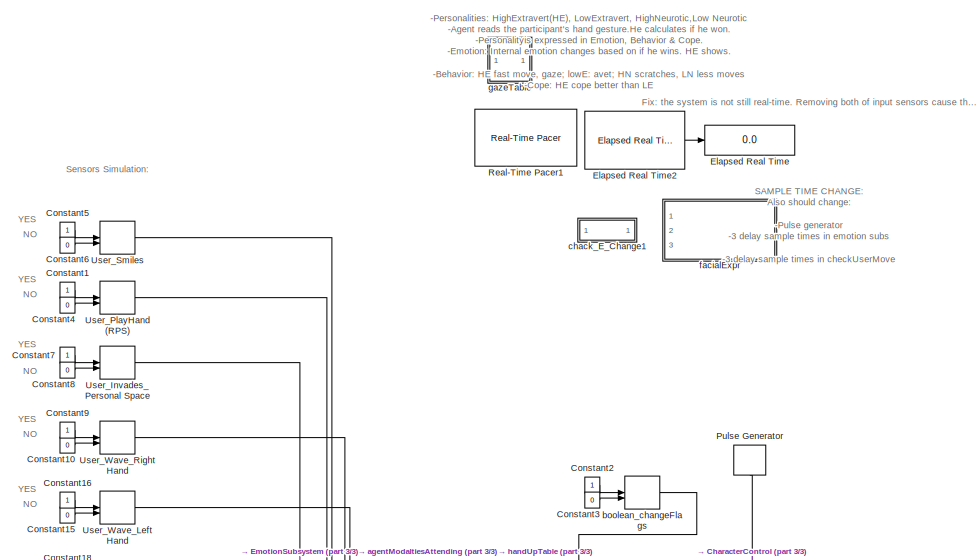
[diagram: root canvas - part 1/3, top center region]
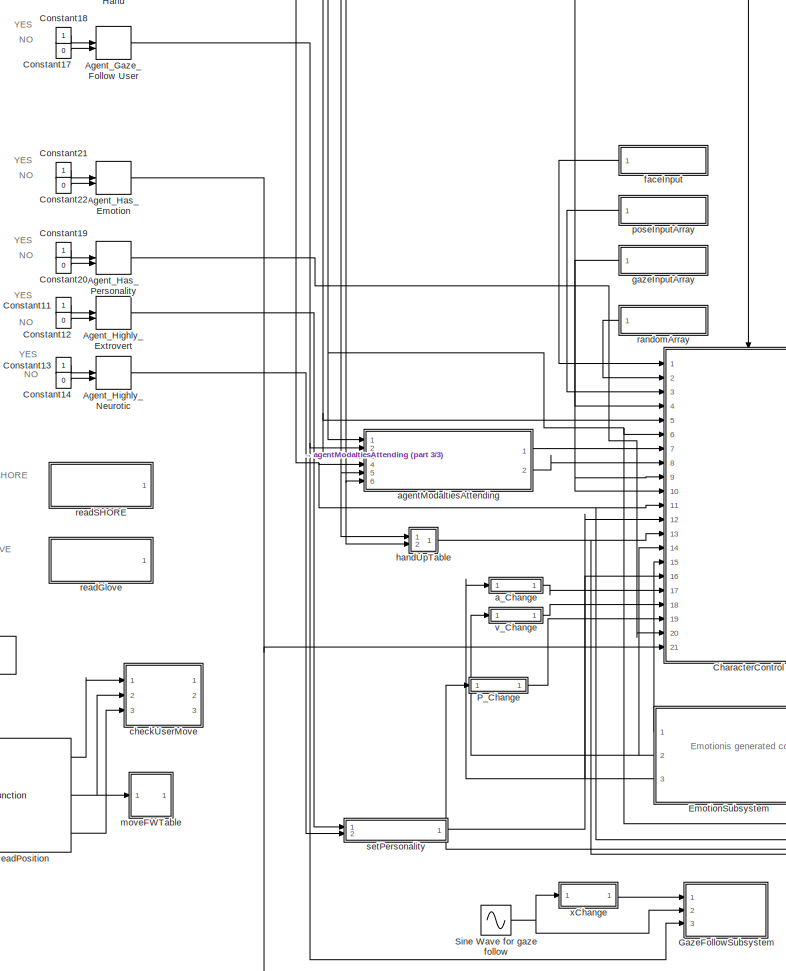
[diagram: root canvas - part 2/3, bottom center region]
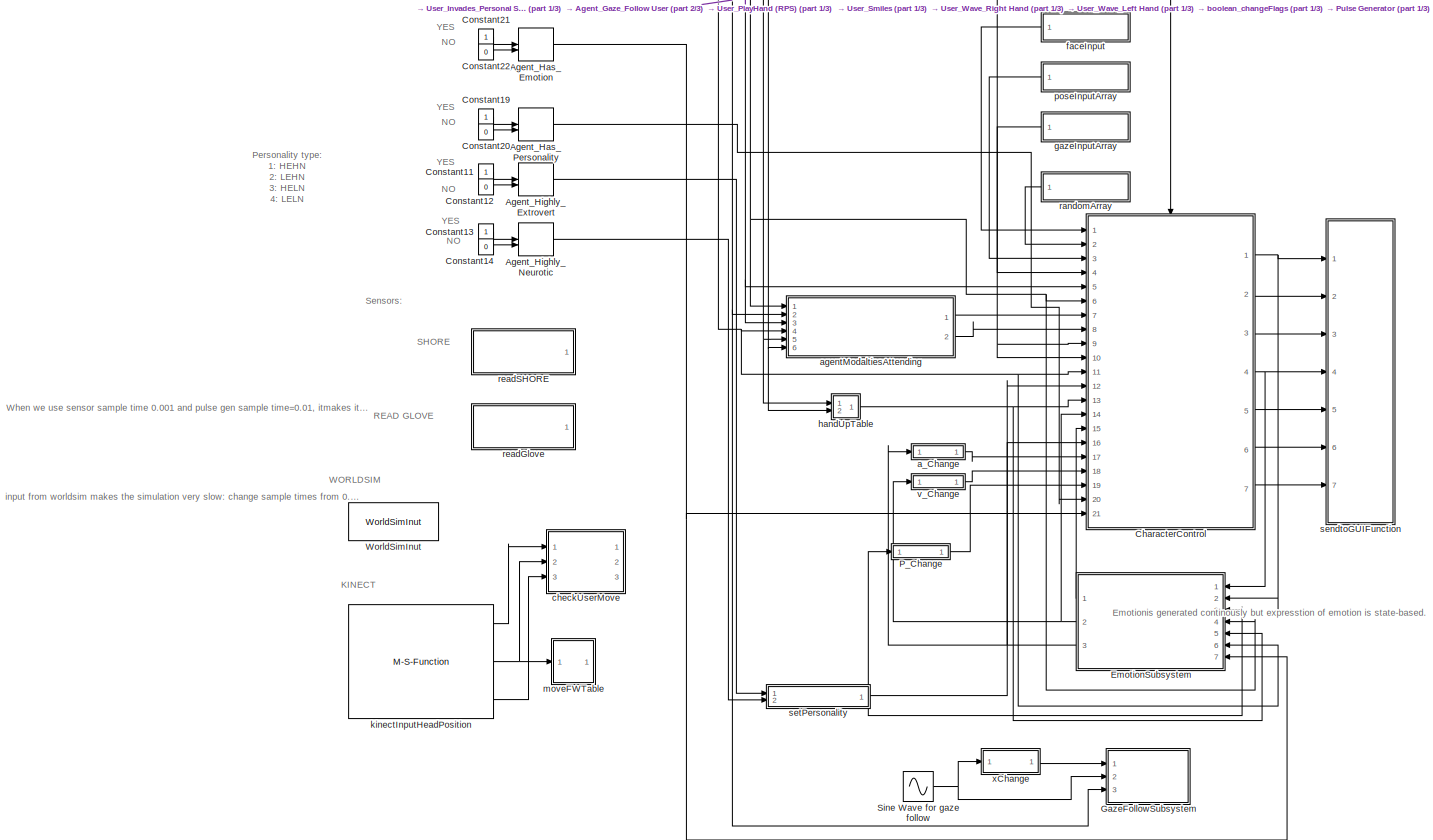
[diagram: root canvas - part 3/3, full width, bottom band]
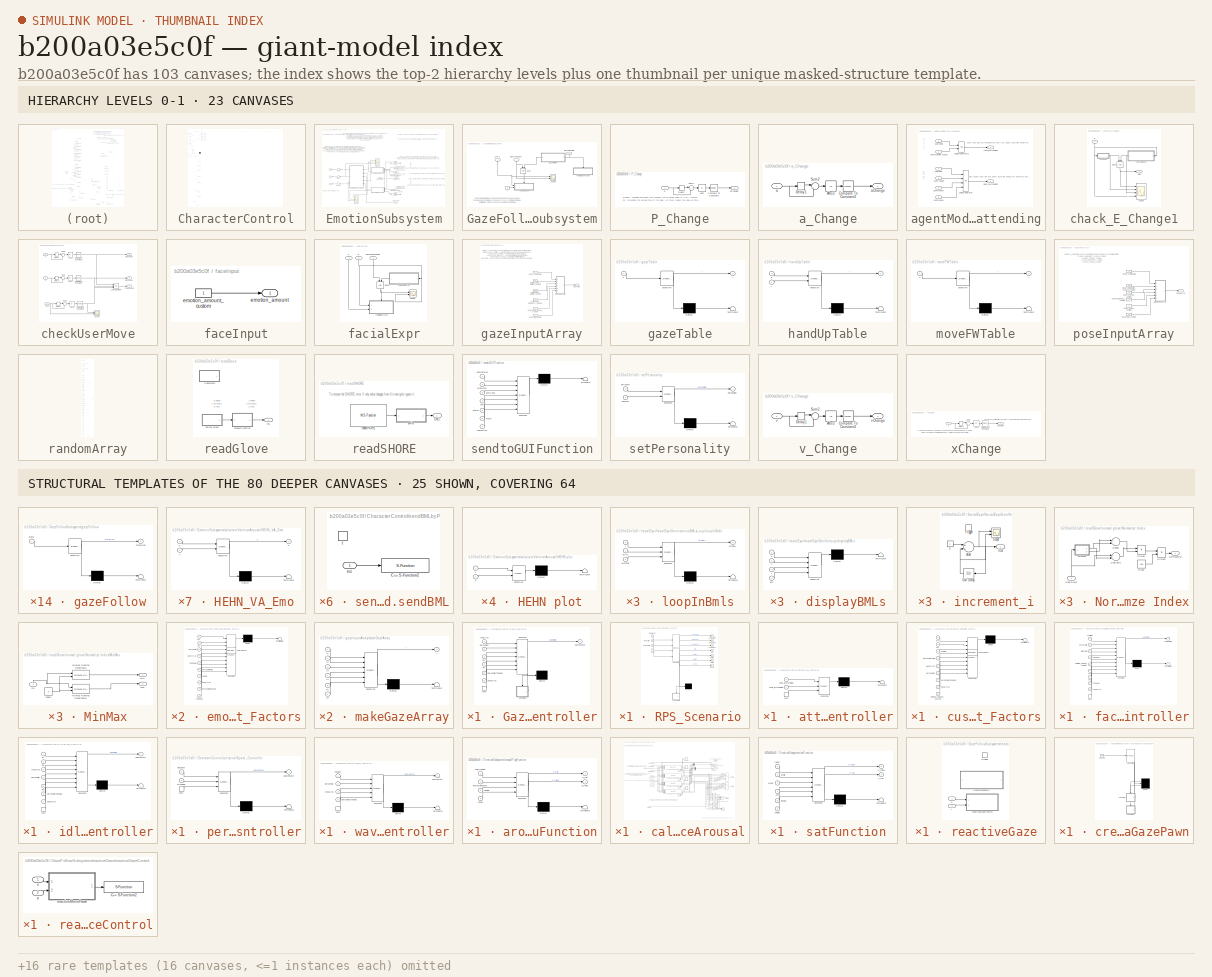
[diagram: thumbnail index - top-2 hierarchy levels (23 canvases) + 25 structural-template representatives of the remaining 80 canvases]
MODEL slx_b200a03e5c0f
KIND model
CONFIG PostLoadFcn = h_RPStest = RPStest;\n\n
WORKSPACE source: MAT-file member
WORKSPACE gtest = 0
BLOCK [ManualSwitch] Agent_Gaze_Follow User
  CurrentSetting = 0
BLOCK [ManualSwitch] Agent_Has_Emotion
BLOCK [ManualSwitch] Agent_Has_Personality
BLOCK [ManualSwitch] Agent_Highly_Extrovert
  CurrentSetting = 0
BLOCK [ManualSwitch] Agent_Highly_Neurotic
  CurrentSetting = 0
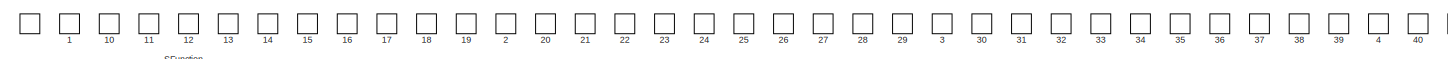
[diagram: CharacterControl - part 1/4, top left region]
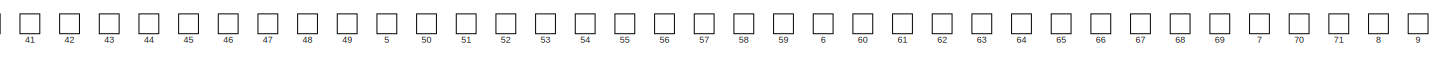
[diagram: CharacterControl - part 2/4, top right region]
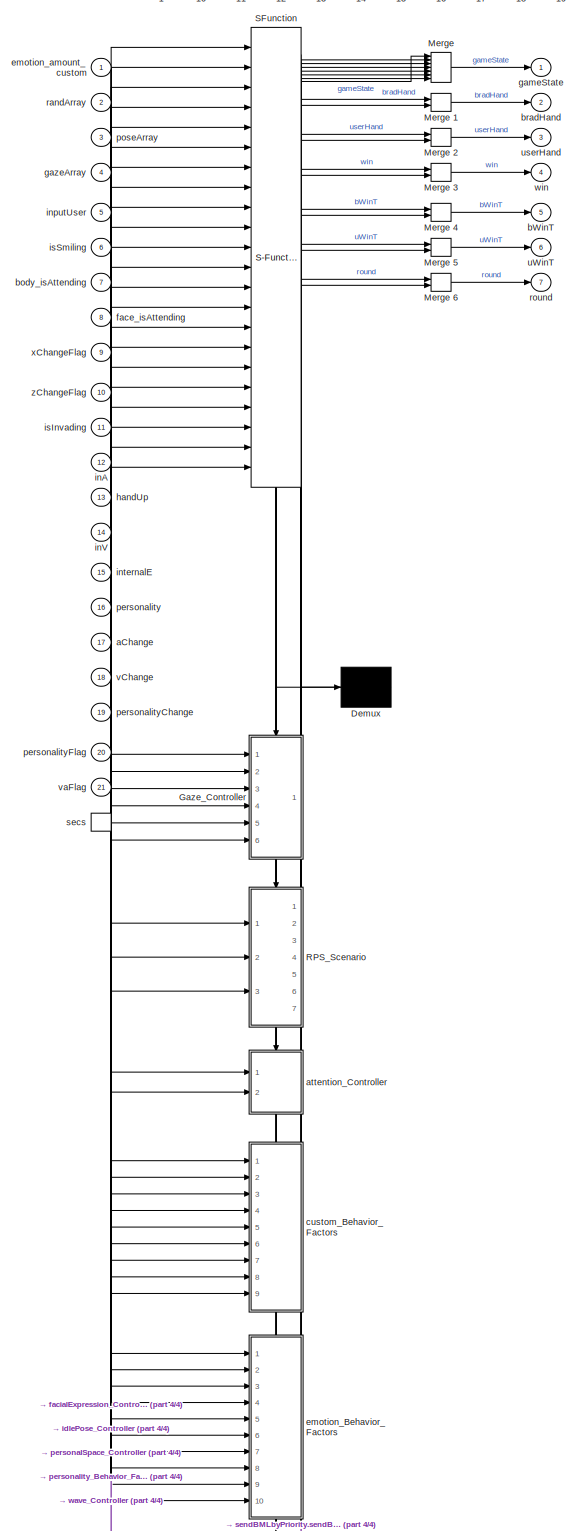
[diagram: CharacterControl - part 3/4, middle left region]
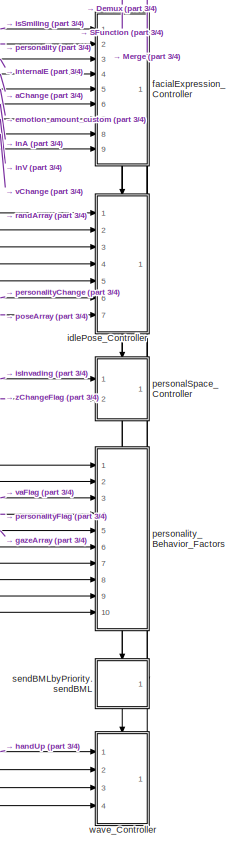
[diagram: CharacterControl - part 4/4, bottom left region]
BLOCK [SubSystem] CharacterControl
  ErrorFcn = Stateflow.Translate.translate
  PermitHierarchicalResolution = ExplicitOnly
  Ports = [21, 7, 0, 1]
  RequestExecContextInheritance = off
  SFBlockType = Chart
  TreatAsAtomicUnit = on
BLOCK [DataStoreMemory] CharacterControl/ 
  DataStoreName = BML
  InitialValue = Stateflow.SLINSF.SimulinkMan.getDSMInitVal([[2000,1]], 0, 'BML')
  OutDataTypeStr = double
  SignalType = real
  VectorParams1D = off
BLOCK [DataStoreMemory] CharacterControl/ 1
  DataStoreName = BML1
  InitialValue = Stateflow.SLINSF.SimulinkMan.getDSMInitVal([[2000,1]], 0, 'BML1')
  OutDataTypeStr = double
  SignalType = real
  VectorParams1D = off
BLOCK [DataStoreMemory] CharacterControl/ 10
  DataStoreName = GAZE_SOFTEYE
  InitialValue = Stateflow.SLINSF.SimulinkMan.getDSMInitVal([1], 0, 'GAZE_SOFTEYE')
  OutDataTypeStr = double
  SignalType = real
BLOCK [DataStoreMemory] CharacterControl/ 11
  DataStoreName = GAZE_USER_HAND
  InitialValue = Stateflow.SLINSF.SimulinkMan.getDSMInitVal([1], 0, 'GAZE_USER_HAND')
  OutDataTypeStr = double
  SignalType = real
BLOCK [DataStoreMemory] CharacterControl/ 12
  DataStoreName = GAZE_WIN
  InitialValue = Stateflow.SLINSF.SimulinkMan.getDSMInitVal([1], 0, 'GAZE_WIN')
  OutDataTypeStr = double
  SignalType = real
BLOCK [DataStoreMemory] CharacterControl/ 13
  DataStoreName = HAPPY
  InitialValue = Stateflow.SLINSF.SimulinkMan.getDSMInitVal([1], 4, 'HAPPY')
  OutDataTypeStr = double
  SignalType = real
BLOCK [DataStoreMemory] CharacterControl/ 14
  DataStoreName = IDLE
  InitialValue = Stateflow.SLINSF.SimulinkMan.getDSMInitVal([1], 4, 'IDLE')
  OutDataTypeStr = double
  SignalType = real
BLOCK [DataStoreMemory] CharacterControl/ 15
  DataStoreName = P
  InitialValue = Stateflow.SLINSF.SimulinkMan.getDSMInitVal([1], 0, 'P')
  OutDataTypeStr = double
  SignalType = real
BLOCK [DataStoreMemory] CharacterControl/ 16
  DataStoreName = SAD
  InitialValue = Stateflow.SLINSF.SimulinkMan.getDSMInitVal([1], 4, 'SAD')
  OutDataTypeStr = double
  SignalType = real
BLOCK [DataStoreMemory] CharacterControl/ 17
  DataStoreName = STATE_BEFORE
  InitialValue = Stateflow.SLINSF.SimulinkMan.getDSMInitVal([1], 4, 'STATE_BEFORE')
  OutDataTypeStr = double
  SignalType = real
BLOCK [DataStoreMemory] CharacterControl/ 18
  DataStoreName = STATE_GO
  InitialValue = Stateflow.SLINSF.SimulinkMan.getDSMInitVal([1], 1, 'STATE_GO')
  OutDataTypeStr = double
  SignalType = real
BLOCK [DataStoreMemory] CharacterControl/ 19
  DataStoreName = STATE_HAND
  InitialValue = Stateflow.SLINSF.SimulinkMan.getDSMInitVal([1], 2, 'STATE_HAND')
  OutDataTypeStr = double
  SignalType = real
BLOCK [DataStoreMemory] CharacterControl/ 2
  DataStoreName = BML2
  InitialValue = Stateflow.SLINSF.SimulinkMan.getDSMInitVal([[2000,1]], 0, 'BML2')
  OutDataTypeStr = double
  SignalType = real
  VectorParams1D = off
BLOCK [DataStoreMemory] CharacterControl/ 20
  DataStoreName = STATE_OVER
  InitialValue = Stateflow.SLINSF.SimulinkMan.getDSMInitVal([1], 3, 'STATE_OVER')
  OutDataTypeStr = double
  SignalType = real
BLOCK [DataStoreMemory] CharacterControl/ 21
  DataStoreName = STATE_READY
  InitialValue = Stateflow.SLINSF.SimulinkMan.getDSMInitVal([1], 0, 'STATE_READY')
  OutDataTypeStr = double
  SignalType = real
BLOCK [DataStoreMemory] CharacterControl/ 22
  DataStoreName = STATE_RESULT
  InitialValue = Stateflow.SLINSF.SimulinkMan.getDSMInitVal([1], 5, 'STATE_RESULT')
  OutDataTypeStr = double
  SignalType = real
BLOCK [DataStoreMemory] CharacterControl/ 23
  DataStoreName = STATE_WAIT
  InitialValue = Stateflow.SLINSF.SimulinkMan.getDSMInitVal([1], 6, 'STATE_WAIT')
  OutDataTypeStr = double
  SignalType = real
BLOCK [DataStoreMemory] CharacterControl/ 24
  DataStoreName = avert
  InitialValue = Stateflow.SLINSF.SimulinkMan.getDSMInitVal([1], 0, 'avert')
  OutDataTypeStr = double
  SignalType = real
BLOCK [DataStoreMemory] CharacterControl/ 25
  DataStoreName = avertH
  InitialValue = Stateflow.SLINSF.SimulinkMan.getDSMInitVal([1], 0, 'avertH')
  OutDataTypeStr = double
  SignalType = real
BLOCK [DataStoreMemory] CharacterControl/ 26
  DataStoreName = avert_freq_factor
  InitialValue = Stateflow.SLINSF.SimulinkMan.getDSMInitVal([1], 0, 'avert_freq_factor')
  OutDataTypeStr = double
  SignalType = real
BLOCK [DataStoreMemory] CharacterControl/ 27
  DataStoreName = avert_gaze_dirs_chance
  InitialValue = Stateflow.SLINSF.SimulinkMan.getDSMInitVal([1], 0, 'avert_gaze_dirs_chance')
  OutDataTypeStr = double
  SignalType = real
BLOCK [DataStoreMemory] CharacterControl/ 28
  DataStoreName = avert_gaze_duration_factor
  InitialValue = Stateflow.SLINSF.SimulinkMan.getDSMInitVal([1], 0, 'avert_gaze_duration_factor')
  OutDataTypeStr = double
  SignalType = real
BLOCK [DataStoreMemory] CharacterControl/ 29
  DataStoreName = avert_head_frequency_factor
  InitialValue = Stateflow.SLINSF.SimulinkMan.getDSMInitVal([1], 0, 'avert_head_frequency_factor')
  OutDataTypeStr = double
  SignalType = real
BLOCK [DataStoreMemory] CharacterControl/ 3
  DataStoreName = BORED
  InitialValue = Stateflow.SLINSF.SimulinkMan.getDSMInitVal([1], 4, 'BORED')
  OutDataTypeStr = double
  SignalType = real
BLOCK [DataStoreMemory] CharacterControl/ 30
  DataStoreName = avert_head_speed
  InitialValue = Stateflow.SLINSF.SimulinkMan.getDSMInitVal([1], 0, 'avert_head_speed')
  OutDataTypeStr = double
  SignalType = real
BLOCK [DataStoreMemory] CharacterControl/ 31
  DataStoreName = bHand
  InitialValue = Stateflow.SLINSF.SimulinkMan.getDSMInitVal([1], 0, 'bHand')
  OutDataTypeStr = double
  SignalType = real
BLOCK [DataStoreMemory] CharacterControl/ 32
  DataStoreName = bmlsH
  InitialValue = Stateflow.SLINSF.SimulinkMan.getDSMInitVal([[2000,5]], 0, 'bmlsH')
  OutDataTypeStr = double
  SignalType = real
  VectorParams1D = off
BLOCK [DataStoreMemory] CharacterControl/ 33
  DataStoreName = bmlsL
  InitialValue = Stateflow.SLINSF.SimulinkMan.getDSMInitVal([[2000,5]], 0, 'bmlsL')
  OutDataTypeStr = double
  SignalType = real
  VectorParams1D = off
BLOCK [DataStoreMemory] CharacterControl/ 34
  DataStoreName = bmlsM
  InitialValue = Stateflow.SLINSF.SimulinkMan.getDSMInitVal([[2000,5]], 0, 'bmlsM')
  OutDataTypeStr = double
  SignalType = real
  VectorParams1D = off
BLOCK [DataStoreMemory] CharacterControl/ 35
  DataStoreName = bodyBusyFlag
  InitialValue = Stateflow.SLINSF.SimulinkMan.getDSMInitVal([1], 0, 'bodyBusyFlag')
  OutDataTypeStr = double
  SignalType = real
BLOCK [DataStoreMemory] CharacterControl/ 36
  DataStoreName = boredom
  InitialValue = Stateflow.SLINSF.SimulinkMan.getDSMInitVal([1], 0, 'boredom')
  OutDataTypeStr = double
  SignalType = real
BLOCK [DataStoreMemory] CharacterControl/ 37
  DataStoreName = diff
  InitialValue = Stateflow.SLINSF.SimulinkMan.getDSMInitVal([1], 0, 'diff')
  OutDataTypeStr = double
  SignalType = real
BLOCK [DataStoreMemory] CharacterControl/ 38
  DataStoreName = emotion_amount_factor
  InitialValue = Stateflow.SLINSF.SimulinkMan.getDSMInitVal([[1,15]], 0, 'emotion_amount_factor')
  OutDataTypeStr = double
  SignalType = real
  VectorParams1D = off
BLOCK [DataStoreMemory] CharacterControl/ 39
  DataStoreName = faceBusyFlag
  InitialValue = Stateflow.SLINSF.SimulinkMan.getDSMInitVal([1], 0, 'faceBusyFlag')
  OutDataTypeStr = double
  SignalType = real
BLOCK [DataStoreMemory] CharacterControl/ 4
  DataStoreName = BOREDOM_THRESHOLD
  InitialValue = Stateflow.SLINSF.SimulinkMan.getDSMInitVal([1], 0, 'BOREDOM_THRESHOLD')
  OutDataTypeStr = double
  SignalType = real
BLOCK [DataStoreMemory] CharacterControl/ 40
  DataStoreName = fileID
  InitialValue = Stateflow.SLINSF.SimulinkMan.getDSMInitVal([1], 0, 'fileID')
  OutDataTypeStr = double
  SignalType = real
BLOCK [DataStoreMemory] CharacterControl/ 41
  DataStoreName = gazing
  InitialValue = Stateflow.SLINSF.SimulinkMan.getDSMInitVal([1], 0, 'gazing')
  OutDataTypeStr = double
  SignalType = real
BLOCK [DataStoreMemory] CharacterControl/ 42
  DataStoreName = interest
  InitialValue = Stateflow.SLINSF.SimulinkMan.getDSMInitVal([1], 0, 'interest')
  OutDataTypeStr = double
  SignalType = real
BLOCK [DataStoreMemory] CharacterControl/ 43
  DataStoreName = mut_freq_factor
  InitialValue = Stateflow.SLINSF.SimulinkMan.getDSMInitVal([1], 0, 'mut_freq_factor')
  OutDataTypeStr = double
  SignalType = real
BLOCK [DataStoreMemory] CharacterControl/ 44
  DataStoreName = mutual_gaze_duration_factor
  InitialValue = Stateflow.SLINSF.SimulinkMan.getDSMInitVal([1], 0, 'mutual_gaze_duration_factor')
  OutDataTypeStr = double
  SignalType = real
BLOCK [DataStoreMemory] CharacterControl/ 45
  DataStoreName = n
  InitialValue = Stateflow.SLINSF.SimulinkMan.getDSMInitVal([[2000,1]], 0, 'n')
  OutDataTypeStr = double
  SignalType = real
  VectorParams1D = off
BLOCK [DataStoreMemory] CharacterControl/ 46
  DataStoreName = pa
  InitialValue = Stateflow.SLINSF.SimulinkMan.getDSMInitVal([1], 0, 'pa')
  OutDataTypeStr = double
  SignalType = real
BLOCK [DataStoreMemory] CharacterControl/ 47
  DataStoreName = pose_cat_chance
  InitialValue = Stateflow.SLINSF.SimulinkMan.getDSMInitVal([1], 0, 'pose_cat_chance')
  OutDataTypeStr = double
  SignalType = real
BLOCK [DataStoreMemory] CharacterControl/ 48
  DataStoreName = pose_chance_factor
  InitialValue = Stateflow.SLINSF.SimulinkMan.getDSMInitVal([1], 0, 'pose_chance_factor')
  OutDataTypeStr = double
  SignalType = real
BLOCK [DataStoreMemory] CharacterControl/ 49
  DataStoreName = pose_change_flag
  InitialValue = Stateflow.SLINSF.SimulinkMan.getDSMInitVal([1], 0, 'pose_change_flag')
  OutDataTypeStr = double
  SignalType = real
BLOCK [DataStoreMemory] CharacterControl/ 5
  DataStoreName = CONTEMPT
  InitialValue = Stateflow.SLINSF.SimulinkMan.getDSMInitVal([1], 4, 'CONTEMPT')
  OutDataTypeStr = double
  SignalType = real
BLOCK [DataStoreMemory] CharacterControl/ 50
  DataStoreName = pose_frequency_factor
  InitialValue = Stateflow.SLINSF.SimulinkMan.getDSMInitVal([1], 0, 'pose_frequency_factor')
  OutDataTypeStr = double
  SignalType = real
BLOCK [DataStoreMemory] CharacterControl/ 51
  DataStoreName = pose_lean
  InitialValue = Stateflow.SLINSF.SimulinkMan.getDSMInitVal([1], 0, 'pose_lean')
  OutDataTypeStr = double
  SignalType = real
BLOCK [DataStoreMemory] CharacterControl/ 52
  DataStoreName = pose_lean_flag
  InitialValue = Stateflow.SLINSF.SimulinkMan.getDSMInitVal([1], 0, 'pose_lean_flag')
  OutDataTypeStr = double
  SignalType = real
BLOCK [DataStoreMemory] CharacterControl/ 53
  DataStoreName = pose_speed
  InitialValue = Stateflow.SLINSF.SimulinkMan.getDSMInitVal([1], 0, 'pose_speed')
  OutDataTypeStr = double
  SignalType = real
BLOCK [DataStoreMemory] CharacterControl/ 54
  DataStoreName = pose_twitch
  InitialValue = Stateflow.SLINSF.SimulinkMan.getDSMInitVal([1], 0, 'pose_twitch')
  OutDataTypeStr = double
  SignalType = real
BLOCK [DataStoreMemory] CharacterControl/ 55
  DataStoreName = pr
  InitialValue = Stateflow.SLINSF.SimulinkMan.getDSMInitVal([1], 0, 'pr')
  OutDataTypeStr = double
  SignalType = real
BLOCK [DataStoreMemory] CharacterControl/ 56
  DataStoreName = r
  InitialValue = Stateflow.SLINSF.SimulinkMan.getDSMInitVal([1], 0, 'r')
  OutDataTypeStr = double
  SignalType = real
BLOCK [DataStoreMemory] CharacterControl/ 57
  DataStoreName = randAvertGazeChance
  InitialValue = Stateflow.SLINSF.SimulinkMan.getDSMInitVal([1], 0, 'randAvertGazeChance')
  OutDataTypeStr = double
  SignalType = real
BLOCK [DataStoreMemory] CharacterControl/ 58
  DataStoreName = randGazeDur
  InitialValue = Stateflow.SLINSF.SimulinkMan.getDSMInitVal([1], 0, 'randGazeDur')
  OutDataTypeStr = double
  SignalType = real
BLOCK [DataStoreMemory] CharacterControl/ 59
  DataStoreName = randPoseChance
  InitialValue = Stateflow.SLINSF.SimulinkMan.getDSMInitVal([1], 0, 'randPoseChance')
  OutDataTypeStr = double
  SignalType = real
BLOCK [DataStoreMemory] CharacterControl/ 6
  DataStoreName = EXCITE
  InitialValue = Stateflow.SLINSF.SimulinkMan.getDSMInitVal([1], 4, 'EXCITE')
  OutDataTypeStr = double
  SignalType = real
BLOCK [DataStoreMemory] CharacterControl/ 60
  DataStoreName = randSlowPose
  InitialValue = Stateflow.SLINSF.SimulinkMan.getDSMInitVal([1], 0, 'randSlowPose')
  OutDataTypeStr = double
  SignalType = real
BLOCK [DataStoreMemory] CharacterControl/ 61
  DataStoreName = randSmile
  InitialValue = Stateflow.SLINSF.SimulinkMan.getDSMInitVal([1], 0, 'randSmile')
  OutDataTypeStr = double
  SignalType = real
BLOCK [DataStoreMemory] CharacterControl/ 62
  DataStoreName = s
  InitialValue = Stateflow.SLINSF.SimulinkMan.getDSMInitVal([1], 0, 's')
  OutDataTypeStr = double
  SignalType = real
BLOCK [DataStoreMemory] CharacterControl/ 63
  DataStoreName = t
  InitialValue = Stateflow.SLINSF.SimulinkMan.getDSMInitVal([1], 0, 't')
  OutDataTypeStr = double
  SignalType = real
BLOCK [DataStoreMemory] CharacterControl/ 64
  DataStoreName = temp
  InitialValue = Stateflow.SLINSF.SimulinkMan.getDSMInitVal([1], 0, 'temp')
  OutDataTypeStr = double
  SignalType = real
BLOCK [DataStoreMemory] CharacterControl/ 65
  DataStoreName = uHand
  InitialValue = Stateflow.SLINSF.SimulinkMan.getDSMInitVal([1], 0, 'uHand')
  OutDataTypeStr = double
  SignalType = real
BLOCK [DataStoreMemory] CharacterControl/ 66
  DataStoreName = blink_flag
  InitialValue = Stateflow.SLINSF.SimulinkMan.getDSMInitVal([1], 0, 'blink_flag')
  OutDataTypeStr = double
  SignalType = real
BLOCK [DataStoreMemory] CharacterControl/ 67
  DataStoreName = blinkperiod_max
  InitialValue = Stateflow.SLINSF.SimulinkMan.getDSMInitVal([1], 0, 'blinkperiod_max')
  OutDataTypeStr = double
  SignalType = real
BLOCK [DataStoreMemory] CharacterControl/ 68
  DataStoreName = pose_space
  InitialValue = Stateflow.SLINSF.SimulinkMan.getDSMInitVal([1], 0, 'pose_space')
  OutDataTypeStr = double
  SignalType = real
BLOCK [DataStoreMemory] CharacterControl/ 69
  DataStoreName = head_mut_chance
  InitialValue = Stateflow.SLINSF.SimulinkMan.getDSMInitVal([1], 0, 'head_mut_chance')
  OutDataTypeStr = double
  SignalType = real
BLOCK [DataStoreMemory] CharacterControl/ 7
  DataStoreName = FEAR
  InitialValue = Stateflow.SLINSF.SimulinkMan.getDSMInitVal([1], 4, 'FEAR')
  OutDataTypeStr = double
  SignalType = real
BLOCK [DataStoreMemory] CharacterControl/ 70
  DataStoreName = blinkperiod_min
  InitialValue = Stateflow.SLINSF.SimulinkMan.getDSMInitVal([1], 0, 'blinkperiod_min')
  OutDataTypeStr = double
  SignalType = real
BLOCK [DataStoreMemory] CharacterControl/ 71
  DataStoreName = avert_head_duration_factor
  InitialValue = Stateflow.SLINSF.SimulinkMan.getDSMInitVal([1], 0, 'avert_head_duration_factor')
  OutDataTypeStr = double
  SignalType = real
BLOCK [DataStoreMemory] CharacterControl/ 8
  DataStoreName = FRUST
  InitialValue = Stateflow.SLINSF.SimulinkMan.getDSMInitVal([1], 4, 'FRUST')
  OutDataTypeStr = double
  SignalType = real
BLOCK [DataStoreMemory] CharacterControl/ 9
  DataStoreName = GAZE_GUI
  InitialValue = Stateflow.SLINSF.SimulinkMan.getDSMInitVal([1], 0, 'GAZE_GUI')
  OutDataTypeStr = double
  SignalType = real
BLOCK [Demux] CharacterControl/ Demux 
  Outputs = 1
  Ports = [1, 1]
BLOCK [Merge] CharacterControl/ Merge 
  Inputs = 7
  Ports = [7, 1]
BLOCK [Merge] CharacterControl/ Merge 1
  Ports = [2, 1]
BLOCK [Merge] CharacterControl/ Merge 2
  Ports = [2, 1]
BLOCK [Merge] CharacterControl/ Merge 3
  Ports = [2, 1]
BLOCK [Merge] CharacterControl/ Merge 4
  Ports = [2, 1]
BLOCK [Merge] CharacterControl/ Merge 5
  Ports = [2, 1]
BLOCK [Merge] CharacterControl/ Merge 6
  Ports = [2, 1]
BLOCK [S-Function] CharacterControl/ SFunction 
  EnableBusSupport = on
  FunctionName = sf_sfun
  PortCounts = [22 16]
  Ports = [22, 16]
  Tag = Stateflow S-Function Expriment_All 1
BLOCK [SubSystem] CharacterControl/Gaze_Controller
  AncestorBlock = lib_affectiveChar_behavior/idleGaze
  CopyFcn = set_param(gcbh, 'DSMNames', '', 'DSMValues', '', 'CopyFcn', '')
  DSMNames = BML,BOREDOM_THRESHOLD,GAZE_GUI,GAZE_SOFTEYE,GAZE_USER_HAND,GAZE_WIN,P,STATE_BEFORE,STATE_GO,STATE_OVER,STATE_READY,avert,avertH,avert_freq_factor,avert_gaze_dirs_chance,avert_gaze_duration_factor,avert_head_duration_factor,avert_head_frequency_factor,avert_head_speed,blink_flag,blinkperiod_max,blinkperiod_min,bmlsL,bodyBusyFlag,boredom,faceBusyFlag,fileID,gazing,head_mut_chance,interest,mut_freq_f...<+83ch>
  DSMValues = BML,BOREDOM_THRESHOLD,GAZE_GUI,GAZE_SOFTEYE,GAZE_USER_HAND,GAZE_WIN,P,STATE_BEFORE,STATE_GO,STATE_OVER,STATE_READY,avert,avertH,avert_freq_factor,avert_gaze_dirs_chance,avert_gaze_duration_factor,avert_head_duration_factor,avert_head_frequency_factor,avert_head_speed,blink_flag,blinkperiod_max,blinkperiod_min,bmlsL,bodyBusyFlag,boredom,faceBusyFlag,fileID,gazing,head_mut_chance,interest,mut_freq_f...<+83ch>
  ErrorFcn = Stateflow.Translate.translate
  PermitHierarchicalResolution = ExplicitOnly
  Ports = [6, 1, 0, 1]
  RequestExecContextInheritance = off
  SFBlockType = Chart
  TreatAsAtomicUnit = on
BLOCK [Demux] CharacterControl/Gaze_Controller/ Demux 
  Outputs = 1
  Ports = [1, 1]
BLOCK [S-Function] CharacterControl/Gaze_Controller/ SFunction 
  EnableBusSupport = off
  FunctionName = sf_sfun
  PortCounts = [7 3]
  Ports = [7, 3]
  Tag = Stateflow S-Function Expriment_All 57
BLOCK [Outport] CharacterControl/Gaze_Controller/gameState
  IconDisplay = Port number
BLOCK [Inport] CharacterControl/Gaze_Controller/gazeArray
  IconDisplay = Port number
  Port = 6
BLOCK [Inport] CharacterControl/Gaze_Controller/inA
  IconDisplay = Port number
  Port = 4
BLOCK [Inport] CharacterControl/Gaze_Controller/inV
  IconDisplay = Port number
  Port = 3
BLOCK [Inport] CharacterControl/Gaze_Controller/personality
  IconDisplay = Port number
  Port = 2
BLOCK [Inport] CharacterControl/Gaze_Controller/personalityChange
  IconDisplay = Port number
  Port = 5
BLOCK [Inport] CharacterControl/Gaze_Controller/randArray
  IconDisplay = Port number
BLOCK [TriggerPort] CharacterControl/Gaze_Controller/secs
  Ports = [0, 1]
  ShowOutputPort = on
  StatesWhenEnabling = held
BLOCK [SubSystem] CharacterControl/Gaze_Controller/sendSBM
  Ports = [1, 0, 0, 1]
  PreDeleteFcn = Stateflow.SLINSF.SimulinkMan.removePreDeleteFcn
  RequestExecContextInheritance = off
  UndoDeleteFcn = Stateflow.SLINSF.SimulinkMan.restorePreDeleteFcn
BLOCK [S-Function] CharacterControl/Gaze_Controller/sendSBM/C++ S-Function2
  EnableBusSupport = off
  FunctionName = yarpSendText_sfun
  Parameters = '/sim/out/smb10', '/SB/in/sbm'
  Ports = [1]
BLOCK [Inport] CharacterControl/Gaze_Controller/sendSBM/In
  IconDisplay = Port number
  OutDataTypeStr = double
  PortDimensions = [2000 1]
  SignalType = real
  VarSizeSig = No
BLOCK [TriggerPort] CharacterControl/Gaze_Controller/sendSBM/f
  CopyFcn = Stateflow.SLINSF.SimulinkMan.removeBlockPreDeleteFcn
  Ports = []
  PreDeleteFcn = Stateflow.SLINSF.SimulinkMan.unsafePredeleteFcn
  StatesWhenEnabling = held
  TriggerType = function-call
BLOCK [SubSystem] CharacterControl/RPS_Scenario
  CopyFcn = set_param(gcbh, 'DSMNames', '', 'DSMValues', '', 'CopyFcn', '')
  DSMNames = BML,BML2,BORED,BOREDOM_THRESHOLD,CONTEMPT,EXCITE,FEAR,FRUST,GAZE_GUI,GAZE_SOFTEYE,GAZE_USER_HAND,GAZE_WIN,HAPPY,IDLE,P,SAD,STATE_BEFORE,STATE_GO,STATE_HAND,STATE_OVER,STATE_READY,STATE_RESULT,STATE_WAIT,avert,avertH,bHand,bmlsH,bmlsL,boredom,diff,fileID,gazing,n,pa,pr,r,randAvertGazeChance,randPoseChance,randSmile,s,t,temp,uHand
  DSMValues = BML,BML2,BORED,BOREDOM_THRESHOLD,CONTEMPT,EXCITE,FEAR,FRUST,GAZE_GUI,GAZE_SOFTEYE,GAZE_USER_HAND,GAZE_WIN,HAPPY,IDLE,P,SAD,STATE_BEFORE,STATE_GO,STATE_HAND,STATE_OVER,STATE_READY,STATE_RESULT,STATE_WAIT,avert,avertH,bHand,bmlsH,bmlsL,boredom,diff,fileID,gazing,n,pa,pr,r,randAvertGazeChance,randPoseChance,randSmile,s,t,temp,uHand
  ErrorFcn = Stateflow.Translate.translate
  PermitHierarchicalResolution = ExplicitOnly
  Ports = [3, 7, 0, 1]
  RequestExecContextInheritance = off
  SFBlockType = Chart
  TreatAsAtomicUnit = on
BLOCK [Demux] CharacterControl/RPS_Scenario/ Demux 
  Outputs = 1
  Ports = [1, 1]
BLOCK [S-Function] CharacterControl/RPS_Scenario/ SFunction 
  EnableBusSupport = off
  FunctionName = sf_sfun
  PortCounts = [4 9]
  Ports = [4, 9]
  Tag = Stateflow S-Function Expriment_All 5
BLOCK [Outport] CharacterControl/RPS_Scenario/bWinT
  IconDisplay = Port number
  Port = 5
BLOCK [Outport] CharacterControl/RPS_Scenario/bradHand
  IconDisplay = Port number
  Port = 2
BLOCK [Outport] CharacterControl/RPS_Scenario/gameState
  IconDisplay = Port number
BLOCK [Inport] CharacterControl/RPS_Scenario/inputUser
  IconDisplay = Port number
BLOCK [Inport] CharacterControl/RPS_Scenario/personality
  IconDisplay = Port number
  Port = 3
BLOCK [Inport] CharacterControl/RPS_Scenario/randArray
  IconDisplay = Port number
  Port = 2
BLOCK [Outport] CharacterControl/RPS_Scenario/round
  IconDisplay = Port number
  Port = 7
BLOCK [TriggerPort] CharacterControl/RPS_Scenario/secs
  Ports = [0, 1]
  ShowOutputPort = on
  StatesWhenEnabling = held
BLOCK [SubSystem] CharacterControl/RPS_Scenario/sendSBM
  Ports = [1, 0, 0, 1]
  PreDeleteFcn = Stateflow.SLINSF.SimulinkMan.removePreDeleteFcn
  RequestExecContextInheritance = off
  UndoDeleteFcn = Stateflow.SLINSF.SimulinkMan.restorePreDeleteFcn
BLOCK [S-Function] CharacterControl/RPS_Scenario/sendSBM/C++ S-function2
  EnableBusSupport = off
  FunctionName = yarpSendText_sfun
  Parameters = '/sim/out/smb0', '/SB/in/sbm'
  Ports = [1]
BLOCK [Inport] CharacterControl/RPS_Scenario/sendSBM/arg
  IconDisplay = Port number
  OutDataTypeStr = double
  PortDimensions = [256 1]
  SignalType = real
  VarSizeSig = No
BLOCK [TriggerPort] CharacterControl/RPS_Scenario/sendSBM/f
  CopyFcn = Stateflow.SLINSF.SimulinkMan.removeBlockPreDeleteFcn
  Ports = []
  PreDeleteFcn = Stateflow.SLINSF.SimulinkMan.unsafePredeleteFcn
  StatesWhenEnabling = held
  TriggerType = function-call
BLOCK [Outport] CharacterControl/RPS_Scenario/uWinT
  IconDisplay = Port number
  Port = 6
BLOCK [Outport] CharacterControl/RPS_Scenario/userHand
  IconDisplay = Port number
  Port = 3
BLOCK [Outport] CharacterControl/RPS_Scenario/win
  IconDisplay = Port number
  Port = 4
BLOCK [Inport] CharacterControl/aChange
  IconDisplay = Port number
  Port = 17
BLOCK [SubSystem] CharacterControl/attention_Controller
  CopyFcn = set_param(gcbh, 'DSMNames', '', 'DSMValues', '', 'CopyFcn', '')
  DSMNames = bodyBusyFlag,faceBusyFlag
  DSMValues = bodyBusyFlag,faceBusyFlag
  ErrorFcn = Stateflow.Translate.translate
  PermitHierarchicalResolution = ExplicitOnly
  Ports = [2, 0, 0, 1]
  RequestExecContextInheritance = off
  SFBlockType = Chart
  TreatAsAtomicUnit = on
BLOCK [Demux] CharacterControl/attention_Controller/ Demux 
  Outputs = 1
  Ports = [1, 1]
BLOCK [S-Function] CharacterControl/attention_Controller/ SFunction 
  EnableBusSupport = off
  FunctionName = sf_sfun
  PortCounts = [3 1]
  Ports = [3, 1]
  Tag = Stateflow S-Function Expriment_All 10
BLOCK [Terminator] CharacterControl/attention_Controller/ Terminator 
BLOCK [Inport] CharacterControl/attention_Controller/body_isAttending
  IconDisplay = Port number
BLOCK [Inport] CharacterControl/attention_Controller/face_isAttending
  IconDisplay = Port number
  Port = 2
BLOCK [TriggerPort] CharacterControl/attention_Controller/secs
  Ports = [0, 1]
  ShowOutputPort = on
  StatesWhenEnabling = held
BLOCK [Outport] CharacterControl/bWinT
  IconDisplay = Port number
  Port = 5
BLOCK [Inport] CharacterControl/body_isAttending
  IconDisplay = Port number
  Port = 7
BLOCK [Outport] CharacterControl/bradHand
  IconDisplay = Port number
  Port = 2
BLOCK [SubSystem] CharacterControl/custom_Behavior_Factors
  CopyFcn = set_param(gcbh, 'DSMNames', '', 'DSMValues', '', 'CopyFcn', '')
  DSMNames = avert_freq_factor,avert_gaze_dirs_chance,avert_gaze_duration_factor,avert_head_duration_factor,avert_head_frequency_factor,avert_head_speed,blink_flag,blinkperiod_max,blinkperiod_min,emotion_amount_factor,head_mut_chance,mut_freq_factor,mutual_gaze_duration_factor,pose_cat_chance,pose_chanc_factor,pose_frequency_factor,pose_lean,pose_lean_flag,pose_space,pose_speed,pose_twitch
  DSMValues = avert_freq_factor,avert_gaze_dirs_chance,avert_gaze_duration_factor,avert_head_duration_factor,avert_head_frequency_factor,avert_head_speed,blink_flag,blinkperiod_max,blinkperiod_min,emotion_amount_factor,head_mut_chance,mut_freq_factor,mutual_gaze_duration_factor,pose_cat_chance,pose_chance_factor,pose_frequency_factor,pose_lean,pose_lean_flag,pose_space,pose_speed,pose_twitch
  ErrorFcn = Stateflow.Translate.translate
  PermitHierarchicalResolution = ExplicitOnly
  Ports = [9]
  RequestExecContextInheritance = off
  SFBlockType = Chart
  TreatAsAtomicUnit = on
BLOCK [Demux] CharacterControl/custom_Behavior_Factors/ Demux 
  Outputs = 1
  Ports = [1, 1]
BLOCK [S-Function] CharacterControl/custom_Behavior_Factors/ SFunction 
  EnableBusSupport = off
  FunctionName = sf_sfun
  PortCounts = [9 1]
  Ports = [9, 1]
  Tag = Stateflow S-Function Expriment_All 44
BLOCK [Terminator] CharacterControl/custom_Behavior_Factors/ Terminator 
BLOCK [Inport] CharacterControl/custom_Behavior_Factors/emotion_amount_custom
  IconDisplay = Port number
  Port = 9
BLOCK [Inport] CharacterControl/custom_Behavior_Factors/gazeArray
  IconDisplay = Port number
  Port = 5
BLOCK [Inport] CharacterControl/custom_Behavior_Factors/inA
  IconDisplay = Port number
BLOCK [Inport] CharacterControl/custom_Behavior_Factors/inV
  IconDisplay = Port number
  Port = 2
BLOCK [Inport] CharacterControl/custom_Behavior_Factors/personality
  IconDisplay = Port number
  Port = 6
BLOCK [Inport] CharacterControl/custom_Behavior_Factors/personalityChange
  IconDisplay = Port number
  Port = 7
BLOCK [Inport] CharacterControl/custom_Behavior_Factors/personalityFlag
  IconDisplay = Port number
  Port = 4
BLOCK [Inport] CharacterControl/custom_Behavior_Factors/poseArray
  IconDisplay = Port number
  Port = 8
BLOCK [Reference] CharacterControl/custom_Behavior_Factors/sharedFunc  REF=lib_affectiveChar_behavior/sharedFunc
  FunctionWithSeparateData = off
  GeneratePreprocessorConditionals = off
  Ports = []
  ShowPortLabels = FromPortIcon
  SourceBlock = lib_affectiveChar_behavior/sharedFunc
  SystemSampleTime = -1
BLOCK [Inport] CharacterControl/custom_Behavior_Factors/vaFlag
  IconDisplay = Port number
  Port = 3
BLOCK [SubSystem] CharacterControl/emotion_Behavior_Factors
  CopyFcn = set_param(gcbh, 'DSMNames', '', 'DSMValues', '', 'CopyFcn', '')
  DSMNames = avert_freq_factor,avert_gaze_dirs_chance,avert_gaze_duration_factor,avert_head_duration_factor,avert_head_frequency_factor,avert_head_speed,blink_flag,blinkperiod_max,blinkperiod_min,head_mut_chance,mut_freq_factor,mutual_gaze_duration_factor,pose_cat_chance,pose_chanc_factor,pose_frequency_factor,pose_lean,pose_lean_flag,pose_space,pose_speed,pose_twitch
  DSMValues = avert_freq_factor,avert_gaze_dirs_chance,avert_gaze_duration_factor,avert_head_duration_factor,avert_head_frequency_factor,avert_head_speed,blink_flag,blinkperiod_max,blinkperiod_min,head_mut_chance,mut_freq_factor,mutual_gaze_duration_factor,pose_cat_chance,pose_chance_factor,pose_frequency_factor,pose_lean,pose_lean_flag,pose_space,pose_speed,pose_twitch
  ErrorFcn = Stateflow.Translate.translate
  PermitHierarchicalResolution = ExplicitOnly
  Ports = [10]
  RequestExecContextInheritance = off
  SFBlockType = Chart
  TreatAsAtomicUnit = on
BLOCK [Demux] CharacterControl/emotion_Behavior_Factors/ Demux 
  Outputs = 1
  Ports = [1, 1]
BLOCK [S-Function] CharacterControl/emotion_Behavior_Factors/ SFunction 
  EnableBusSupport = off
  FunctionName = sf_sfun
  PortCounts = [10 1]
  Ports = [10, 1]
  Tag = Stateflow S-Function Expriment_All 11
BLOCK [Terminator] CharacterControl/emotion_Behavior_Factors/ Terminator 
BLOCK [Inport] CharacterControl/emotion_Behavior_Factors/aChange
  IconDisplay = Port number
  Port = 5
BLOCK [Inport] CharacterControl/emotion_Behavior_Factors/gazeArray
  IconDisplay = Port number
  Port = 4
BLOCK [Inport] CharacterControl/emotion_Behavior_Factors/inA
  IconDisplay = Port number
BLOCK [Inport] CharacterControl/emotion_Behavior_Factors/inV
  IconDisplay = Port number
  Port = 2
BLOCK [Inport] CharacterControl/emotion_Behavior_Factors/personality
  IconDisplay = Port number
  Port = 3
BLOCK [Inport] CharacterControl/emotion_Behavior_Factors/personalityChange
  IconDisplay = Port number
  Port = 9
BLOCK [Inport] CharacterControl/emotion_Behavior_Factors/personalityFlag
  IconDisplay = Port number
  Port = 6
BLOCK [Inport] CharacterControl/emotion_Behavior_Factors/poseArray
  IconDisplay = Port number
  Port = 8
BLOCK [Reference] CharacterControl/emotion_Behavior_Factors/sharedFunc  REF=lib_affectiveChar_behavior/sharedFunc
  FunctionWithSeparateData = off
  GeneratePreprocessorConditionals = off
  Ports = []
  ShowPortLabels = FromPortIcon
  SourceBlock = lib_affectiveChar_behavior/sharedFunc
  SystemSampleTime = -1
BLOCK [Inport] CharacterControl/emotion_Behavior_Factors/vChange
  IconDisplay = Port number
  Port = 10
BLOCK [Inport] CharacterControl/emotion_Behavior_Factors/vaFlag
  IconDisplay = Port number
  Port = 7
BLOCK [Inport] CharacterControl/emotion_amount_custom
  IconDisplay = Port number
BLOCK [Inport] CharacterControl/face_isAttending
  IconDisplay = Port number
  Port = 8
BLOCK [SubSystem] CharacterControl/facialExpression_Controller
  AncestorBlock = lib_affectiveChar_behavior/notImitateSmile
  CopyFcn = set_param(gcbh, 'DSMNames', '', 'DSMValues', '', 'CopyFcn', '')
  DSMNames = BML,GAZE_WIN,P,STATE_BEFORE,STATE_GO,STATE_READY,avert,bmlsL,bmlsM,emotion_amount_factor,gazing
  DSMValues = BML,GAZE_WIN,P,STATE_BEFORE,STATE_GO,STATE_READY,avert,bmlsL,bmlsM,emotion_amount_factor,gazing
  ErrorFcn = Stateflow.Translate.translate
  PermitHierarchicalResolution = ExplicitOnly
  Ports = [9, 1, 0, 1]
  RequestExecContextInheritance = off
  SFBlockType = Chart
  TreatAsAtomicUnit = on
BLOCK [Demux] CharacterControl/facialExpression_Controller/ Demux 
  Outputs = 1
  Ports = [1, 1]
BLOCK [S-Function] CharacterControl/facialExpression_Controller/ SFunction 
  EnableBusSupport = off
  FunctionName = sf_sfun
  PortCounts = [10 2]
  Ports = [10, 2]
  Tag = Stateflow S-Function Expriment_All 9
BLOCK [Terminator] CharacterControl/facialExpression_Controller/ Terminator 
BLOCK [Inport] CharacterControl/facialExpression_Controller/aChange
  IconDisplay = Port number
  Port = 4
BLOCK [Inport] CharacterControl/facialExpression_Controller/emotion_amount_custom
  IconDisplay = Port number
  Port = 5
BLOCK [Outport] CharacterControl/facialExpression_Controller/gameState
  IconDisplay = Port number
BLOCK [Inport] CharacterControl/facialExpression_Controller/inA
  IconDisplay = Port number
  Port = 6
BLOCK [Inport] CharacterControl/facialExpression_Controller/inV
  IconDisplay = Port number
  Port = 7
BLOCK [Inport] CharacterControl/facialExpression_Controller/internalE
  IconDisplay = Port number
  Port = 3
BLOCK [Inport] CharacterControl/facialExpression_Controller/isSmiling
  IconDisplay = Port number
BLOCK [Inport] CharacterControl/facialExpression_Controller/personality
  IconDisplay = Port number
  Port = 2
BLOCK [Inport] CharacterControl/facialExpression_Controller/randArray
  IconDisplay = Port number
  Port = 9
BLOCK [TriggerPort] CharacterControl/facialExpression_Controller/secs
  Ports = [0, 1]
  ShowOutputPort = on
  StatesWhenEnabling = held
BLOCK [Inport] CharacterControl/facialExpression_Controller/vChange
  IconDisplay = Port number
  Port = 8
BLOCK [Outport] CharacterControl/gameState
  IconDisplay = Port number
BLOCK [Inport] CharacterControl/gazeArray
  IconDisplay = Port number
  Port = 4
BLOCK [Inport] CharacterControl/handUp
  IconDisplay = Port number
  Port = 13
BLOCK [SubSystem] CharacterControl/idlePose_Controller
  AncestorBlock = lib_affectiveChar_behavior/idlePoseBrad
  DSMNames = BML,BORED,BOREDOM_THRESHOLD,CONTEMPT,EXCITE,FEAR,FRUST,HAPPY,IDLE,P,SAD,STATE_BEFORE,STATE_GO,STATE_OVER,STATE_READY,bmlsL,bmlsM,bodyBusyFlag,boredom,faceBusyFlag,fileID,interest,pose_cat_chance,pose_chance_factor,pose_change_flag,pose_frequency_factor,pose_lean,pose_lean_flag,pose_space,pose_speed,pose_twitch,randPoseChance,randSlowPose
  DSMValues = BML,BORED,BOREDOM_THRESHOLD,CONTEMPT,EXCITE,FEAR,FRUST,HAPPY,IDLE,P,SAD,STATE_BEFORE,STATE_GO,STATE_OVER,STATE_READY,bmlsL,bmlsM,bodyBusyFlag,boredom,faceBusyFlag,fileID,interest,pose_cat_chance,pose_chance_factor,pose_change_flag,pose_frequency_factor,pose_lean,pose_lean_flag,pose_space,pose_speed,pose_twitch,randPoseChance,randSlowPose
  ErrorFcn = Stateflow.Translate.translate
  PermitHierarchicalResolution = ExplicitOnly
  Ports = [7, 1, 0, 1]
  RequestExecContextInheritance = off
  SFBlockType = Chart
  TreatAsAtomicUnit = on
BLOCK [Demux] CharacterControl/idlePose_Controller/ Demux 
  Outputs = 1
  Ports = [1, 1]
BLOCK [S-Function] CharacterControl/idlePose_Controller/ SFunction 
  EnableBusSupport = off
  FunctionName = sf_sfun
  PortCounts = [8 2]
  Ports = [8, 2]
  Tag = Stateflow S-Function Expriment_All 4
BLOCK [Terminator] CharacterControl/idlePose_Controller/ Terminator 
BLOCK [Outport] CharacterControl/idlePose_Controller/gameState
  IconDisplay = Port number
BLOCK [Inport] CharacterControl/idlePose_Controller/inA
  IconDisplay = Port number
BLOCK [Inport] CharacterControl/idlePose_Controller/inE
  IconDisplay = Port number
  Port = 2
BLOCK [Inport] CharacterControl/idlePose_Controller/inV
  IconDisplay = Port number
  Port = 5
BLOCK [Inport] CharacterControl/idlePose_Controller/personality
  IconDisplay = Port number
  Port = 4
BLOCK [Inport] CharacterControl/idlePose_Controller/personalityChange
  IconDisplay = Port number
  Port = 6
BLOCK [Inport] CharacterControl/idlePose_Controller/poseArray
  IconDisplay = Port number
  Port = 7
BLOCK [Inport] CharacterControl/idlePose_Controller/randArray
  IconDisplay = Port number
  Port = 3
BLOCK [TriggerPort] CharacterControl/idlePose_Controller/secs
  Ports = [0, 1]
  ShowOutputPort = on
  StatesWhenEnabling = held
BLOCK [Inport] CharacterControl/inA
  IconDisplay = Port number
  Port = 12
BLOCK [Inport] CharacterControl/inV
  IconDisplay = Port number
  Port = 14
BLOCK [Inport] CharacterControl/inputUser
  IconDisplay = Port number
  Port = 5
BLOCK [Inport] CharacterControl/internalE
  IconDisplay = Port number
  Port = 15
BLOCK [Inport] CharacterControl/isInvading
  IconDisplay = Port number
  Port = 11
BLOCK [Inport] CharacterControl/isSmiling
  IconDisplay = Port number
  Port = 6
BLOCK [SubSystem] CharacterControl/personalSpace_Controller
  CopyFcn = set_param(gcbh, 'DSMNames', '', 'DSMValues', '', 'CopyFcn', '')
  DSMNames = BML1,P,STATE_BEFORE,STATE_OVER,STATE_READY,avert,bmlsL,bmlsM,fileID,pr
  DSMValues = BML1,P,STATE_BEFORE,STATE_OVER,STATE_READY,avert,bmlsL,bmlsM,fileID,pr
  ErrorFcn = Stateflow.Translate.translate
  PermitHierarchicalResolution = ExplicitOnly
  Ports = [2, 1, 0, 1]
  RequestExecContextInheritance = off
  SFBlockType = Chart
  TreatAsAtomicUnit = on
BLOCK [Demux] CharacterControl/personalSpace_Controller/ Demux 
  Outputs = 1
  Ports = [1, 1]
BLOCK [S-Function] CharacterControl/personalSpace_Controller/ SFunction 
  EnableBusSupport = off
  FunctionName = sf_sfun
  PortCounts = [3 2]
  Ports = [3, 2]
  Tag = Stateflow S-Function Expriment_All 8
BLOCK [Terminator] CharacterControl/personalSpace_Controller/ Terminator 
BLOCK [Inport] CharacterControl/personalSpace_Controller/distance
  IconDisplay = Port number
BLOCK [Outport] CharacterControl/personalSpace_Controller/gameState
  IconDisplay = Port number
BLOCK [TriggerPort] CharacterControl/personalSpace_Controller/secs
  Ports = [0, 1]
  ShowOutputPort = on
  StatesWhenEnabling = held
BLOCK [Inport] CharacterControl/personalSpace_Controller/zChange
  IconDisplay = Port number
  Port = 2
BLOCK [Inport] CharacterControl/personality
  IconDisplay = Port number
  Port = 16
BLOCK [Inport] CharacterControl/personalityChange
  IconDisplay = Port number
  Port = 19
BLOCK [Inport] CharacterControl/personalityFlag
  IconDisplay = Port number
  Port = 20
BLOCK [SubSystem] CharacterControl/personality_Behavior_Factors
  CopyFcn = set_param(gcbh, 'DSMNames', '', 'DSMValues', '', 'CopyFcn', '')
  DSMNames = avert_freq_factor,avert_gaze_dirs_chance,avert_gaze_duration_factor,avert_head_duration_factor,avert_head_frequency_factor,avert_head_speed,blink_flag,blinkperiod_max,blinkperiod_min,emotion_amount_factor,head_mut_chance,mut_freq_factor,mutual_gaze_duration_factor,pose_cat_chance,pose_chanc_factor,pose_change_flag,pose_frequency_factor,pose_lean,pose_lean_flag,pose_space,pose_speed,pose_twitch
  DSMValues = avert_freq_factor,avert_gaze_dirs_chance,avert_gaze_duration_factor,avert_head_duration_factor,avert_head_frequency_factor,avert_head_speed,blink_flag,blinkperiod_max,blinkperiod_min,emotion_amount_factor,head_mut_chance,mut_freq_factor,mutual_gaze_duration_factor,pose_cat_chance,pose_chance_factor,pose_change_flag,pose_frequency_factor,pose_lean,pose_lean_flag,pose_space,pose_speed,pose_twitch
  ErrorFcn = Stateflow.Translate.translate
  PermitHierarchicalResolution = ExplicitOnly
  Ports = [10]
  RequestExecContextInheritance = off
  SFBlockType = Chart
  TreatAsAtomicUnit = on
BLOCK [Demux] CharacterControl/personality_Behavior_Factors/ Demux 
  Outputs = 1
  Ports = [1, 1]
BLOCK [S-Function] CharacterControl/personality_Behavior_Factors/ SFunction 
  EnableBusSupport = off
  FunctionName = sf_sfun
  PortCounts = [10 1]
  Ports = [10, 1]
  Tag = Stateflow S-Function Expriment_All 42
BLOCK [Terminator] CharacterControl/personality_Behavior_Factors/ Terminator 
BLOCK [Inport] CharacterControl/personality_Behavior_Factors/emotion_amount_custom
  IconDisplay = Port number
  Port = 10
BLOCK [Inport] CharacterControl/personality_Behavior_Factors/gazeArray
  IconDisplay = Port number
  Port = 5
BLOCK [Inport] CharacterControl/personality_Behavior_Factors/inA
  IconDisplay = Port number
BLOCK [Inport] CharacterControl/personality_Behavior_Factors/inV
  IconDisplay = Port number
  Port = 2
BLOCK [Inport] CharacterControl/personality_Behavior_Factors/internalE
  IconDisplay = Port number
  Port = 9
BLOCK [Inport] CharacterControl/personality_Behavior_Factors/personality
  IconDisplay = Port number
  Port = 6
BLOCK [Inport] CharacterControl/personality_Behavior_Factors/personalityChange
  IconDisplay = Port number
  Port = 7
BLOCK [Inport] CharacterControl/personality_Behavior_Factors/personalityFlag
  IconDisplay = Port number
  Port = 4
BLOCK [Inport] CharacterControl/personality_Behavior_Factors/poseArray
  IconDisplay = Port number
  Port = 8
BLOCK [Reference] CharacterControl/personality_Behavior_Factors/sharedFunc  REF=lib_affectiveChar_behavior/sharedFunc
  FunctionWithSeparateData = off
  GeneratePreprocessorConditionals = off
  Ports = []
  ShowPortLabels = FromPortIcon
  SourceBlock = lib_affectiveChar_behavior/sharedFunc
  SystemSampleTime = -1
BLOCK [Inport] CharacterControl/personality_Behavior_Factors/vaFlag
  IconDisplay = Port number
  Port = 3
BLOCK [Inport] CharacterControl/poseArray
  IconDisplay = Port number
  Port = 3
BLOCK [Inport] CharacterControl/randArray
  IconDisplay = Port number
  Port = 2
BLOCK [Outport] CharacterControl/round
  IconDisplay = Port number
  Port = 7
BLOCK [TriggerPort] CharacterControl/secs
  Ports = [0, 1]
  ShowOutputPort = on
  StatesWhenEnabling = held
BLOCK [SubSystem] CharacterControl/sendBMLbyPriority.sendBML
  Ports = [1, 0, 0, 1]
  PreDeleteFcn = Stateflow.SLINSF.SimulinkMan.removePreDeleteFcn
  RequestExecContextInheritance = off
  UndoDeleteFcn = Stateflow.SLINSF.SimulinkMan.restorePreDeleteFcn
BLOCK [S-Function] CharacterControl/sendBMLbyPriority.sendBML/C++ S-Function2
  EnableBusSupport = off
  FunctionName = yarpSendText_sfun
  Parameters = '/sim/out/bml0', '/SB/in/bml'
  Ports = [1]
BLOCK [Inport] CharacterControl/sendBMLbyPriority.sendBML/In1
  IconDisplay = Port number
  OutDataTypeStr = double
  PortDimensions = [2000 1]
  SignalType = real
  VarSizeSig = No
BLOCK [TriggerPort] CharacterControl/sendBMLbyPriority.sendBML/f
  CopyFcn = Stateflow.SLINSF.SimulinkMan.removeBlockPreDeleteFcn
  Ports = []
  PreDeleteFcn = Stateflow.SLINSF.SimulinkMan.unsafePredeleteFcn
  StatesWhenEnabling = held
  TriggerType = function-call
BLOCK [Outport] CharacterControl/uWinT
  IconDisplay = Port number
  Port = 6
BLOCK [Outport] CharacterControl/userHand
  IconDisplay = Port number
  Port = 3
BLOCK [Inport] CharacterControl/vChange
  IconDisplay = Port number
  Port = 18
BLOCK [Inport] CharacterControl/vaFlag
  IconDisplay = Port number
  Port = 21
BLOCK [SubSystem] CharacterControl/wave_Controller
  CopyFcn = set_param(gcbh, 'DSMNames', '', 'DSMValues', '', 'CopyFcn', '')
  DSMNames = BML,BML2,P,STATE_BEFORE,STATE_OVER,avert,bmlsM,fileID
  DSMValues = BML,BML2,P,STATE_BEFORE,STATE_OVER,avert,bmlsM,fileID
  ErrorFcn = Stateflow.Translate.translate
  PermitHierarchicalResolution = ExplicitOnly
  Ports = [4, 1, 0, 1]
  RequestExecContextInheritance = off
  SFBlockType = Chart
  TreatAsAtomicUnit = on
BLOCK [Demux] CharacterControl/wave_Controller/ Demux 
  Outputs = 1
  Ports = [1, 1]
BLOCK [S-Function] CharacterControl/wave_Controller/ SFunction 
  EnableBusSupport = off
  FunctionName = sf_sfun
  PortCounts = [5 2]
  Ports = [5, 2]
  Tag = Stateflow S-Function Expriment_All 20
BLOCK [Terminator] CharacterControl/wave_Controller/ Terminator 
BLOCK [Outport] CharacterControl/wave_Controller/gameState
  IconDisplay = Port number
BLOCK [Inport] CharacterControl/wave_Controller/handUp
  IconDisplay = Port number
BLOCK [Inport] CharacterControl/wave_Controller/personality
  IconDisplay = Port number
  Port = 2
BLOCK [Inport] CharacterControl/wave_Controller/personalityChange
  IconDisplay = Port number
  Port = 4
BLOCK [Inport] CharacterControl/wave_Controller/randArray
  IconDisplay = Port number
  Port = 3
BLOCK [TriggerPort] CharacterControl/wave_Controller/secs
  Ports = [0, 1]
  ShowOutputPort = on
  StatesWhenEnabling = held
BLOCK [Outport] CharacterControl/win
  IconDisplay = Port number
  Port = 4
BLOCK [Inport] CharacterControl/xChangeFlag
  IconDisplay = Port number
  Port = 9
BLOCK [Inport] CharacterControl/zChangeFlag
  IconDisplay = Port number
  Port = 10
BLOCK [Constant] Constant1
  OutDataTypeStr = double
BLOCK [Constant] Constant10
  OutDataTypeStr = double
  Value = 0
BLOCK [Constant] Constant11
  OutDataTypeStr = boolean
BLOCK [Constant] Constant12
  OutDataTypeStr = boolean
  Value = 0
BLOCK [Constant] Constant13
  OutDataTypeStr = boolean
BLOCK [Constant] Constant14
  OutDataTypeStr = boolean
  Value = 0
BLOCK [Constant] Constant15
  OutDataTypeStr = double
  Value = 0
BLOCK [Constant] Constant16
  OutDataTypeStr = double
BLOCK [Constant] Constant17
  OutDataTypeStr = double
  Value = 0
BLOCK [Constant] Constant18
  OutDataTypeStr = double
BLOCK [Constant] Constant19
  OutDataTypeStr = boolean
BLOCK [Constant] Constant2
  OutDataTypeStr = boolean
BLOCK [Constant] Constant20
  OutDataTypeStr = boolean
  Value = 0
BLOCK [Constant] Constant21
  OutDataTypeStr = boolean
BLOCK [Constant] Constant22
  OutDataTypeStr = boolean
  Value = 0
BLOCK [Constant] Constant3
  OutDataTypeStr = boolean
  Value = 0
BLOCK [Constant] Constant4
  OutDataTypeStr = double
  Value = 0
BLOCK [Constant] Constant5
  OutDataTypeStr = double
BLOCK [Constant] Constant6
  OutDataTypeStr = double
  Value = 0
BLOCK [Constant] Constant7
  OutDataTypeStr = double
BLOCK [Constant] Constant8
  OutDataTypeStr = double
  Value = 0
BLOCK [Constant] Constant9
  OutDataTypeStr = double
BLOCK [Display] Elapsed Real Time
  Decimation = 2
  Ports = [1]
BLOCK [Reference] Elapsed Real Time2  REF=realtime_pacer_lib/Elapsed Real Time
  Ports = [0, 1]
  SourceBlock = realtime_pacer_lib/Elapsed Real Time
  SourceType = RealTime_Elapsed
BLOCK [SubSystem] EmotionSubsystem
  Ports = [7, 3]
  RequestExecContextInheritance = off
BLOCK [Outport] EmotionSubsystem/A
  IconDisplay = Port number
  Port = 3
BLOCK [Delay] EmotionSubsystem/Delay
  DelayLength = 1
  InitialCondition = 0
  InputPortMap = u0
  Ports = [1, 1]
  SampleTime = 0.01
BLOCK [Delay] EmotionSubsystem/Delay1
  DelayLength = 1
  InitialCondition = 0
  InputPortMap = u0
  Ports = [1, 1]
  SampleTime = 0.01
BLOCK [Delay] EmotionSubsystem/Delay2
  DelayLength = 1
  InitialCondition = 0
  InputPortMap = u0
  Ports = [1, 1]
  SampleTime = 0.01
BLOCK [Outport] EmotionSubsystem/E
  IconDisplay = Port number
BLOCK [Outport] EmotionSubsystem/V
  IconDisplay = Port number
  Port = 2
BLOCK [Scope] EmotionSubsystem/arousal
  Floating = off
  MaxDataPoints = 200000
  NumInputPorts = 3
  Ports = [3]
  SaveName = ScopeData12
  ShowLegends = off
  TickLabels = on
  YMax = 1~0.6~0
  YMin = -1~0~-85
BLOCK [SubSystem] EmotionSubsystem/arousalFlagFunction
  ErrorFcn = Stateflow.Translate.translate
  PermitHierarchicalResolution = ExplicitOnly
  Ports = [4, 2]
  RequestExecContextInheritance = off
  SFBlockType = MATLAB Function
  TreatAsAtomicUnit = on
BLOCK [Demux] EmotionSubsystem/arousalFlagFunction/ Demux 
  Outputs = 1
  Ports = [1, 1]
BLOCK [S-Function] EmotionSubsystem/arousalFlagFunction/ SFunction 
  EnableBusSupport = on
  FunctionName = sf_sfun
  PortCounts = [4 3]
  Ports = [4, 3]
  Tag = Stateflow S-Function Expriment_All 14
BLOCK [Terminator] EmotionSubsystem/arousalFlagFunction/ Terminator 
BLOCK [Outport] EmotionSubsystem/arousalFlagFunction/a_trig
  IconDisplay = Port number
BLOCK [Outport] EmotionSubsystem/arousalFlagFunction/a_trigW
  IconDisplay = Port number
  Port = 2
BLOCK [Inport] EmotionSubsystem/arousalFlagFunction/interactionState
  IconDisplay = Port number
  Port = 2
BLOCK [Inport] EmotionSubsystem/arousalFlagFunction/randa
  IconDisplay = Port number
  Port = 4
BLOCK [Inport] EmotionSubsystem/arousalFlagFunction/userInvade
  IconDisplay = Port number
BLOCK [Inport] EmotionSubsystem/arousalFlagFunction/vaFlag
  IconDisplay = Port number
  Port = 3
BLOCK [SubSystem] EmotionSubsystem/calculateValenceArousal
  Ports = [5, 3]
  RequestExecContextInheritance = off
BLOCK [MultiPortSwitch] EmotionSubsystem/calculateValenceArousal/A
  InputSameDT = off
  Inputs = 4
  Ports = [5, 1]
  SaturateOnIntegerOverflow = off
BLOCK [Scope] EmotionSubsystem/calculateValenceArousal/Arousal
  Floating = off
  MaxDataPoints = 20000
  NumInputPorts = 2
  Ports = [2]
  SaveName = ScopeData11
  ShowLegends = off
  YMax = 5~1
  YMin = -6~-1
BLOCK [Constant] EmotionSubsystem/calculateValenceArousal/B_FACTOR
  Value = 2.5
BLOCK [Constant] EmotionSubsystem/calculateValenceArousal/DECAY_RATE
  Value = -0.0001
BLOCK [MultiPortSwitch] EmotionSubsystem/calculateValenceArousal/E
  InputSameDT = off
  Inputs = 4
  Ports = [5, 1]
  SaturateOnIntegerOverflow = off
BLOCK [Scope] EmotionSubsystem/calculateValenceArousal/Emotion
  Floating = off
  LimitDataPoints = off
  MaxDataPoints = 10000
  NumInputPorts = 4
  Ports = [4]
  SaveName = ScopeData5
  ShowLegends = off
  TimeRange = 50
  YMax = 7.35~6.3~6.3~6.3
  YMin = 6.65~5.7~5.7~5.7
BLOCK [Reference] EmotionSubsystem/calculateValenceArousal/HEHN  REF=simulink/Sinks/XY Graph
  Commented = on
  Ports = [2]
  SourceBlock = simulink/Sinks/XY Graph
  SourceType = XY scope.
  st = -1
  xmax = 100
  xmin = -110
  ymax = 110
  ymin = -110
BLOCK [SubSystem] EmotionSubsystem/calculateValenceArousal/HEHN plot
  Commented = on
  ErrorFcn = Stateflow.Translate.translate
  PermitHierarchicalResolution = ExplicitOnly
  Ports = [2]
  RequestExecContextInheritance = off
  SFBlockType = MATLAB Function
  TreatAsAtomicUnit = on
BLOCK [Demux] EmotionSubsystem/calculateValenceArousal/HEHN plot/ Demux 
  Outputs = 1
  Ports = [1, 1]
BLOCK [S-Function] EmotionSubsystem/calculateValenceArousal/HEHN plot/ SFunction 
  EnableBusSupport = on
  FunctionName = sf_sfun
  PortCounts = [2 1]
  Ports = [2, 1]
  Tag = Stateflow S-Function Expriment_All 46
BLOCK [Terminator] EmotionSubsystem/calculateValenceArousal/HEHN plot/ Terminator 
BLOCK [Inport] EmotionSubsystem/calculateValenceArousal/HEHN plot/a
  IconDisplay = Port number
  Port = 2
BLOCK [Inport] EmotionSubsystem/calculateValenceArousal/HEHN plot/v
  IconDisplay = Port number
BLOCK [SubSystem] EmotionSubsystem/calculateValenceArousal/HEHN_A
  ErrorFcn = Stateflow.Translate.translate
  PermitHierarchicalResolution = ExplicitOnly
  Ports = [1, 1]
  RequestExecContextInheritance = off
  SFBlockType = Truth Table
  ShowPortLabels = SignalName
  TreatAsAtomicUnit = on
BLOCK [Demux] EmotionSubsystem/calculateValenceArousal/HEHN_A/ Demux 
  Outputs = 1
  Ports = [1, 1]
BLOCK [S-Function] EmotionSubsystem/calculateValenceArousal/HEHN_A/ SFunction 
  EnableBusSupport = on
  FunctionName = sf_sfun
  PortCounts = [1 2]
  Ports = [1, 2]
  Tag = Stateflow S-Function Expriment_All 12
BLOCK [Terminator] EmotionSubsystem/calculateValenceArousal/HEHN_A/ Terminator 
BLOCK [Inport] EmotionSubsystem/calculateValenceArousal/HEHN_A/a1
  IconDisplay = Port number
BLOCK [Outport] EmotionSubsystem/calculateValenceArousal/HEHN_A/a2
  IconDisplay = Port number
BLOCK [SubSystem] EmotionSubsystem/calculateValenceArousal/HEHN_V
  ErrorFcn = Stateflow.Translate.translate
  PermitHierarchicalResolution = ExplicitOnly
  Ports = [1, 1]
  RequestExecContextInheritance = off
  SFBlockType = Truth Table
  ShowPortLabels = SignalName
  TreatAsAtomicUnit = on
BLOCK [Demux] EmotionSubsystem/calculateValenceArousal/HEHN_V/ Demux 
  Outputs = 1
  Ports = [1, 1]
BLOCK [S-Function] EmotionSubsystem/calculateValenceArousal/HEHN_V/ SFunction 
  EnableBusSupport = on
  FunctionName = sf_sfun
  PortCounts = [1 2]
  Ports = [1, 2]
  Tag = Stateflow S-Function Expriment_All 51
BLOCK [Terminator] EmotionSubsystem/calculateValenceArousal/HEHN_V/ Terminator 
BLOCK [Inport] EmotionSubsystem/calculateValenceArousal/HEHN_V/v1
  IconDisplay = Port number
BLOCK [Outport] EmotionSubsystem/calculateValenceArousal/HEHN_V/v2
  IconDisplay = Port number
BLOCK [SubSystem] EmotionSubsystem/calculateValenceArousal/HEHN_VA_Emo
  ErrorFcn = Stateflow.Translate.translate
  PermitHierarchicalResolution = ExplicitOnly
  Ports = [2, 1]
  RequestExecContextInheritance = off
  SFBlockType = Truth Table
  ShowPortLabels = SignalName
  TreatAsAtomicUnit = on
BLOCK [Demux] EmotionSubsystem/calculateValenceArousal/HEHN_VA_Emo/ Demux 
  Outputs = 1
  Ports = [1, 1]
BLOCK [S-Function] EmotionSubsystem/calculateValenceArousal/HEHN_VA_Emo/ SFunction 
  EnableBusSupport = on
  FunctionName = sf_sfun
  PortCounts = [2 2]
  Ports = [2, 2]
  Tag = Stateflow S-Function Expriment_All 38
BLOCK [Terminator] EmotionSubsystem/calculateValenceArousal/HEHN_VA_Emo/ Terminator 
BLOCK [Inport] EmotionSubsystem/calculateValenceArousal/HEHN_VA_Emo/A
  IconDisplay = Port number
  Port = 2
BLOCK [Inport] EmotionSubsystem/calculateValenceArousal/HEHN_VA_Emo/V
  IconDisplay = Port number
BLOCK [Outport] EmotionSubsystem/calculateValenceArousal/HEHN_VA_Emo/e
  IconDisplay = Port number
BLOCK [Reference] EmotionSubsystem/calculateValenceArousal/HELN  REF=simulink/Sinks/XY Graph
  Commented = on
  Ports = [2]
  SourceBlock = simulink/Sinks/XY Graph
  SourceType = XY scope.
  st = -1
  xmax = 110
  xmin = -110
  ymax = 110
  ymin = -110
BLOCK [SubSystem] EmotionSubsystem/calculateValenceArousal/HELN plot
  Commented = on
  ErrorFcn = Stateflow.Translate.translate
  PermitHierarchicalResolution = ExplicitOnly
  Ports = [2]
  RequestExecContextInheritance = off
  SFBlockType = MATLAB Function
  TreatAsAtomicUnit = on
BLOCK [Demux] EmotionSubsystem/calculateValenceArousal/HELN plot/ Demux 
  Outputs = 1
  Ports = [1, 1]
BLOCK [S-Function] EmotionSubsystem/calculateValenceArousal/HELN plot/ SFunction 
  EnableBusSupport = on
  FunctionName = sf_sfun
  PortCounts = [2 1]
  Ports = [2, 1]
  Tag = Stateflow S-Function Expriment_All 48
BLOCK [Terminator] EmotionSubsystem/calculateValenceArousal/HELN plot/ Terminator 
BLOCK [Inport] EmotionSubsystem/calculateValenceArousal/HELN plot/a
  IconDisplay = Port number
  Port = 2
BLOCK [Inport] EmotionSubsystem/calculateValenceArousal/HELN plot/v
  IconDisplay = Port number
BLOCK [SubSystem] EmotionSubsystem/calculateValenceArousal/HELN_A
  ErrorFcn = Stateflow.Translate.translate
  PermitHierarchicalResolution = ExplicitOnly
  Ports = [1, 1]
  RequestExecContextInheritance = off
  SFBlockType = Truth Table
  ShowPortLabels = SignalName
  TreatAsAtomicUnit = on
BLOCK [Demux] EmotionSubsystem/calculateValenceArousal/HELN_A/ Demux 
  Outputs = 1
  Ports = [1, 1]
BLOCK [S-Function] EmotionSubsystem/calculateValenceArousal/HELN_A/ SFunction 
  EnableBusSupport = on
  FunctionName = sf_sfun
  PortCounts = [1 2]
  Ports = [1, 2]
  Tag = Stateflow S-Function Expriment_All 13
BLOCK [Terminator] EmotionSubsystem/calculateValenceArousal/HELN_A/ Terminator 
BLOCK [Inport] EmotionSubsystem/calculateValenceArousal/HELN_A/a1
  IconDisplay = Port number
BLOCK [Outport] EmotionSubsystem/calculateValenceArousal/HELN_A/a2
  IconDisplay = Port number
BLOCK [SubSystem] EmotionSubsystem/calculateValenceArousal/HELN_V
  ErrorFcn = Stateflow.Translate.translate
  PermitHierarchicalResolution = ExplicitOnly
  Ports = [1, 1]
  RequestExecContextInheritance = off
  SFBlockType = Truth Table
  ShowPortLabels = SignalName
  TreatAsAtomicUnit = on
BLOCK [Demux] EmotionSubsystem/calculateValenceArousal/HELN_V/ Demux 
  Outputs = 1
  Ports = [1, 1]
BLOCK [S-Function] EmotionSubsystem/calculateValenceArousal/HELN_V/ SFunction 
  EnableBusSupport = on
  FunctionName = sf_sfun
  PortCounts = [1 2]
  Ports = [1, 2]
  Tag = Stateflow S-Function Expriment_All 53
BLOCK [Terminator] EmotionSubsystem/calculateValenceArousal/HELN_V/ Terminator 
BLOCK [Inport] EmotionSubsystem/calculateValenceArousal/HELN_V/v1
  IconDisplay = Port number
BLOCK [Outport] EmotionSubsystem/calculateValenceArousal/HELN_V/v2
  IconDisplay = Port number
BLOCK [SubSystem] EmotionSubsystem/calculateValenceArousal/HELN_VA_Emo
  ErrorFcn = Stateflow.Translate.translate
  PermitHierarchicalResolution = ExplicitOnly
  Ports = [2, 1]
  RequestExecContextInheritance = off
  SFBlockType = Truth Table
  ShowPortLabels = SignalName
  TreatAsAtomicUnit = on
BLOCK [Demux] EmotionSubsystem/calculateValenceArousal/HELN_VA_Emo/ Demux 
  Outputs = 1
  Ports = [1, 1]
BLOCK [S-Function] EmotionSubsystem/calculateValenceArousal/HELN_VA_Emo/ SFunction 
  EnableBusSupport = on
  FunctionName = sf_sfun
  PortCounts = [2 2]
  Ports = [2, 2]
  Tag = Stateflow S-Function Expriment_All 39
BLOCK [Terminator] EmotionSubsystem/calculateValenceArousal/HELN_VA_Emo/ Terminator 
BLOCK [Inport] EmotionSubsystem/calculateValenceArousal/HELN_VA_Emo/A
  IconDisplay = Port number
  Port = 2
BLOCK [Inport] EmotionSubsystem/calculateValenceArousal/HELN_VA_Emo/V
  IconDisplay = Port number
BLOCK [Outport] EmotionSubsystem/calculateValenceArousal/HELN_VA_Emo/e
  IconDisplay = Port number
BLOCK [Reference] EmotionSubsystem/calculateValenceArousal/LEHN  REF=simulink/Sinks/XY Graph
  Commented = on
  Ports = [2]
  SourceBlock = simulink/Sinks/XY Graph
  SourceType = XY scope.
  st = -1
  xmax = 110
  xmin = -110
  ymax = 110
  ymin = -110
BLOCK [SubSystem] EmotionSubsystem/calculateValenceArousal/LEHN plot
  Commented = on
  ErrorFcn = Stateflow.Translate.translate
  PermitHierarchicalResolution = ExplicitOnly
  Ports = [2]
  RequestExecContextInheritance = off
  SFBlockType = MATLAB Function
  TreatAsAtomicUnit = on
BLOCK [Demux] EmotionSubsystem/calculateValenceArousal/LEHN plot/ Demux 
  Outputs = 1
  Ports = [1, 1]
BLOCK [S-Function] EmotionSubsystem/calculateValenceArousal/LEHN plot/ SFunction 
  EnableBusSupport = on
  FunctionName = sf_sfun
  PortCounts = [2 1]
  Ports = [2, 1]
  Tag = Stateflow S-Function Expriment_All 47
BLOCK [Terminator] EmotionSubsystem/calculateValenceArousal/LEHN plot/ Terminator 
BLOCK [Inport] EmotionSubsystem/calculateValenceArousal/LEHN plot/a
  IconDisplay = Port number
  Port = 2
BLOCK [Inport] EmotionSubsystem/calculateValenceArousal/LEHN plot/v
  IconDisplay = Port number
BLOCK [SubSystem] EmotionSubsystem/calculateValenceArousal/LEHN_A
  ErrorFcn = Stateflow.Translate.translate
  PermitHierarchicalResolution = ExplicitOnly
  Ports = [1, 1]
  RequestExecContextInheritance = off
  SFBlockType = Truth Table
  ShowPortLabels = SignalName
  TreatAsAtomicUnit = on
BLOCK [Demux] EmotionSubsystem/calculateValenceArousal/LEHN_A/ Demux 
  Outputs = 1
  Ports = [1, 1]
BLOCK [S-Function] EmotionSubsystem/calculateValenceArousal/LEHN_A/ SFunction 
  EnableBusSupport = on
  FunctionName = sf_sfun
  PortCounts = [1 2]
  Ports = [1, 2]
  Tag = Stateflow S-Function Expriment_All 43
BLOCK [Terminator] EmotionSubsystem/calculateValenceArousal/LEHN_A/ Terminator 
BLOCK [Inport] EmotionSubsystem/calculateValenceArousal/LEHN_A/a1
  IconDisplay = Port number
BLOCK [Outport] EmotionSubsystem/calculateValenceArousal/LEHN_A/a2
  IconDisplay = Port number
BLOCK [SubSystem] EmotionSubsystem/calculateValenceArousal/LEHN_V
  ErrorFcn = Stateflow.Translate.translate
  PermitHierarchicalResolution = ExplicitOnly
  Ports = [1, 1]
  RequestExecContextInheritance = off
  SFBlockType = Truth Table
  ShowPortLabels = SignalName
  TreatAsAtomicUnit = on
BLOCK [Demux] EmotionSubsystem/calculateValenceArousal/LEHN_V/ Demux 
  Outputs = 1
  Ports = [1, 1]
BLOCK [S-Function] EmotionSubsystem/calculateValenceArousal/LEHN_V/ SFunction 
  EnableBusSupport = on
  FunctionName = sf_sfun
  PortCounts = [1 2]
  Ports = [1, 2]
  Tag = Stateflow S-Function Expriment_All 52
BLOCK [Terminator] EmotionSubsystem/calculateValenceArousal/LEHN_V/ Terminator 
BLOCK [Inport] EmotionSubsystem/calculateValenceArousal/LEHN_V/v1
  IconDisplay = Port number
BLOCK [Outport] EmotionSubsystem/calculateValenceArousal/LEHN_V/v2
  IconDisplay = Port number
BLOCK [SubSystem] EmotionSubsystem/calculateValenceArousal/LEHN_VA_Emo
  ErrorFcn = Stateflow.Translate.translate
  PermitHierarchicalResolution = ExplicitOnly
  Ports = [2, 1]
  RequestExecContextInheritance = off
  SFBlockType = Truth Table
  ShowPortLabels = SignalName
  TreatAsAtomicUnit = on
BLOCK [Demux] EmotionSubsystem/calculateValenceArousal/LEHN_VA_Emo/ Demux 
  Outputs = 1
  Ports = [1, 1]
BLOCK [S-Function] EmotionSubsystem/calculateValenceArousal/LEHN_VA_Emo/ SFunction 
  EnableBusSupport = on
  FunctionName = sf_sfun
  PortCounts = [2 2]
  Ports = [2, 2]
  Tag = Stateflow S-Function Expriment_All 41
BLOCK [Terminator] EmotionSubsystem/calculateValenceArousal/LEHN_VA_Emo/ Terminator 
BLOCK [Inport] EmotionSubsystem/calculateValenceArousal/LEHN_VA_Emo/A
  IconDisplay = Port number
  Port = 2
BLOCK [Inport] EmotionSubsystem/calculateValenceArousal/LEHN_VA_Emo/V
  IconDisplay = Port number
BLOCK [Outport] EmotionSubsystem/calculateValenceArousal/LEHN_VA_Emo/e
  IconDisplay = Port number
BLOCK [Reference] EmotionSubsystem/calculateValenceArousal/LELN  REF=simulink/Sinks/XY Graph
  Commented = on
  Ports = [2]
  SourceBlock = simulink/Sinks/XY Graph
  SourceType = XY scope.
  st = -1
  xmax = 110
  xmin = -110
  ymax = 110
  ymin = -110
BLOCK [SubSystem] EmotionSubsystem/calculateValenceArousal/LELN plot
  Commented = on
  ErrorFcn = Stateflow.Translate.translate
  PermitHierarchicalResolution = ExplicitOnly
  Ports = [2]
  RequestExecContextInheritance = off
  SFBlockType = MATLAB Function
  TreatAsAtomicUnit = on
BLOCK [Demux] EmotionSubsystem/calculateValenceArousal/LELN plot/ Demux 
  Outputs = 1
  Ports = [1, 1]
BLOCK [S-Function] EmotionSubsystem/calculateValenceArousal/LELN plot/ SFunction 
  EnableBusSupport = on
  FunctionName = sf_sfun
  PortCounts = [2 1]
  Ports = [2, 1]
  Tag = Stateflow S-Function Expriment_All 49
BLOCK [Terminator] EmotionSubsystem/calculateValenceArousal/LELN plot/ Terminator 
BLOCK [Inport] EmotionSubsystem/calculateValenceArousal/LELN plot/a
  IconDisplay = Port number
  Port = 2
BLOCK [Inport] EmotionSubsystem/calculateValenceArousal/LELN plot/v
  IconDisplay = Port number
BLOCK [SubSystem] EmotionSubsystem/calculateValenceArousal/LELN_A
  ErrorFcn = Stateflow.Translate.translate
  PermitHierarchicalResolution = ExplicitOnly
  Ports = [1, 1]
  RequestExecContextInheritance = off
  SFBlockType = Truth Table
  ShowPortLabels = SignalName
  TreatAsAtomicUnit = on
BLOCK [Demux] EmotionSubsystem/calculateValenceArousal/LELN_A/ Demux 
  Outputs = 1
  Ports = [1, 1]
BLOCK [S-Function] EmotionSubsystem/calculateValenceArousal/LELN_A/ SFunction 
  EnableBusSupport = on
  FunctionName = sf_sfun
  PortCounts = [1 2]
  Ports = [1, 2]
  Tag = Stateflow S-Function Expriment_All 54
BLOCK [Terminator] EmotionSubsystem/calculateValenceArousal/LELN_A/ Terminator 
BLOCK [Inport] EmotionSubsystem/calculateValenceArousal/LELN_A/a1
  IconDisplay = Port number
BLOCK [Outport] EmotionSubsystem/calculateValenceArousal/LELN_A/a2
  IconDisplay = Port number
BLOCK [SubSystem] EmotionSubsystem/calculateValenceArousal/LELN_V
  ErrorFcn = Stateflow.Translate.translate
  PermitHierarchicalResolution = ExplicitOnly
  Ports = [1, 1]
  RequestExecContextInheritance = off
  SFBlockType = Truth Table
  ShowPortLabels = SignalName
  TreatAsAtomicUnit = on
BLOCK [Demux] EmotionSubsystem/calculateValenceArousal/LELN_V/ Demux 
  Outputs = 1
  Ports = [1, 1]
BLOCK [S-Function] EmotionSubsystem/calculateValenceArousal/LELN_V/ SFunction 
  EnableBusSupport = on
  FunctionName = sf_sfun
  PortCounts = [1 2]
  Ports = [1, 2]
  Tag = Stateflow S-Function Expriment_All 55
BLOCK [Terminator] EmotionSubsystem/calculateValenceArousal/LELN_V/ Terminator 
BLOCK [Inport] EmotionSubsystem/calculateValenceArousal/LELN_V/v1
  IconDisplay = Port number
BLOCK [Outport] EmotionSubsystem/calculateValenceArousal/LELN_V/v2
  IconDisplay = Port number
BLOCK [SubSystem] EmotionSubsystem/calculateValenceArousal/LELN_VA_Emo
  ErrorFcn = Stateflow.Translate.translate
  PermitHierarchicalResolution = ExplicitOnly
  Ports = [2, 1]
  RequestExecContextInheritance = off
  SFBlockType = Truth Table
  ShowPortLabels = SignalName
  TreatAsAtomicUnit = on
BLOCK [Demux] EmotionSubsystem/calculateValenceArousal/LELN_VA_Emo/ Demux 
  Outputs = 1
  Ports = [1, 1]
BLOCK [S-Function] EmotionSubsystem/calculateValenceArousal/LELN_VA_Emo/ SFunction 
  EnableBusSupport = on
  FunctionName = sf_sfun
  PortCounts = [2 2]
  Ports = [2, 2]
  Tag = Stateflow S-Function Expriment_All 56
BLOCK [Terminator] EmotionSubsystem/calculateValenceArousal/LELN_VA_Emo/ Terminator 
BLOCK [Inport] EmotionSubsystem/calculateValenceArousal/LELN_VA_Emo/A
  IconDisplay = Port number
  Port = 2
BLOCK [Inport] EmotionSubsystem/calculateValenceArousal/LELN_VA_Emo/V
  IconDisplay = Port number
BLOCK [Outport] EmotionSubsystem/calculateValenceArousal/LELN_VA_Emo/e
  IconDisplay = Port number
BLOCK [M-S-Function] EmotionSubsystem/calculateValenceArousal/Level-2 MATLAB S-Function
  FunctionName = calculateVA_HEHN_sfun
  Ports = [7, 2]
BLOCK [M-S-Function] EmotionSubsystem/calculateValenceArousal/Level-2 MATLAB S-Function1
  FunctionName = calculateVA_LEHN_sfun
  Ports = [7, 2]
BLOCK [M-S-Function] EmotionSubsystem/calculateValenceArousal/Level-2 MATLAB S-Function2
  FunctionName = calculateVA_HELN_sfun
  Ports = [7, 2]
BLOCK [M-S-Function] EmotionSubsystem/calculateValenceArousal/Level-2 MATLAB S-Function3
  FunctionName = calculateVA_LELN_sfun
  Ports = [7, 2]
BLOCK [Mux] EmotionSubsystem/calculateValenceArousal/Mux1
  DisplayOption = bar
  Ports = [4, 1]
BLOCK [Mux] EmotionSubsystem/calculateValenceArousal/Mux6
  DisplayOption = bar
  Ports = [4, 1]
BLOCK [Constant] EmotionSubsystem/calculateValenceArousal/S_FACTOR
BLOCK [MultiPortSwitch] EmotionSubsystem/calculateValenceArousal/V
  InputSameDT = off
  Inputs = 4
  Ports = [5, 1]
  SaturateOnIntegerOverflow = off
BLOCK [Scope] EmotionSubsystem/calculateValenceArousal/Valence
  Floating = off
  MaxDataPoints = 20000
  NumInputPorts = 2
  Ports = [2]
  SaveName = ScopeData6
  ShowLegends = off
  TimeRange = 10
  YMax = 10~1
  YMin = -12~-1
BLOCK [Inport] EmotionSubsystem/calculateValenceArousal/arousalTrigger
  IconDisplay = Port number
  OutDataTypeStr = double
  Port = 2
  PortDimensions = 1
  SignalType = real
  VarSizeSig = No
BLOCK [Outport] EmotionSubsystem/calculateValenceArousal/internalE
  IconDisplay = Port number
BLOCK [Outport] EmotionSubsystem/calculateValenceArousal/outA
  IconDisplay = Port number
  Port = 3
BLOCK [Outport] EmotionSubsystem/calculateValenceArousal/outV
  IconDisplay = Port number
  Port = 2
BLOCK [Inport] EmotionSubsystem/calculateValenceArousal/personality
  IconDisplay = Port number
  OutDataTypeStr = double
  Port = 3
  PortDimensions = 1
  SignalType = real
  VarSizeSig = No
BLOCK [Inport] EmotionSubsystem/calculateValenceArousal/triggerWeightArousal
  IconDisplay = Port number
  OutDataTypeStr = double
  Port = 5
  PortDimensions = 1
  SignalType = real
  VarSizeSig = No
BLOCK [Inport] EmotionSubsystem/calculateValenceArousal/triggerWeightValence
  IconDisplay = Port number
  OutDataTypeStr = double
  Port = 4
  PortDimensions = 1
  SignalType = real
  VarSizeSig = No
BLOCK [Inport] EmotionSubsystem/calculateValenceArousal/valenceTrigger
  IconDisplay = Port number
  OutDataTypeStr = double
  PortDimensions = 1
  SignalType = real
  VarSizeSig = No
BLOCK [Inport] EmotionSubsystem/hasEmotion
  IconDisplay = Port number
  Port = 7
BLOCK [UniformRandomNumber] EmotionSubsystem/idle_A_RandomTrigger
  Maximum = 100.9999
  Minimum = 0
  SampleTime = 0.1
  Seed = sum(10*clock)
BLOCK [UniformRandomNumber] EmotionSubsystem/idle_V_RandomTrigger
  Maximum = 100.9999
  Minimum = 0
  SampleTime = 0.1
  Seed = sum(10*clock)
BLOCK [Inport] EmotionSubsystem/interactionNovelty
  IconDisplay = Port number
  Port = 2
BLOCK [Inport] EmotionSubsystem/interactionSatisfaction
  IconDisplay = Port number
BLOCK [Inport] EmotionSubsystem/personality
  IconDisplay = Port number
  Port = 3
BLOCK [SubSystem] EmotionSubsystem/satFunction
  ErrorFcn = Stateflow.Translate.translate
  PermitHierarchicalResolution = ExplicitOnly
  Ports = [6, 2]
  RequestExecContextInheritance = off
  SFBlockType = MATLAB Function
  TreatAsAtomicUnit = on
BLOCK [Demux] EmotionSubsystem/satFunction/ Demux 
  Outputs = 1
  Ports = [1, 1]
BLOCK [S-Function] EmotionSubsystem/satFunction/ SFunction 
  EnableBusSupport = on
  FunctionName = sf_sfun
  PortCounts = [6 3]
  Ports = [6, 3]
  Tag = Stateflow S-Function Expriment_All 58
BLOCK [Terminator] EmotionSubsystem/satFunction/ Terminator 
BLOCK [Inport] EmotionSubsystem/satFunction/invade
  IconDisplay = Port number
  Port = 5
BLOCK [Inport] EmotionSubsystem/satFunction/randv
  IconDisplay = Port number
BLOCK [Inport] EmotionSubsystem/satFunction/smile
  IconDisplay = Port number
  Port = 2
BLOCK [Outport] EmotionSubsystem/satFunction/v_trig
  IconDisplay = Port number
  Port = 2
BLOCK [Outport] EmotionSubsystem/satFunction/v_trigW
  IconDisplay = Port number
BLOCK [Inport] EmotionSubsystem/satFunction/vaFlag
  IconDisplay = Port number
  Port = 6
BLOCK [Inport] EmotionSubsystem/satFunction/wave
  IconDisplay = Port number
  Port = 3
BLOCK [Inport] EmotionSubsystem/satFunction/win
  IconDisplay = Port number
  Port = 4
BLOCK [Inport] EmotionSubsystem/userInvade
  IconDisplay = Port number
  Port = 6
BLOCK [Inport] EmotionSubsystem/userSmile
  IconDisplay = Port number
  Port = 4
BLOCK [Inport] EmotionSubsystem/userWave
  IconDisplay = Port number
  Port = 5
BLOCK [Scope] EmotionSubsystem/valence
  Floating = off
  MaxDataPoints = 100000
  NumInputPorts = 3
  Ports = [3]
  SaveName = ScopeData14
  ShowLegends = off
  TickLabels = on
  YMax = 0.6~1~-30
  YMin = 0~-1~-105
BLOCK [SubSystem] GazeFollowSubsystem
  Ports = [3]
  RequestExecContextInheritance = off
BLOCK [Scope] GazeFollowSubsystem/Scope
  Floating = off
  NumInputPorts = 2
  Ports = [2]
  SaveName = ScopeData2
  ShowLegends = off
  TimeRange = 10
  YMax = 100~1
  YMin = -100~0
BLOCK [Constant] GazeFollowSubsystem/Y
BLOCK [Logic] GazeFollowSubsystem/gaze
  AllPortsSameDT = off
  OutDataTypeStr = boolean
  Ports = [2, 1]
BLOCK [SubSystem] GazeFollowSubsystem/gazeFollow
  Commented = on
  ErrorFcn = Stateflow.Translate.translate
  PermitHierarchicalResolution = ExplicitOnly
  Ports = [1, 1]
  RequestExecContextInheritance = off
  SFBlockType = MATLAB Function
  TreatAsAtomicUnit = on
BLOCK [Demux] GazeFollowSubsystem/gazeFollow/ Demux 
  Outputs = 1
  Ports = [1, 1]
BLOCK [S-Function] GazeFollowSubsystem/gazeFollow/ SFunction 
  EnableBusSupport = on
  FunctionName = sf_sfun
  PortCounts = [1 2]
  Ports = [1, 2]
  Tag = Stateflow S-Function Expriment_All 19
BLOCK [Terminator] GazeFollowSubsystem/gazeFollow/ Terminator 
BLOCK [Inport] GazeFollowSubsystem/gazeFollow/state
  IconDisplay = Port number
BLOCK [Outport] GazeFollowSubsystem/gazeFollow/stateOver
  IconDisplay = Port number
BLOCK [Inport] GazeFollowSubsystem/ifUserChangeX
  IconDisplay = Port number
BLOCK [Inport] GazeFollowSubsystem/interactionState
  IconDisplay = Port number
  Port = 3
BLOCK [SubSystem] GazeFollowSubsystem/reactiveGaze
  Ports = [2, 0, 0, 1]
  RequestExecContextInheritance = off
BLOCK [TriggerPort] GazeFollowSubsystem/reactiveGaze/Trigger
  PortDimensions = 1
  Ports = []
  StatesWhenEnabling = held
BLOCK [SubSystem] GazeFollowSubsystem/reactiveGaze/createGazePawn
  ErrorFcn = Stateflow.Translate.translate
  PermitHierarchicalResolution = ExplicitOnly
  Ports = []
  RequestExecContextInheritance = off
  SFBlockType = Chart
  TreatAsAtomicUnit = on
BLOCK [Demux] GazeFollowSubsystem/reactiveGaze/createGazePawn/ Demux 
  Outputs = 2
  Ports = [1, 2]
BLOCK [Ground] GazeFollowSubsystem/reactiveGaze/createGazePawn/ Ground 
BLOCK [S-Function] GazeFollowSubsystem/reactiveGaze/createGazePawn/ SFunction 
  EnableBusSupport = on
  FunctionName = sf_sfun
  PortCounts = [1 3]
  Ports = [1, 3]
  Tag = Stateflow S-Function Expriment_All 15
BLOCK [SubSystem] GazeFollowSubsystem/reactiveGaze/createGazePawn/sendBML
  Ports = [1, 0, 0, 1]
  PreDeleteFcn = Stateflow.SLINSF.SimulinkMan.removePreDeleteFcn
  RequestExecContextInheritance = off
  UndoDeleteFcn = Stateflow.SLINSF.SimulinkMan.restorePreDeleteFcn
BLOCK [S-Function] GazeFollowSubsystem/reactiveGaze/createGazePawn/sendBML/C++ S-Function2
  EnableBusSupport = off
  FunctionName = yarpSendText_sfun
  Parameters = '/sim/out/bml8', '/SB/in/bml'
  Ports = [1]
BLOCK [Inport] GazeFollowSubsystem/reactiveGaze/createGazePawn/sendBML/In1
  IconDisplay = Port number
  OutDataTypeStr = double
  PortDimensions = [2000 1]
  SignalType = real
  VarSizeSig = No
BLOCK [TriggerPort] GazeFollowSubsystem/reactiveGaze/createGazePawn/sendBML/f
  CopyFcn = Stateflow.SLINSF.SimulinkMan.removeBlockPreDeleteFcn
  Ports = []
  PreDeleteFcn = Stateflow.SLINSF.SimulinkMan.unsafePredeleteFcn
  StatesWhenEnabling = held
  TriggerType = function-call
BLOCK [SubSystem] GazeFollowSubsystem/reactiveGaze/createGazePawn/sendSBM
  Ports = [1, 0, 0, 1]
  PreDeleteFcn = Stateflow.SLINSF.SimulinkMan.removePreDeleteFcn
  RequestExecContextInheritance = off
  UndoDeleteFcn = Stateflow.SLINSF.SimulinkMan.restorePreDeleteFcn
BLOCK [S-Function] GazeFollowSubsystem/reactiveGaze/createGazePawn/sendSBM/C++ S-Function2
  EnableBusSupport = off
  FunctionName = yarpSendText_sfun
  Parameters = '/sim/out/smb5', '/SB/in/sbm'
  Ports = [1]
BLOCK [Inport] GazeFollowSubsystem/reactiveGaze/createGazePawn/sendSBM/In2
  IconDisplay = Port number
  OutDataTypeStr = double
  PortDimensions = [2000 1]
  SignalType = real
  VarSizeSig = No
BLOCK [TriggerPort] GazeFollowSubsystem/reactiveGaze/createGazePawn/sendSBM/f
  CopyFcn = Stateflow.SLINSF.SimulinkMan.removeBlockPreDeleteFcn
  Ports = []
  PreDeleteFcn = Stateflow.SLINSF.SimulinkMan.unsafePredeleteFcn
  StatesWhenEnabling = held
  TriggerType = function-call
BLOCK [SubSystem] GazeFollowSubsystem/reactiveGaze/reactiveGazeControl
  Ports = [2]
  RequestExecContextInheritance = off
BLOCK [S-Function] GazeFollowSubsystem/reactiveGaze/reactiveGazeControl/C++ S-Function2
  EnableBusSupport = off
  FunctionName = yarpSendText_sfun
  Parameters = '/sim/out/smb7', '/SB/in/sbm'
  Ports = [1]
BLOCK [SubSystem] GazeFollowSubsystem/reactiveGaze/reactiveGazeControl/reactiveMovePawn
  ErrorFcn = Stateflow.Translate.translate
  PermitHierarchicalResolution = ExplicitOnly
  Ports = [2, 1]
  RequestExecContextInheritance = off
  SFBlockType = MATLAB Function
  TreatAsAtomicUnit = on
BLOCK [Demux] GazeFollowSubsystem/reactiveGaze/reactiveGazeControl/reactiveMovePawn/ Demux 
  Outputs = 1
  Ports = [1, 1]
BLOCK [S-Function] GazeFollowSubsystem/reactiveGaze/reactiveGazeControl/reactiveMovePawn/ SFunction 
  EnableBusSupport = on
  FunctionName = sf_sfun
  PortCounts = [2 2]
  Ports = [2, 2]
  Tag = Stateflow S-Function Expriment_All 16
BLOCK [Terminator] GazeFollowSubsystem/reactiveGaze/reactiveGazeControl/reactiveMovePawn/ Terminator 
BLOCK [Outport] GazeFollowSubsystem/reactiveGaze/reactiveGazeControl/reactiveMovePawn/arrBML
  IconDisplay = Port number
BLOCK [Inport] GazeFollowSubsystem/reactiveGaze/reactiveGazeControl/reactiveMovePawn/x
  IconDisplay = Port number
BLOCK [Inport] GazeFollowSubsystem/reactiveGaze/reactiveGazeControl/reactiveMovePawn/y
  IconDisplay = Port number
  Port = 2
BLOCK [Inport] GazeFollowSubsystem/reactiveGaze/reactiveGazeControl/x
  IconDisplay = Port number
BLOCK [Inport] GazeFollowSubsystem/reactiveGaze/reactiveGazeControl/y
  IconDisplay = Port number
  Port = 2
BLOCK [Inport] GazeFollowSubsystem/reactiveGaze/x
  IconDisplay = Port number
BLOCK [Inport] GazeFollowSubsystem/reactiveGaze/y
  IconDisplay = Port number
  Port = 2
BLOCK [SubSystem] GazeFollowSubsystem/resetGazeTarget
  Ports = [0, 0, 0, 1]
  RequestExecContextInheritance = off
BLOCK [TriggerPort] GazeFollowSubsystem/resetGazeTarget/Trigger
  PortDimensions = 1
  Ports = []
  StatesWhenEnabling = held
  TriggerType = falling
BLOCK [SubSystem] GazeFollowSubsystem/resetGazeTarget/createGazePawn
  ErrorFcn = Stateflow.Translate.translate
  PermitHierarchicalResolution = ExplicitOnly
  Ports = []
  RequestExecContextInheritance = off
  SFBlockType = Chart
  TreatAsAtomicUnit = on
BLOCK [Demux] GazeFollowSubsystem/resetGazeTarget/createGazePawn/ Demux 
  Outputs = 1
  Ports = [1, 1]
BLOCK [Ground] GazeFollowSubsystem/resetGazeTarget/createGazePawn/ Ground 
BLOCK [S-Function] GazeFollowSubsystem/resetGazeTarget/createGazePawn/ SFunction 
  EnableBusSupport = on
  FunctionName = sf_sfun
  PortCounts = [1 2]
  Ports = [1, 2]
  Tag = Stateflow S-Function Expriment_All 35
BLOCK [SubSystem] GazeFollowSubsystem/resetGazeTarget/createGazePawn/sendSBM
  Ports = [1, 0, 0, 1]
  PreDeleteFcn = Stateflow.SLINSF.SimulinkMan.removePreDeleteFcn
  RequestExecContextInheritance = off
  UndoDeleteFcn = Stateflow.SLINSF.SimulinkMan.restorePreDeleteFcn
BLOCK [S-Function] GazeFollowSubsystem/resetGazeTarget/createGazePawn/sendSBM/C++ S-Function2
  EnableBusSupport = off
  FunctionName = yarpSendText_sfun
  Parameters = '/sim/out/smb8', '/SB/in/sbm'
  Ports = [1]
BLOCK [Inport] GazeFollowSubsystem/resetGazeTarget/createGazePawn/sendSBM/In2
  IconDisplay = Port number
  OutDataTypeStr = double
  PortDimensions = [2000 1]
  SignalType = real
  VarSizeSig = No
BLOCK [TriggerPort] GazeFollowSubsystem/resetGazeTarget/createGazePawn/sendSBM/f
  CopyFcn = Stateflow.SLINSF.SimulinkMan.removeBlockPreDeleteFcn
  Ports = []
  PreDeleteFcn = Stateflow.SLINSF.SimulinkMan.unsafePredeleteFcn
  StatesWhenEnabling = held
  TriggerType = function-call
BLOCK [Inport] GazeFollowSubsystem/userX
  IconDisplay = Port number
  Port = 2
BLOCK [SubSystem] P_Change
  Ports = [1, 1]
  RequestExecContextInheritance = off
BLOCK [Abs] P_Change/Abs2
  SaturateOnIntegerOverflow = off
BLOCK [Reference] P_Change/Compare To Constant2  REF=simulink/Logic and Bit
Operations/Compare
To Constant
  OutDataTypeStr = boolean
  Ports = [1, 1]
  SourceBlock = simulink/Logic and Bit\nOperations/Compare\nTo Constant
  SourceType = Compare To Constant
  ZeroCross = on
  const = 0.1
  relop = >
BLOCK [Delay] P_Change/Delay1
  DelayLength = 1
  InitialCondition = 0
  InputPortMap = u0
  Ports = [1, 1]
  SampleTime = 0.2
BLOCK [Sum] P_Change/Sum2
  IconShape = round
  InputSameDT = off
  Inputs = |+-
  OutDataTypeStr = Inherit: Inherit via internal rule
  Ports = [2, 1]
  SaturateOnIntegerOverflow = off
BLOCK [Inport] P_Change/p
  IconDisplay = Port number
BLOCK [Outport] P_Change/pChange
  IconDisplay = Port number
BLOCK [DiscretePulseGenerator] Pulse Generator
  Period = 20
  Ports = [0, 1]
  PulseWidth = 10
  SampleTime = 0.01
BLOCK [Reference] Real-Time Pacer1  REF=realtime_pacer_lib/Real-Time Pacer
  Ports = []
  SourceBlock = realtime_pacer_lib/Real-Time Pacer
  SourceType = RealTime_Pacer
  simTimePerRealTime = 1
BLOCK [Sin] Sine Wave for gaze follow
  Amplitude = 100
  Ports = [0, 1]
  SampleTime = 0.01
BLOCK [ManualSwitch] User_Invades_Personal Space
  CurrentSetting = 0
BLOCK [ManualSwitch] User_PlayHand (RPS)
  CurrentSetting = 0
BLOCK [ManualSwitch] User_Smiles
  CurrentSetting = 0
BLOCK [ManualSwitch] User_Wave_Left Hand
  CurrentSetting = 0
BLOCK [ManualSwitch] User_Wave_Right Hand
  CurrentSetting = 0
BLOCK [Reference] WorldSimInut  REF=lib_affectiveChar_input/WorldSimInut
  Commented = on
  Ports = [0, 2]
  SourceBlock = lib_affectiveChar_input/WorldSimInut
  SourceType = SubSystem
BLOCK [SubSystem] a_Change
  Ports = [1, 1]
  RequestExecContextInheritance = off
BLOCK [Abs] a_Change/Abs2
  SaturateOnIntegerOverflow = off
BLOCK [Reference] a_Change/Compare To Constant2  REF=simulink/Logic and Bit
Operations/Compare
To Constant
  OutDataTypeStr = boolean
  Ports = [1, 1]
  SourceBlock = simulink/Logic and Bit\nOperations/Compare\nTo Constant
  SourceType = Compare To Constant
  ZeroCross = on
  const = 1
  relop = >
BLOCK [Delay] a_Change/Delay1
  DelayLength = 1
  InitialCondition = 0
  InputPortMap = u0
  Ports = [1, 1]
  SampleTime = 0.01
BLOCK [Sum] a_Change/Sum2
  IconShape = round
  InputSameDT = off
  Inputs = |+-
  OutDataTypeStr = Inherit: Inherit via internal rule
  Ports = [2, 1]
  SaturateOnIntegerOverflow = off
BLOCK [Inport] a_Change/a
  IconDisplay = Port number
BLOCK [Outport] a_Change/aChange
  IconDisplay = Port number
BLOCK [SubSystem] agentModaltiesAttending
  Ports = [6, 2]
  RequestExecContextInheritance = off
BLOCK [Logic] agentModaltiesAttending/Logical Operator
  AllPortsSameDT = off
  Inputs = 4
  Operator = OR
  OutDataTypeStr = boolean
  Ports = [4, 1]
BLOCK [Logic] agentModaltiesAttending/Logical Operator1
  AllPortsSameDT = off
  Operator = OR
  OutDataTypeStr = boolean
  Ports = [2, 1]
BLOCK [Outport] agentModaltiesAttending/body_isAttending
  IconDisplay = Port number
BLOCK [Outport] agentModaltiesAttending/face_isAttending
  IconDisplay = Port number
  Port = 2
BLOCK [Inport] agentModaltiesAttending/userInvade
  IconDisplay = Port number
  Port = 4
BLOCK [Inport] agentModaltiesAttending/userRPS
  IconDisplay = Port number
  Port = 3
BLOCK [Inport] agentModaltiesAttending/userSmile
  IconDisplay = Port number
BLOCK [Inport] agentModaltiesAttending/userWanderAround
  IconDisplay = Port number
  Port = 2
BLOCK [Inport] agentModaltiesAttending/userWaveL
  IconDisplay = Port number
  Port = 6
BLOCK [Inport] agentModaltiesAttending/userWaveR
  IconDisplay = Port number
  Port = 5
BLOCK [ManualSwitch] boolean_changeFlags
  CurrentSetting = 0
BLOCK [SubSystem] chack_E_Change1
  Commented = on
  Ports = [1, 1]
  RequestExecContextInheritance = off
BLOCK [Inport] chack_E_Change1/E
  IconDisplay = Port number
BLOCK [Outport] chack_E_Change1/Out1
  IconDisplay = Port number
BLOCK [Scope] chack_E_Change1/Scope
  Floating = off
  NumInputPorts = 4
  Ports = [4]
  SaveName = ScopeData9
  ShowLegends = off
  YMax = 1~1~1~6
  YMin = -1~-1~-1~6
BLOCK [SubSystem] chack_E_Change1/checkNeutral
  ErrorFcn = Stateflow.Translate.translate
  PermitHierarchicalResolution = ExplicitOnly
  Ports = [1, 1]
  RequestExecContextInheritance = off
  SFBlockType = MATLAB Function
  TreatAsAtomicUnit = on
BLOCK [Demux] chack_E_Change1/checkNeutral/ Demux 
  Outputs = 1
  Ports = [1, 1]
BLOCK [S-Function] chack_E_Change1/checkNeutral/ SFunction 
  EnableBusSupport = on
  FunctionName = sf_sfun
  PortCounts = [1 2]
  Ports = [1, 2]
  Tag = Stateflow S-Function Expriment_All 36
BLOCK [Terminator] chack_E_Change1/checkNeutral/ Terminator 
BLOCK [Inport] chack_E_Change1/checkNeutral/e
  IconDisplay = Port number
BLOCK [Outport] chack_E_Change1/checkNeutral/notNeutral
  IconDisplay = Port number
BLOCK [SubSystem] chack_E_Change1/eChange
  Ports = [1, 1]
  RequestExecContextInheritance = off
BLOCK [Abs] chack_E_Change1/eChange/Abs2
  SaturateOnIntegerOverflow = off
BLOCK [Reference] chack_E_Change1/eChange/Compare To Constant2  REF=simulink/Logic and Bit
Operations/Compare
To Constant
  OutDataTypeStr = boolean
  Ports = [1, 1]
  SourceBlock = simulink/Logic and Bit\nOperations/Compare\nTo Constant
  SourceType = Compare To Constant
  ZeroCross = on
  const = 0.5
  relop = >
BLOCK [Delay] chack_E_Change1/eChange/Delay1
  DelayLength = 1
  InitialCondition = 0
  InputPortMap = u0
  Ports = [1, 1]
  SampleTime = 0.01
BLOCK [Sum] chack_E_Change1/eChange/Sum2
  IconShape = round
  InputSameDT = off
  Inputs = |+-
  OutDataTypeStr = Inherit: Inherit via internal rule
  Ports = [2, 1]
  SaturateOnIntegerOverflow = off
BLOCK [Inport] chack_E_Change1/eChange/e
  IconDisplay = Port number
BLOCK [Outport] chack_E_Change1/eChange/ifEChange
  IconDisplay = Port number
BLOCK [Logic] chack_E_Change1/gaze
  AllPortsSameDT = off
  OutDataTypeStr = boolean
  Ports = [2, 1]
BLOCK [SubSystem] checkUserMove
  Commented = on
  Ports = [3, 3]
  RequestExecContextInheritance = off
BLOCK [Abs] checkUserMove/Abs1
  SaturateOnIntegerOverflow = off
BLOCK [Abs] checkUserMove/Abs2
  SaturateOnIntegerOverflow = off
BLOCK [Abs] checkUserMove/Abs3
  SaturateOnIntegerOverflow = off
BLOCK [Reference] checkUserMove/Compare To Constant1  REF=simulink/Logic and Bit
Operations/Compare
To Constant
  OutDataTypeStr = boolean
  Ports = [1, 1]
  SourceBlock = simulink/Logic and Bit\nOperations/Compare\nTo Constant
  SourceType = Compare To Constant
  ZeroCross = on
  const = 5
  relop = >
BLOCK [Reference] checkUserMove/Compare To Constant2  REF=simulink/Logic and Bit
Operations/Compare
To Constant
  OutDataTypeStr = boolean
  Ports = [1, 1]
  SourceBlock = simulink/Logic and Bit\nOperations/Compare\nTo Constant
  SourceType = Compare To Constant
  ZeroCross = on
  const = 2
  relop = >
BLOCK [Reference] checkUserMove/Compare To Constant3  REF=simulink/Logic and Bit
Operations/Compare
To Constant
  OutDataTypeStr = boolean
  Ports = [1, 1]
  SourceBlock = simulink/Logic and Bit\nOperations/Compare\nTo Constant
  SourceType = Compare To Constant
  ZeroCross = on
  const = 0
  relop = ~=
BLOCK [Delay] checkUserMove/Delay1
  DelayLength = 1
  InitialCondition = 0
  InputPortMap = u0
  Ports = [1, 1]
  SampleTime = 0.01
BLOCK [Delay] checkUserMove/Delay2
  DelayLength = 1
  InitialCondition = 0
  InputPortMap = u0
  Ports = [1, 1]
  SampleTime = 0.01
BLOCK [Delay] checkUserMove/Delay4
  DelayLength = 1
  InitialCondition = 0
  InputPortMap = u0
  Ports = [1, 1]
  SampleTime = 0.01
BLOCK [Logic] checkUserMove/Logical Operator
  AllPortsSameDT = off
  Inputs = 3
  Operator = OR
  OutDataTypeStr = boolean
  Ports = [3, 1]
BLOCK [Scope] checkUserMove/Scope
  Floating = off
  NumInputPorts = 2
  Ports = [2]
  SaveName = ScopeData4
  ShowLegends = off
  YMax = 5~5
  YMin = -5~-5
BLOCK [Sum] checkUserMove/Sum1
  IconShape = round
  InputSameDT = off
  Inputs = |+-
  OutDataTypeStr = Inherit: Inherit via internal rule
  Ports = [2, 1]
  SaturateOnIntegerOverflow = off
BLOCK [Sum] checkUserMove/Sum2
  IconShape = round
  InputSameDT = off
  Inputs = |+-
  OutDataTypeStr = Inherit: Inherit via internal rule
  Ports = [2, 1]
  SaturateOnIntegerOverflow = off
BLOCK [Sum] checkUserMove/Sum3
  IconShape = round
  InputSameDT = off
  Inputs = |+-
  OutDataTypeStr = Inherit: Inherit via internal rule
  Ports = [2, 1]
  SaturateOnIntegerOverflow = off
BLOCK [Inport] checkUserMove/X
  IconDisplay = Port number
BLOCK [Inport] checkUserMove/Z
  IconDisplay = Port number
  Port = 2
BLOCK [Outport] checkUserMove/changeFlag
  IconDisplay = Port number
BLOCK [Inport] checkUserMove/hand
  IconDisplay = Port number
  Port = 3
BLOCK [Outport] checkUserMove/ifXChange
  IconDisplay = Port number
  Port = 2
BLOCK [Outport] checkUserMove/ifZChange
  IconDisplay = Port number
  Port = 3
BLOCK [SubSystem] faceInput
  Ports = [0, 1]
  RequestExecContextInheritance = off
BLOCK [Outport] faceInput/emotion_amount
  IconDisplay = Port number
BLOCK [Constant] faceInput/emotion_amount_custom
BLOCK [SubSystem] facialExpr
  Commented = on
  Ports = [3]
  RequestExecContextInheritance = off
BLOCK [Inport] facialExpr/E
  IconDisplay = Port number
  Port = 2
BLOCK [Inport] facialExpr/P
  IconDisplay = Port number
  Port = 3
BLOCK [Scope] facialExpr/Scope
  Floating = off
  NumInputPorts = 2
  Ports = [2]
  SaveName = ScopeData2
  ShowLegends = off
  YMax = 1~6
  YMin = -1~6
BLOCK [SubSystem] facialExpr/checkNeutral
  ErrorFcn = Stateflow.Translate.translate
  PermitHierarchicalResolution = ExplicitOnly
  Ports = [1, 1]
  RequestExecContextInheritance = off
  SFBlockType = MATLAB Function
  TreatAsAtomicUnit = on
BLOCK [Demux] facialExpr/checkNeutral/ Demux 
  Outputs = 1
  Ports = [1, 1]
BLOCK [S-Function] facialExpr/checkNeutral/ SFunction 
  EnableBusSupport = on
  FunctionName = sf_sfun
  PortCounts = [1 2]
  Ports = [1, 2]
  Tag = Stateflow S-Function Expriment_All 18
BLOCK [Terminator] facialExpr/checkNeutral/ Terminator 
BLOCK [Inport] facialExpr/checkNeutral/e
  IconDisplay = Port number
BLOCK [Outport] facialExpr/checkNeutral/notNeutral
  IconDisplay = Port number
BLOCK [SubSystem] facialExpr/facialExprGen
  Ports = [2, 0, 0, 1]
  RequestExecContextInheritance = off
BLOCK [TriggerPort] facialExpr/facialExprGen/Trigger
  PortDimensions = 1
  Ports = []
  StatesWhenEnabling = held
BLOCK [Inport] facialExpr/facialExprGen/e
  IconDisplay = Port number
BLOCK [SubSystem] facialExpr/facialExprGen/emotionBMLsLoop
  Commented = on
  Ports = [4]
  RequestExecContextInheritance = off
  TreatAsAtomicUnit = on
BLOCK [Inport] facialExpr/facialExprGen/emotionBMLsLoop/AUs
  IconDisplay = Port number
  Port = 2
BLOCK [Inport] facialExpr/facialExprGen/emotionBMLsLoop/Amounts
  IconDisplay = Port number
BLOCK [Delay] facialExpr/facialExprGen/emotionBMLsLoop/Delay
  DelayLength = 10
  InitialCondition = 10
  InputPortMap = u0
  Ports = [1, 1]
BLOCK [ForIterator] facialExpr/facialExprGen/emotionBMLsLoop/For Iterator
  IterationSource = external
  Ports = [1, 1]
BLOCK [M-S-Function] facialExpr/facialExprGen/emotionBMLsLoop/bml1
  FunctionName = yarpSendText2_sfun
  Parameters = '/sim/out/bml9', '/SB/in/bml'
  Ports = [1]
BLOCK [SubSystem] facialExpr/facialExprGen/emotionBMLsLoop/displayBMLs
  ErrorFcn = Stateflow.Translate.translate
  PermitHierarchicalResolution = ExplicitOnly
  Ports = [3]
  RequestExecContextInheritance = off
  SFBlockType = MATLAB Function
  TreatAsAtomicUnit = on
BLOCK [Demux] facialExpr/facialExprGen/emotionBMLsLoop/displayBMLs/ Demux 
  Outputs = 1
  Ports = [1, 1]
BLOCK [S-Function] facialExpr/facialExprGen/emotionBMLsLoop/displayBMLs/ SFunction 
  EnableBusSupport = on
  FunctionName = sf_sfun
  PortCounts = [3 1]
  Ports = [3, 1]
  Tag = Stateflow S-Function Expriment_All 26
BLOCK [Terminator] facialExpr/facialExprGen/emotionBMLsLoop/displayBMLs/ Terminator 
BLOCK [Inport] facialExpr/facialExprGen/emotionBMLsLoop/displayBMLs/bml
  IconDisplay = Port number
  Port = 3
BLOCK [Inport] facialExpr/facialExprGen/emotionBMLsLoop/displayBMLs/e
  IconDisplay = Port number
BLOCK [Inport] facialExpr/facialExprGen/emotionBMLsLoop/displayBMLs/i
  IconDisplay = Port number
  Port = 2
BLOCK [Inport] facialExpr/facialExprGen/emotionBMLsLoop/e
  IconDisplay = Port number
  Port = 4
BLOCK [Inport] facialExpr/facialExprGen/emotionBMLsLoop/i
  IconDisplay = Port number
  OutDataTypeStr = double
  OutMin = 1
  Port = 3
BLOCK [SubSystem] facialExpr/facialExprGen/emotionBMLsLoop/loopInBmls
  ErrorFcn = Stateflow.Translate.translate
  PermitHierarchicalResolution = ExplicitOnly
  Ports = [3, 1]
  RequestExecContextInheritance = off
  SFBlockType = MATLAB Function
  TreatAsAtomicUnit = on
BLOCK [Demux] facialExpr/facialExprGen/emotionBMLsLoop/loopInBmls/ Demux 
  Outputs = 1
  Ports = [1, 1]
BLOCK [S-Function] facialExpr/facialExprGen/emotionBMLsLoop/loopInBmls/ SFunction 
  EnableBusSupport = on
  FunctionName = sf_sfun
  PortCounts = [3 2]
  Ports = [3, 2]
  Tag = Stateflow S-Function Expriment_All 27
BLOCK [Terminator] facialExpr/facialExprGen/emotionBMLsLoop/loopInBmls/ Terminator 
BLOCK [Inport] facialExpr/facialExprGen/emotionBMLsLoop/loopInBmls/arrAU
  IconDisplay = Port number
  Port = 2
BLOCK [Outport] facialExpr/facialExprGen/emotionBMLsLoop/loopInBmls/arrBML
  IconDisplay = Port number
BLOCK [Inport] facialExpr/facialExprGen/emotionBMLsLoop/loopInBmls/eAmount
  IconDisplay = Port number
  Port = 3
BLOCK [Inport] facialExpr/facialExprGen/emotionBMLsLoop/loopInBmls/i
  IconDisplay = Port number
BLOCK [SubSystem] facialExpr/facialExprGen/forloop
  Commented = on
  Ports = [4]
  RequestExecContextInheritance = off
BLOCK [Inport] facialExpr/facialExprGen/forloop/AUs
  IconDisplay = Port number
  Port = 2
BLOCK [Sum] facialExpr/facialExprGen/forloop/Add
  Commented = on
  InputSameDT = off
  OutDataTypeStr = Inherit: Inherit via internal rule
  Ports = [2, 1]
  SaturateOnIntegerOverflow = off
BLOCK [Inport] facialExpr/facialExprGen/forloop/Amounts
  IconDisplay = Port number
BLOCK [ForIterator] facialExpr/facialExprGen/forloop/For Iterator
  IterationSource = external
  IterationVariableDataType = double
  Ports = [1, 1]
BLOCK [Inport] facialExpr/facialExprGen/forloop/L
  IconDisplay = Port number
  Port = 3
BLOCK [Scope] facialExpr/facialExprGen/forloop/Scope
  Floating = off
  NumInputPorts = 2
  Ports = [2]
  SaveName = ScopeData7
  ShowLegends = off
  YMax = 3~3
  YMin = 3~3
BLOCK [UnitDelay] facialExpr/facialExprGen/forloop/Unit Delay
  Commented = on
  InputProcessing = Elements as channels (sample based)
  SampleTime = 0.01
BLOCK [MultiPortSwitch] facialExpr/facialExprGen/forloop/V
  InputSameDT = off
  Inputs = 6
  Ports = [7, 1]
  SaturateOnIntegerOverflow = off
BLOCK [M-S-Function] facialExpr/facialExprGen/forloop/bml1
  FunctionName = yarpSendText2_sfun
  Parameters = '/sim/out/bml9', '/SB/in/bml'
  Ports = [1]
BLOCK [M-S-Function] facialExpr/facialExprGen/forloop/bml2
  Commented = on
  FunctionName = yarpSendText2_sfun
  Parameters = '/sim/out/bml10', '/SB/in/bml'
  Ports = [1]
BLOCK [M-S-Function] facialExpr/facialExprGen/forloop/bml3
  Commented = on
  FunctionName = yarpSendText2_sfun
  Parameters = '/sim/out/bml11', '/SB/in/bml'
  Ports = [1]
BLOCK [M-S-Function] facialExpr/facialExprGen/forloop/bml4
  Commented = on
  FunctionName = yarpSendText2_sfun
  Parameters = '/sim/out/bml12', '/SB/in/bml'
  Ports = [1]
BLOCK [M-S-Function] facialExpr/facialExprGen/forloop/bml5
  Commented = on
  FunctionName = yarpSendText2_sfun
  Parameters = '/sim/out/bml13', '/SB/in/bml'
  Ports = [1]
BLOCK [M-S-Function] facialExpr/facialExprGen/forloop/bml6
  Commented = on
  FunctionName = yarpSendText2_sfun
  Parameters = '/sim/out/bml14', '/SB/in/bml'
  Ports = [1]
BLOCK [Constant] facialExpr/facialExprGen/forloop/c
  Commented = on
BLOCK [SubSystem] facialExpr/facialExprGen/forloop/displayBMLs
  ErrorFcn = Stateflow.Translate.translate
  PermitHierarchicalResolution = ExplicitOnly
  Ports = [4]
  RequestExecContextInheritance = off
  SFBlockType = MATLAB Function
  TreatAsAtomicUnit = on
BLOCK [Demux] facialExpr/facialExprGen/forloop/displayBMLs/ Demux 
  Outputs = 1
  Ports = [1, 1]
BLOCK [S-Function] facialExpr/facialExprGen/forloop/displayBMLs/ SFunction 
  EnableBusSupport = on
  FunctionName = sf_sfun
  PortCounts = [4 1]
  Ports = [4, 1]
  Tag = Stateflow S-Function Expriment_All 23
BLOCK [Terminator] facialExpr/facialExprGen/forloop/displayBMLs/ Terminator 
BLOCK [Inport] facialExpr/facialExprGen/forloop/displayBMLs/bml
  IconDisplay = Port number
  Port = 4
BLOCK [Inport] facialExpr/facialExprGen/forloop/displayBMLs/e
  IconDisplay = Port number
BLOCK [Inport] facialExpr/facialExprGen/forloop/displayBMLs/i
  IconDisplay = Port number
  Port = 3
BLOCK [Inport] facialExpr/facialExprGen/forloop/displayBMLs/l
  IconDisplay = Port number
  Port = 2
BLOCK [Inport] facialExpr/facialExprGen/forloop/e1
  IconDisplay = Port number
  Port = 4
BLOCK [SubSystem] facialExpr/facialExprGen/forloop/increment_i
  Commented = on
  Ports = [0, 1, 0, 1]
  RequestExecContextInheritance = off
BLOCK [Sum] facialExpr/facialExprGen/forloop/increment_i/Add
  InputSameDT = off
  OutDataTypeStr = Inherit: Inherit via internal rule
  Ports = [2, 1]
  SaturateOnIntegerOverflow = off
BLOCK [Scope] facialExpr/facialExprGen/forloop/increment_i/Scope
  Floating = off
  NumInputPorts = 2
  Ports = [2]
  SaveName = ScopeData3
  ShowLegends = off
  TimeRange = 10
  YMax = 5~5
  YMin = -5~-5
BLOCK [TriggerPort] facialExpr/facialExprGen/forloop/increment_i/Trigger
  PortDimensions = 1
  Ports = []
  StatesWhenEnabling = held
BLOCK [UnitDelay] facialExpr/facialExprGen/forloop/increment_i/Unit Delay
  InputProcessing = Elements as channels (sample based)
  SampleTime = 0.01
BLOCK [Constant] facialExpr/facialExprGen/forloop/increment_i/c
BLOCK [Outport] facialExpr/facialExprGen/forloop/increment_i/iOut
  IconDisplay = Port number
  InitialOutput = 1
  OutDataTypeStr = double
  OutMin = 1
BLOCK [SubSystem] facialExpr/facialExprGen/forloop/makeBmlsFor
  ErrorFcn = Stateflow.Translate.translate
  PermitHierarchicalResolution = ExplicitOnly
  Ports = [3, 6]
  RequestExecContextInheritance = off
  SFBlockType = MATLAB Function
  TreatAsAtomicUnit = on
BLOCK [Demux] facialExpr/facialExprGen/forloop/makeBmlsFor/ Demux 
  Outputs = 1
  Ports = [1, 1]
BLOCK [S-Function] facialExpr/facialExprGen/forloop/makeBmlsFor/ SFunction 
  EnableBusSupport = on
  FunctionName = sf_sfun
  PortCounts = [3 7]
  Ports = [3, 7]
  Tag = Stateflow S-Function Expriment_All 28
BLOCK [Terminator] facialExpr/facialExprGen/forloop/makeBmlsFor/ Terminator 
BLOCK [Inport] facialExpr/facialExprGen/forloop/makeBmlsFor/arrAU
  IconDisplay = Port number
  Port = 2
BLOCK [Outport] facialExpr/facialExprGen/forloop/makeBmlsFor/arrBML1
  IconDisplay = Port number
BLOCK [Outport] facialExpr/facialExprGen/forloop/makeBmlsFor/arrBML2
  IconDisplay = Port number
  Port = 2
BLOCK [Outport] facialExpr/facialExprGen/forloop/makeBmlsFor/arrBML3
  IconDisplay = Port number
  Port = 3
BLOCK [Outport] facialExpr/facialExprGen/forloop/makeBmlsFor/arrBML4
  IconDisplay = Port number
  Port = 4
BLOCK [Outport] facialExpr/facialExprGen/forloop/makeBmlsFor/arrBML5
  IconDisplay = Port number
  Port = 5
BLOCK [Outport] facialExpr/facialExprGen/forloop/makeBmlsFor/arrBML6
  IconDisplay = Port number
  Port = 6
BLOCK [Inport] facialExpr/facialExprGen/forloop/makeBmlsFor/eAmount
  IconDisplay = Port number
  Port = 3
BLOCK [Inport] facialExpr/facialExprGen/forloop/makeBmlsFor/i
  IconDisplay = Port number
BLOCK [SubSystem] facialExpr/facialExprGen/forloop1
  Ports = [4]
  RequestExecContextInheritance = off
BLOCK [Inport] facialExpr/facialExprGen/forloop1/AUs
  IconDisplay = Port number
  Port = 2
BLOCK [Sum] facialExpr/facialExprGen/forloop1/Add
  Commented = on
  InputSameDT = off
  OutDataTypeStr = Inherit: Inherit via internal rule
  Ports = [2, 1]
  SaturateOnIntegerOverflow = off
BLOCK [Inport] facialExpr/facialExprGen/forloop1/Amounts
  IconDisplay = Port number
BLOCK [Delay] facialExpr/facialExprGen/forloop1/Delay
  DelayLength = 50
  InitialCondition = 0
  InputPortMap = u0
  Ports = [1, 1]
BLOCK [ForIterator] facialExpr/facialExprGen/forloop1/For Iterator
  IterationSource = external
  IterationVariableDataType = double
  Ports = [1, 1]
BLOCK [Inport] facialExpr/facialExprGen/forloop1/L
  IconDisplay = Port number
  Port = 3
BLOCK [Scope] facialExpr/facialExprGen/forloop1/Scope
  Floating = off
  NumInputPorts = 2
  Ports = [2]
  SaveName = ScopeData7
  ShowLegends = off
  YMax = 3~3
  YMin = 3~3
BLOCK [UnitDelay] facialExpr/facialExprGen/forloop1/Unit Delay
  Commented = on
  InputProcessing = Elements as channels (sample based)
  SampleTime = 0.01
BLOCK [M-S-Function] facialExpr/facialExprGen/forloop1/bml1
  FunctionName = yarpSendText2_sfun
  Parameters = '/sim/out/bml9', '/SB/in/bml'
  Ports = [1]
BLOCK [Constant] facialExpr/facialExprGen/forloop1/c
  Commented = on
BLOCK [SubSystem] facialExpr/facialExprGen/forloop1/displayBMLs
  ErrorFcn = Stateflow.Translate.translate
  PermitHierarchicalResolution = ExplicitOnly
  Ports = [4]
  RequestExecContextInheritance = off
  SFBlockType = MATLAB Function
  TreatAsAtomicUnit = on
BLOCK [Demux] facialExpr/facialExprGen/forloop1/displayBMLs/ Demux 
  Outputs = 1
  Ports = [1, 1]
BLOCK [S-Function] facialExpr/facialExprGen/forloop1/displayBMLs/ SFunction 
  EnableBusSupport = on
  FunctionName = sf_sfun
  PortCounts = [4 1]
  Ports = [4, 1]
  Tag = Stateflow S-Function Expriment_All 33
BLOCK [Terminator] facialExpr/facialExprGen/forloop1/displayBMLs/ Terminator 
BLOCK [Inport] facialExpr/facialExprGen/forloop1/displayBMLs/bml
  IconDisplay = Port number
  Port = 4
BLOCK [Inport] facialExpr/facialExprGen/forloop1/displayBMLs/e
  IconDisplay = Port number
BLOCK [Inport] facialExpr/facialExprGen/forloop1/displayBMLs/i
  IconDisplay = Port number
  Port = 3
BLOCK [Inport] facialExpr/facialExprGen/forloop1/displayBMLs/l
  IconDisplay = Port number
  Port = 2
BLOCK [Inport] facialExpr/facialExprGen/forloop1/e1
  IconDisplay = Port number
  Port = 4
BLOCK [SubSystem] facialExpr/facialExprGen/forloop1/increment_i
  Commented = on
  Ports = [0, 1, 0, 1]
  RequestExecContextInheritance = off
BLOCK [Sum] facialExpr/facialExprGen/forloop1/increment_i/Add
  InputSameDT = off
  OutDataTypeStr = Inherit: Inherit via internal rule
  Ports = [2, 1]
  SaturateOnIntegerOverflow = off
BLOCK [Scope] facialExpr/facialExprGen/forloop1/increment_i/Scope
  Floating = off
  NumInputPorts = 2
  Ports = [2]
  SaveName = ScopeData3
  ShowLegends = off
  TimeRange = 10
  YMax = 5~5
  YMin = -5~-5
BLOCK [TriggerPort] facialExpr/facialExprGen/forloop1/increment_i/Trigger
  PortDimensions = 1
  Ports = []
  StatesWhenEnabling = held
BLOCK [UnitDelay] facialExpr/facialExprGen/forloop1/increment_i/Unit Delay
  InputProcessing = Elements as channels (sample based)
  SampleTime = 0.01
BLOCK [Constant] facialExpr/facialExprGen/forloop1/increment_i/c
BLOCK [Outport] facialExpr/facialExprGen/forloop1/increment_i/iOut
  IconDisplay = Port number
  InitialOutput = 1
  OutDataTypeStr = double
  OutMin = 1
BLOCK [SubSystem] facialExpr/facialExprGen/forloop1/makeBmls
  ErrorFcn = Stateflow.Translate.translate
  PermitHierarchicalResolution = ExplicitOnly
  Ports = [3, 1]
  RequestExecContextInheritance = off
  SFBlockType = MATLAB Function
  TreatAsAtomicUnit = on
BLOCK [Demux] facialExpr/facialExprGen/forloop1/makeBmls/ Demux 
  Outputs = 1
  Ports = [1, 1]
BLOCK [S-Function] facialExpr/facialExprGen/forloop1/makeBmls/ SFunction 
  EnableBusSupport = on
  FunctionName = sf_sfun
  PortCounts = [3 2]
  Ports = [3, 2]
  Tag = Stateflow S-Function Expriment_All 34
BLOCK [Terminator] facialExpr/facialExprGen/forloop1/makeBmls/ Terminator 
BLOCK [Inport] facialExpr/facialExprGen/forloop1/makeBmls/arrAU
  IconDisplay = Port number
  Port = 2
BLOCK [Outport] facialExpr/facialExprGen/forloop1/makeBmls/arrBML
  IconDisplay = Port number
BLOCK [Inport] facialExpr/facialExprGen/forloop1/makeBmls/eAmount
  IconDisplay = Port number
  Port = 3
BLOCK [Inport] facialExpr/facialExprGen/forloop1/makeBmls/i
  IconDisplay = Port number
BLOCK [SubSystem] facialExpr/facialExprGen/matlabFuncIf
  Ports = [4]
  RequestExecContextInheritance = off
BLOCK [Inport] facialExpr/facialExprGen/matlabFuncIf/AUs
  IconDisplay = Port number
  Port = 2
BLOCK [Sum] facialExpr/facialExprGen/matlabFuncIf/Add
  Commented = on
  InputSameDT = off
  OutDataTypeStr = Inherit: Inherit via internal rule
  Ports = [2, 1]
  SaturateOnIntegerOverflow = off
BLOCK [Inport] facialExpr/facialExprGen/matlabFuncIf/Amounts
  IconDisplay = Port number
BLOCK [Delay] facialExpr/facialExprGen/matlabFuncIf/Delay
  DelayLength = 1
  InitialCondition = 0
  InputPortMap = u0
  Ports = [1, 1]
BLOCK [If] facialExpr/facialExprGen/matlabFuncIf/If
  IfExpression = u1 >u2
  NumInputs = 2
  Ports = [2, 1]
  ShowElse = off
BLOCK [SubSystem] facialExpr/facialExprGen/matlabFuncIf/If Action Subsystem
  Ports = [1, 1, 0, 0, 0, 0, 0, 1]
  RequestExecContextInheritance = off
  TreatAsAtomicUnit = on
BLOCK [ActionPort] facialExpr/facialExprGen/matlabFuncIf/If Action Subsystem/Action Port
  ActionType = then
BLOCK [Inport] facialExpr/facialExprGen/matlabFuncIf/If Action Subsystem/In1
  IconDisplay = Port number
BLOCK [Outport] facialExpr/facialExprGen/matlabFuncIf/If Action Subsystem/Out1
  IconDisplay = Port number
BLOCK [Scope] facialExpr/facialExprGen/matlabFuncIf/If Action Subsystem/Scope
  Floating = off
  NumInputPorts = 1
  Ports = [1]
  SaveName = ScopeData8
  ShowLegends = off
BLOCK [Inport] facialExpr/facialExprGen/matlabFuncIf/L
  IconDisplay = Port number
  Port = 3
BLOCK [UnitDelay] facialExpr/facialExprGen/matlabFuncIf/Unit Delay
  Commented = on
  InputProcessing = Elements as channels (sample based)
  SampleTime = 0.01
BLOCK [M-S-Function] facialExpr/facialExprGen/matlabFuncIf/bml1
  FunctionName = yarpSendText2_sfun
  Parameters = '/sim/out/bml9', '/SB/in/bml'
  Ports = [1]
BLOCK [Constant] facialExpr/facialExprGen/matlabFuncIf/c
  Commented = on
BLOCK [SubSystem] facialExpr/facialExprGen/matlabFuncIf/displayBMLs
  ErrorFcn = Stateflow.Translate.translate
  PermitHierarchicalResolution = ExplicitOnly
  Ports = [4]
  RequestExecContextInheritance = off
  SFBlockType = MATLAB Function
  TreatAsAtomicUnit = on
BLOCK [Demux] facialExpr/facialExprGen/matlabFuncIf/displayBMLs/ Demux 
  Outputs = 1
  Ports = [1, 1]
BLOCK [S-Function] facialExpr/facialExprGen/matlabFuncIf/displayBMLs/ SFunction 
  EnableBusSupport = on
  FunctionName = sf_sfun
  PortCounts = [4 1]
  Ports = [4, 1]
  Tag = Stateflow S-Function Expriment_All 30
BLOCK [Terminator] facialExpr/facialExprGen/matlabFuncIf/displayBMLs/ Terminator 
BLOCK [Inport] facialExpr/facialExprGen/matlabFuncIf/displayBMLs/bml
  IconDisplay = Port number
  Port = 4
BLOCK [Inport] facialExpr/facialExprGen/matlabFuncIf/displayBMLs/e
  IconDisplay = Port number
BLOCK [Inport] facialExpr/facialExprGen/matlabFuncIf/displayBMLs/i
  IconDisplay = Port number
  Port = 3
BLOCK [Inport] facialExpr/facialExprGen/matlabFuncIf/displayBMLs/l
  IconDisplay = Port number
  Port = 2
BLOCK [Inport] facialExpr/facialExprGen/matlabFuncIf/e1
  IconDisplay = Port number
  Port = 4
BLOCK [SubSystem] facialExpr/facialExprGen/matlabFuncIf/increment_i
  Commented = on
  Ports = [0, 1, 0, 1]
  RequestExecContextInheritance = off
BLOCK [Sum] facialExpr/facialExprGen/matlabFuncIf/increment_i/Add
  InputSameDT = off
  OutDataTypeStr = Inherit: Inherit via internal rule
  Ports = [2, 1]
  SaturateOnIntegerOverflow = off
BLOCK [Scope] facialExpr/facialExprGen/matlabFuncIf/increment_i/Scope
  Floating = off
  NumInputPorts = 2
  Ports = [2]
  SaveName = ScopeData3
  ShowLegends = off
  TimeRange = 10
  YMax = 5~5
  YMin = -5~-5
BLOCK [TriggerPort] facialExpr/facialExprGen/matlabFuncIf/increment_i/Trigger
  PortDimensions = 1
  Ports = []
  StatesWhenEnabling = held
BLOCK [UnitDelay] facialExpr/facialExprGen/matlabFuncIf/increment_i/Unit Delay
  InputProcessing = Elements as channels (sample based)
  SampleTime = 0.01
BLOCK [Constant] facialExpr/facialExprGen/matlabFuncIf/increment_i/c
BLOCK [Outport] facialExpr/facialExprGen/matlabFuncIf/increment_i/iOut
  IconDisplay = Port number
  InitialOutput = 1
  OutDataTypeStr = double
  OutMin = 1
BLOCK [SubSystem] facialExpr/facialExprGen/matlabFuncIf/makeBmls
  ErrorFcn = Stateflow.Translate.translate
  PermitHierarchicalResolution = ExplicitOnly
  Ports = [3, 1]
  RequestExecContextInheritance = off
  SFBlockType = MATLAB Function
  TreatAsAtomicUnit = on
BLOCK [Demux] facialExpr/facialExprGen/matlabFuncIf/makeBmls/ Demux 
  Outputs = 1
  Ports = [1, 1]
BLOCK [S-Function] facialExpr/facialExprGen/matlabFuncIf/makeBmls/ SFunction 
  EnableBusSupport = on
  FunctionName = sf_sfun
  PortCounts = [3 2]
  Ports = [3, 2]
  Tag = Stateflow S-Function Expriment_All 32
BLOCK [Terminator] facialExpr/facialExprGen/matlabFuncIf/makeBmls/ Terminator 
BLOCK [Inport] facialExpr/facialExprGen/matlabFuncIf/makeBmls/arrAU
  IconDisplay = Port number
  Port = 2
BLOCK [Outport] facialExpr/facialExprGen/matlabFuncIf/makeBmls/arrBML
  IconDisplay = Port number
BLOCK [Inport] facialExpr/facialExprGen/matlabFuncIf/makeBmls/eAmount
  IconDisplay = Port number
  Port = 3
BLOCK [Inport] facialExpr/facialExprGen/matlabFuncIf/makeBmls/i
  IconDisplay = Port number
BLOCK [SubSystem] facialExpr/facialExprGen/matlabFuncIf/plusOne
  ErrorFcn = Stateflow.Translate.translate
  PermitHierarchicalResolution = ExplicitOnly
  Ports = [1, 1]
  RequestExecContextInheritance = off
  SFBlockType = MATLAB Function
  TreatAsAtomicUnit = on
BLOCK [Demux] facialExpr/facialExprGen/matlabFuncIf/plusOne/ Demux 
  Outputs = 1
  Ports = [1, 1]
BLOCK [S-Function] facialExpr/facialExprGen/matlabFuncIf/plusOne/ SFunction 
  EnableBusSupport = on
  FunctionName = sf_sfun
  PortCounts = [1 2]
  Ports = [1, 2]
  Tag = Stateflow S-Function Expriment_All 31
BLOCK [Terminator] facialExpr/facialExprGen/matlabFuncIf/plusOne/ Terminator 
BLOCK [Inport] facialExpr/facialExprGen/matlabFuncIf/plusOne/i
  IconDisplay = Port number
BLOCK [Outport] facialExpr/facialExprGen/matlabFuncIf/plusOne/y
  IconDisplay = Port number
BLOCK [SubSystem] facialExpr/facialExprGen/matlabFuncIf/reset
  ErrorFcn = Stateflow.Translate.translate
  PermitHierarchicalResolution = ExplicitOnly
  Ports = [2, 1]
  RequestExecContextInheritance = off
  SFBlockType = MATLAB Function
  TreatAsAtomicUnit = on
BLOCK [Demux] facialExpr/facialExprGen/matlabFuncIf/reset/ Demux 
  Outputs = 1
  Ports = [1, 1]
BLOCK [S-Function] facialExpr/facialExprGen/matlabFuncIf/reset/ SFunction 
  EnableBusSupport = on
  FunctionName = sf_sfun
  PortCounts = [2 2]
  Ports = [2, 2]
  Tag = Stateflow S-Function Expriment_All 29
BLOCK [Terminator] facialExpr/facialExprGen/matlabFuncIf/reset/ Terminator 
BLOCK [Inport] facialExpr/facialExprGen/matlabFuncIf/reset/L
  IconDisplay = Port number
BLOCK [Inport] facialExpr/facialExprGen/matlabFuncIf/reset/u1
  IconDisplay = Port number
  Port = 2
BLOCK [Outport] facialExpr/facialExprGen/matlabFuncIf/reset/y
  IconDisplay = Port number
BLOCK [Inport] facialExpr/facialExprGen/p
  IconDisplay = Port number
  Port = 2
BLOCK [SubSystem] facialExpr/facialExprGen/setAU
  ErrorFcn = Stateflow.Translate.translate
  PermitHierarchicalResolution = ExplicitOnly
  Ports = [1, 2]
  RequestExecContextInheritance = off
  SFBlockType = MATLAB Function
  TreatAsAtomicUnit = on
BLOCK [Demux] facialExpr/facialExprGen/setAU/ Demux 
  Outputs = 1
  Ports = [1, 1]
BLOCK [S-Function] facialExpr/facialExprGen/setAU/ SFunction 
  EnableBusSupport = on
  FunctionName = sf_sfun
  PortCounts = [1 3]
  Ports = [1, 3]
  Tag = Stateflow S-Function Expriment_All 22
BLOCK [Terminator] facialExpr/facialExprGen/setAU/ Terminator 
BLOCK [Outport] facialExpr/facialExprGen/setAU/AU
  IconDisplay = Port number
BLOCK [Inport] facialExpr/facialExprGen/setAU/E
  IconDisplay = Port number
BLOCK [Outport] facialExpr/facialExprGen/setAU/L
  IconDisplay = Port number
  Port = 2
BLOCK [SubSystem] facialExpr/facialExprGen/setAmount
  ErrorFcn = Stateflow.Translate.translate
  PermitHierarchicalResolution = ExplicitOnly
  Ports = [2, 1]
  RequestExecContextInheritance = off
  SFBlockType = MATLAB Function
  TreatAsAtomicUnit = on
BLOCK [Demux] facialExpr/facialExprGen/setAmount/ Demux 
  Outputs = 1
  Ports = [1, 1]
BLOCK [S-Function] facialExpr/facialExprGen/setAmount/ SFunction 
  EnableBusSupport = on
  FunctionName = sf_sfun
  PortCounts = [2 2]
  Ports = [2, 2]
  Tag = Stateflow S-Function Expriment_All 25
BLOCK [Terminator] facialExpr/facialExprGen/setAmount/ Terminator 
BLOCK [Inport] facialExpr/facialExprGen/setAmount/E
  IconDisplay = Port number
BLOCK [Inport] facialExpr/facialExprGen/setAmount/Pt
  IconDisplay = Port number
  Port = 2
BLOCK [Outport] facialExpr/facialExprGen/setAmount/eAmountFactor
  IconDisplay = Port number
BLOCK [Logic] facialExpr/gaze
  AllPortsSameDT = off
  OutDataTypeStr = boolean
  Ports = [2, 1]
BLOCK [Inport] facialExpr/ifEmotionChange
  IconDisplay = Port number
BLOCK [SubSystem] gazeInputArray
  Ports = [0, 1]
  RequestExecContextInheritance = off
BLOCK [Constant] gazeInputArray/avert_gaze_duration_Custom
  Value = 0.001
BLOCK [Constant] gazeInputArray/avert_head_frequency_Custom
  Value = 10
BLOCK [Constant] gazeInputArray/avert_head_speed_custom
  Value = 3
BLOCK [Outport] gazeInputArray/gazeArray
  IconDisplay = Port number
BLOCK [Constant] gazeInputArray/gaze_custom_flag
  Value = 0
BLOCK [Constant] gazeInputArray/gaze_dir_Custom
BLOCK [SubSystem] gazeInputArray/makeGazeArray
  ErrorFcn = Stateflow.Translate.translate
  PermitHierarchicalResolution = ExplicitOnly
  Ports = [6, 1]
  RequestExecContextInheritance = off
  SFBlockType = MATLAB Function
  TreatAsAtomicUnit = on
BLOCK [Demux] gazeInputArray/makeGazeArray/ Demux 
  Outputs = 1
  Ports = [1, 1]
BLOCK [S-Function] gazeInputArray/makeGazeArray/ SFunction 
  EnableBusSupport = on
  FunctionName = sf_sfun
  PortCounts = [6 2]
  Ports = [6, 2]
  Tag = Stateflow S-Function Expriment_All 40
BLOCK [Terminator] gazeInputArray/makeGazeArray/ Terminator 
BLOCK [Inport] gazeInputArray/makeGazeArray/r1
  IconDisplay = Port number
BLOCK [Inport] gazeInputArray/makeGazeArray/r2
  IconDisplay = Port number
  Port = 2
BLOCK [Inport] gazeInputArray/makeGazeArray/r3
  IconDisplay = Port number
  Port = 3
BLOCK [Inport] gazeInputArray/makeGazeArray/r4
  IconDisplay = Port number
  Port = 4
BLOCK [Inport] gazeInputArray/makeGazeArray/r5
  IconDisplay = Port number
  Port = 5
BLOCK [Inport] gazeInputArray/makeGazeArray/r6
  IconDisplay = Port number
  Port = 6
BLOCK [Outport] gazeInputArray/makeGazeArray/y
  IconDisplay = Port number
BLOCK [Constant] gazeInputArray/mutual_gaze_duration_Custom
  Value = 10
BLOCK [SubSystem] gazeTable
  Commented = on
  ErrorFcn = Stateflow.Translate.translate
  PermitHierarchicalResolution = ExplicitOnly
  Ports = [1, 1]
  RequestExecContextInheritance = off
  SFBlockType = Truth Table
  TreatAsAtomicUnit = on
BLOCK [Demux] gazeTable/ Demux 
  Outputs = 1
  Ports = [1, 1]
BLOCK [S-Function] gazeTable/ SFunction 
  EnableBusSupport = on
  FunctionName = sf_sfun
  PortCounts = [1 2]
  Ports = [1, 2]
  Tag = Stateflow S-Function Expriment_All 7
BLOCK [Terminator] gazeTable/ Terminator 
BLOCK [Inport] gazeTable/x
  IconDisplay = Port number
BLOCK [Outport] gazeTable/y
  IconDisplay = Port number
BLOCK [SubSystem] handUpTable
  ErrorFcn = Stateflow.Translate.translate
  PermitHierarchicalResolution = ExplicitOnly
  Ports = [2, 1]
  RequestExecContextInheritance = off
  SFBlockType = Truth Table
  TreatAsAtomicUnit = on
BLOCK [Demux] handUpTable/ Demux 
  Outputs = 1
  Ports = [1, 1]
BLOCK [S-Function] handUpTable/ SFunction 
  EnableBusSupport = on
  FunctionName = sf_sfun
  PortCounts = [2 2]
  Ports = [2, 2]
  Tag = Stateflow S-Function Expriment_All 21
BLOCK [Terminator] handUpTable/ Terminator 
BLOCK [Inport] handUpTable/L
  IconDisplay = Port number
  Port = 2
BLOCK [Inport] handUpTable/R
  IconDisplay = Port number
BLOCK [Outport] handUpTable/y
  IconDisplay = Port number
BLOCK [M-S-Function] kinectInputHeadPosition
  Commented = on
  FunctionName = yarpReadKinectHeadP_sfun
  Parameters = '/mary/output','/simulink/in0'
  Ports = [0, 5]
BLOCK [SubSystem] moveFWTable
  Commented = on
  ErrorFcn = Stateflow.Translate.translate
  PermitHierarchicalResolution = ExplicitOnly
  Ports = [1, 1]
  RequestExecContextInheritance = off
  SFBlockType = Truth Table
  TreatAsAtomicUnit = on
BLOCK [Demux] moveFWTable/ Demux 
  Outputs = 1
  Ports = [1, 1]
BLOCK [S-Function] moveFWTable/ SFunction 
  EnableBusSupport = on
  FunctionName = sf_sfun
  PortCounts = [1 2]
  Ports = [1, 2]
  Tag = Stateflow S-Function Expriment_All 6
BLOCK [Terminator] moveFWTable/ Terminator 
BLOCK [Outport] moveFWTable/y
  IconDisplay = Port number
BLOCK [Inport] moveFWTable/z
  IconDisplay = Port number
BLOCK [SubSystem] poseInputArray
  Ports = [0, 1]
  RequestExecContextInheritance = off
BLOCK [SubSystem] poseInputArray/makePoseArray
  ErrorFcn = Stateflow.Translate.translate
  PermitHierarchicalResolution = ExplicitOnly
  Ports = [6, 1]
  RequestExecContextInheritance = off
  SFBlockType = MATLAB Function
  TreatAsAtomicUnit = on
BLOCK [Demux] poseInputArray/makePoseArray/ Demux 
  Outputs = 1
  Ports = [1, 1]
BLOCK [S-Function] poseInputArray/makePoseArray/ SFunction 
  EnableBusSupport = on
  FunctionName = sf_sfun
  PortCounts = [6 2]
  Ports = [6, 2]
  Tag = Stateflow S-Function Expriment_All 45
BLOCK [Terminator] poseInputArray/makePoseArray/ Terminator 
BLOCK [Inport] poseInputArray/makePoseArray/r1
  IconDisplay = Port number
BLOCK [Inport] poseInputArray/makePoseArray/r2
  IconDisplay = Port number
  Port = 2
BLOCK [Inport] poseInputArray/makePoseArray/r3
  IconDisplay = Port number
  Port = 3
BLOCK [Inport] poseInputArray/makePoseArray/r4
  IconDisplay = Port number
  Port = 4
BLOCK [Inport] poseInputArray/makePoseArray/r5
  IconDisplay = Port number
  Port = 5
BLOCK [Inport] poseInputArray/makePoseArray/r6
  IconDisplay = Port number
  Port = 6
BLOCK [Outport] poseInputArray/makePoseArray/y
  IconDisplay = Port number
BLOCK [Outport] poseInputArray/poseArray
  IconDisplay = Port number
BLOCK [Constant] poseInputArray/pose_chance_custom
  Value = 4
BLOCK [Constant] poseInputArray/pose_custom_flag
  Value = 0
BLOCK [Constant] poseInputArray/pose_frequency_custom
  Value = 5
BLOCK [Constant] poseInputArray/pose_lean_custom
  Value = 11
BLOCK [Constant] poseInputArray/pose_selfAdaptor_chance_custom
  Value = 90
BLOCK [Constant] poseInputArray/pose_speed_custom
  Value = 2
BLOCK [SubSystem] randomArray
  Ports = [0, 1]
  RequestExecContextInheritance = off
BLOCK [UniformRandomNumber] randomArray/CHANCEA(1,100)
  Maximum = 100.9999
  Minimum = 1
  SampleTime = 0.01
  Seed = sum(10*clock)
BLOCK [UniformRandomNumber] randomArray/CHANCEM(0,100)
  Maximum = 100.9999
  Minimum = 0
  SampleTime = 0.01
  Seed = sum(10*clock)
BLOCK [UniformRandomNumber] randomArray/ChanceO(3,15)
  Maximum = 15.9999
  Minimum = 3
  SampleTime = 0.01
  Seed = sum(10*clock)
BLOCK [UniformRandomNumber] randomArray/bradHand(0,2)
  Maximum = 2.9999
  Minimum = 0
  SampleTime = 0.01
  Seed = sum(10*clock)
BLOCK [UniformRandomNumber] randomArray/chanceH(3,8)
  Maximum = 8.9999
  Minimum = 3
  SampleTime = 0.01
  Seed = sum(10*clock)
BLOCK [UniformRandomNumber] randomArray/extrovertGaze(1,20)
  Maximum = 20.9999
  Minimum = 1
  SampleTime = 0.01
  Seed = sum(10*clock)
BLOCK [UniformRandomNumber] randomArray/face_twitch(1,5)
  Maximum = 5.9999
  Minimum = 1
  SampleTime = 0.01
  Seed = sum(10*clock)
BLOCK [UniformRandomNumber] randomArray/gazeDir(0,132)
  Maximum = 132.9999
  Minimum = 0
  SampleTime = 0.01
  Seed = sum(10*clock)
BLOCK [UniformRandomNumber] randomArray/gazeGUIChance(1,2)
  Maximum = 2.9999
  Minimum = 1
  SampleTime = 0.01
  Seed = sum(10*clock)
BLOCK [UniformRandomNumber] randomArray/gazeUserHand(1,2)
  Maximum = 2.9999
  Minimum = 1
  SampleTime = 0.01
  Seed = sum(10*clock)
BLOCK [UniformRandomNumber] randomArray/headChance(1,100)
  Maximum = 100.9999
  Minimum = 1
  SampleTime = 0.01
  Seed = sum(10*clock)
BLOCK [UniformRandomNumber] randomArray/idleGaze(9,16)
  Maximum = 16.9999
  Minimum = 9
  SampleTime = 0.01
  Seed = sum(10*clock)
BLOCK [UniformRandomNumber] randomArray/introvertGaze(1,18)
  Maximum = 18.9999
  Minimum = 1
  SampleTime = 0.01
  Seed = sum(10*clock)
BLOCK [UniformRandomNumber] randomArray/introvertLeftWave(1,2)
  Maximum = 2.9999
  Minimum = 1
  SampleTime = 0.01
  Seed = sum(10*clock)
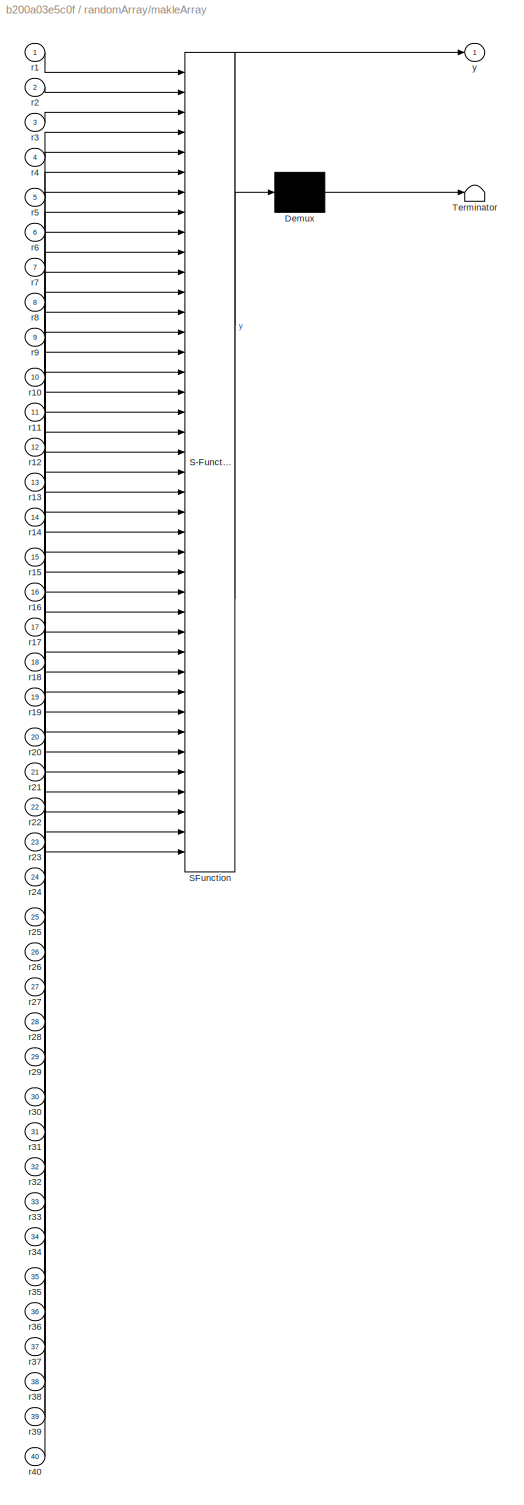
BLOCK [SubSystem] randomArray/makleArray
  ErrorFcn = Stateflow.Translate.translate
  PermitHierarchicalResolution = ExplicitOnly
  Ports = [40, 1]
  RequestExecContextInheritance = off
  SFBlockType = MATLAB Function
  TreatAsAtomicUnit = on
BLOCK [Demux] randomArray/makleArray/ Demux 
  Outputs = 1
  Ports = [1, 1]
BLOCK [S-Function] randomArray/makleArray/ SFunction 
  EnableBusSupport = on
  FunctionName = sf_sfun
  PortCounts = [40 2]
  Ports = [40, 2]
  Tag = Stateflow S-Function Expriment_All 17
BLOCK [Terminator] randomArray/makleArray/ Terminator 
BLOCK [Inport] randomArray/makleArray/r1
  IconDisplay = Port number
BLOCK [Inport] randomArray/makleArray/r10
  IconDisplay = Port number
  Port = 10
BLOCK [Inport] randomArray/makleArray/r11
  IconDisplay = Port number
  Port = 11
BLOCK [Inport] randomArray/makleArray/r12
  IconDisplay = Port number
  Port = 12
BLOCK [Inport] randomArray/makleArray/r13
  IconDisplay = Port number
  Port = 13
BLOCK [Inport] randomArray/makleArray/r14
  IconDisplay = Port number
  Port = 14
BLOCK [Inport] randomArray/makleArray/r15
  IconDisplay = Port number
  Port = 15
BLOCK [Inport] randomArray/makleArray/r16
  IconDisplay = Port number
  Port = 16
BLOCK [Inport] randomArray/makleArray/r17
  IconDisplay = Port number
  Port = 17
BLOCK [Inport] randomArray/makleArray/r18
  IconDisplay = Port number
  Port = 18
BLOCK [Inport] randomArray/makleArray/r19
  IconDisplay = Port number
  Port = 19
BLOCK [Inport] randomArray/makleArray/r2
  IconDisplay = Port number
  Port = 2
BLOCK [Inport] randomArray/makleArray/r20
  IconDisplay = Port number
  Port = 20
BLOCK [Inport] randomArray/makleArray/r21
  IconDisplay = Port number
  Port = 21
BLOCK [Inport] randomArray/makleArray/r22
  IconDisplay = Port number
  Port = 22
BLOCK [Inport] randomArray/makleArray/r23
  IconDisplay = Port number
  Port = 23
BLOCK [Inport] randomArray/makleArray/r24
  IconDisplay = Port number
  Port = 24
BLOCK [Inport] randomArray/makleArray/r25
  IconDisplay = Port number
  Port = 25
BLOCK [Inport] randomArray/makleArray/r26
  IconDisplay = Port number
  Port = 26
BLOCK [Inport] randomArray/makleArray/r27
  IconDisplay = Port number
  Port = 27
BLOCK [Inport] randomArray/makleArray/r28
  IconDisplay = Port number
  Port = 28
BLOCK [Inport] randomArray/makleArray/r29
  IconDisplay = Port number
  Port = 29
BLOCK [Inport] randomArray/makleArray/r3
  IconDisplay = Port number
  Port = 3
BLOCK [Inport] randomArray/makleArray/r30
  IconDisplay = Port number
  Port = 30
BLOCK [Inport] randomArray/makleArray/r31
  IconDisplay = Port number
  Port = 31
BLOCK [Inport] randomArray/makleArray/r32
  IconDisplay = Port number
  Port = 32
BLOCK [Inport] randomArray/makleArray/r33
  IconDisplay = Port number
  Port = 33
BLOCK [Inport] randomArray/makleArray/r34
  IconDisplay = Port number
  Port = 34
BLOCK [Inport] randomArray/makleArray/r35
  IconDisplay = Port number
  Port = 35
BLOCK [Inport] randomArray/makleArray/r36
  IconDisplay = Port number
  Port = 36
BLOCK [Inport] randomArray/makleArray/r37
  IconDisplay = Port number
  Port = 37
BLOCK [Inport] randomArray/makleArray/r38
  IconDisplay = Port number
  Port = 38
BLOCK [Inport] randomArray/makleArray/r39
  IconDisplay = Port number
  Port = 39
BLOCK [Inport] randomArray/makleArray/r4
  IconDisplay = Port number
  Port = 4
BLOCK [Inport] randomArray/makleArray/r40
  IconDisplay = Port number
  Port = 40
BLOCK [Inport] randomArray/makleArray/r5
  IconDisplay = Port number
  Port = 5
BLOCK [Inport] randomArray/makleArray/r6
  IconDisplay = Port number
  Port = 6
BLOCK [Inport] randomArray/makleArray/r7
  IconDisplay = Port number
  Port = 7
BLOCK [Inport] randomArray/makleArray/r8
  IconDisplay = Port number
  Port = 8
BLOCK [Inport] randomArray/makleArray/r9
  IconDisplay = Port number
  Port = 9
BLOCK [Outport] randomArray/makleArray/y
  IconDisplay = Port number
BLOCK [UniformRandomNumber] randomArray/mutDur(3,8)
  Maximum = 8.9999
  Minimum = 3
  SampleTime = 0.01
  Seed = sum(10*clock)
BLOCK [UniformRandomNumber] randomArray/notUsed10
  Maximum = 13.9999
  Minimum = 8
  SampleTime = 0.01
  Seed = sum(10*clock)
BLOCK [UniformRandomNumber] randomArray/notUsed13
  Maximum = 13.9999
  Minimum = 8
  SampleTime = 0.01
  Seed = sum(10*clock)
BLOCK [UniformRandomNumber] randomArray/notUsed14
  Maximum = 13.9999
  Minimum = 8
  SampleTime = 0.01
  Seed = sum(10*clock)
BLOCK [UniformRandomNumber] randomArray/notUsed15
  Maximum = 13.9999
  Minimum = 8
  SampleTime = 0.01
  Seed = sum(10*clock)
BLOCK [UniformRandomNumber] randomArray/notUsed17
  Maximum = 13.9999
  Minimum = 8
  SampleTime = 0.01
  Seed = sum(10*clock)
BLOCK [UniformRandomNumber] randomArray/notUsed4
  Maximum = 13.9999
  Minimum = 8
  SampleTime = 0.01
  Seed = sum(10*clock)
BLOCK [UniformRandomNumber] randomArray/notUsed5
  Maximum = 13.9999
  Minimum = 8
  SampleTime = 0.01
  Seed = sum(10*clock)
BLOCK [UniformRandomNumber] randomArray/notUsed6
  Maximum = 13.9999
  Minimum = 8
  SampleTime = 0.01
  Seed = sum(10*clock)
BLOCK [UniformRandomNumber] randomArray/notUsed7
  Maximum = 13.9999
  Minimum = 8
  SampleTime = 0.01
  Seed = sum(10*clock)
BLOCK [UniformRandomNumber] randomArray/notUsed8
  Maximum = 13.9999
  Minimum = 8
  SampleTime = 0.01
  Seed = sum(10*clock)
BLOCK [UniformRandomNumber] randomArray/notUsed9
  Maximum = 13.9999
  Minimum = 8
  SampleTime = 0.01
  Seed = sum(10*clock)
BLOCK [UniformRandomNumber] randomArray/poseChange-Normal(10,13)
  Maximum = 13.9999
  Minimum = 10
  SampleTime = 0.01
  Seed = sum(10*clock)
BLOCK [UniformRandomNumber] randomArray/poseChange-fast(6,9)
  Maximum = 9.9999
  Minimum = 6
  SampleTime = 0.01
  Seed = sum(10*clock)
BLOCK [UniformRandomNumber] randomArray/poseChange-fastSpace(1,9)
  Maximum = 9.9999
  Minimum = 1
  SampleTime = 0.01
  Seed = sum(10*clock)
BLOCK [UniformRandomNumber] randomArray/poseChange-slow(14,17)
  Maximum = 17.9999
  Minimum = 14
  SampleTime = 0.01
  Seed = sum(10*clock)
BLOCK [UniformRandomNumber] randomArray/pose_rand_freq(5,20)
  Maximum = 20.9999
  Minimum = 5
  SampleTime = 0.01
  Seed = sum(10*clock)
BLOCK [Outport] randomArray/randArray
  IconDisplay = Port number
BLOCK [UniformRandomNumber] randomArray/randHeadDur(2,5)
  Maximum = 5.9999
  Minimum = 2
  SampleTime = 0.01
  Seed = sum(10*clock)
BLOCK [UniformRandomNumber] randomArray/randHeadDurOver(5,7)
  Maximum = 7.9999
  Minimum = 5
  SampleTime = 0.01
  Seed = sum(10*clock)
BLOCK [UniformRandomNumber] randomArray/randPR(1,100)
  Maximum = 100.9999
  Minimum = 1
  SampleTime = 0.01
  Seed = sum(10*clock)
BLOCK [UniformRandomNumber] randomArray/randSlowPose(1,4)
  Maximum = 4.9999
  Minimum = 1
  SampleTime = 0.01
  Seed = sum(10*clock)
BLOCK [UniformRandomNumber] randomArray/selfA_fastNoTwitch(6,13)
  Maximum = 13.9999
  Minimum = 6
  SampleTime = 0.01
  Seed = sum(10*clock)
BLOCK [UniformRandomNumber] randomArray/selfA_normal(1,5)
  Maximum = 5.9999
  Minimum = 1
  SampleTime = 0.01
  Seed = sum(10*clock)
BLOCK [UniformRandomNumber] randomArray/selfA_slownoTwitch(21,28)
  Maximum = 28.9999
  Minimum = 21
  SampleTime = 0.01
  Seed = sum(10*clock)
BLOCK [UniformRandomNumber] randomArray/selfA_twitch_fast(6,20)
  Maximum = 20.9999
  Minimum = 6
  SampleTime = 0.01
  Seed = sum(10*clock)
BLOCK [UniformRandomNumber] randomArray/selfA_twitch_slow(21,35)
  Maximum = 35.9999
  Minimum = 21
  SampleTime = 0.01
  Seed = sum(10*clock)
BLOCK [SubSystem] readGlove
  AncestorBlock = lib_affectiveChar_input/readGlove
  Commented = on
  Ports = [0, 1]
  RequestExecContextInheritance = off
BLOCK [SubSystem] readGlove/Subsystem
  Commented = on
  Ports = [0, 1]
  RequestExecContextInheritance = off
BLOCK [Reference] readGlove/Subsystem/Compare To Constant  REF=simulink/Logic and Bit
Operations/Compare
To Constant
  OutDataTypeStr = boolean
  Ports = [1, 1]
  SourceBlock = simulink/Logic and Bit\nOperations/Compare\nTo Constant
  SourceType = Compare To Constant
  ZeroCross = on
  const = 1
  relop = ==
BLOCK [Reference] readGlove/Subsystem/Compare To Constant1  REF=simulink/Logic and Bit
Operations/Compare
To Constant
  OutDataTypeStr = boolean
  Ports = [1, 1]
  SourceBlock = simulink/Logic and Bit\nOperations/Compare\nTo Constant
  SourceType = Compare To Constant
  ZeroCross = on
  const = 0
  relop = ==
BLOCK [Reference] readGlove/Subsystem/Compare To Constant2  REF=simulink/Logic and Bit
Operations/Compare
To Constant
  OutDataTypeStr = boolean
  Ports = [1, 1]
  SourceBlock = simulink/Logic and Bit\nOperations/Compare\nTo Constant
  SourceType = Compare To Constant
  ZeroCross = on
  const = 3
  relop = ==
BLOCK [Constant] readGlove/Subsystem/Constant3
BLOCK [Constant] readGlove/Subsystem/Constant4
  Value = 0
BLOCK [Demux] readGlove/Subsystem/Demux
  DisplayOption = bar
  Outputs = 3
  Ports = [1, 3]
BLOCK [Constant] readGlove/Subsystem/Middle
  Value = 70
BLOCK [Outport] readGlove/Subsystem/Out1
  IconDisplay = Port number
BLOCK [Display] readGlove/Subsystem/Paper
  Decimation = 1
  Ports = [1]
BLOCK [Display] readGlove/Subsystem/Rock
  Decimation = 1
  Ports = [1]
BLOCK [Display] readGlove/Subsystem/Scissors
  Decimation = 1
  Ports = [1]
BLOCK [Scope] readGlove/Subsystem/Scope
  DataFormat = StructureWithTime
  Floating = off
  NumInputPorts = 3
  Ports = [3]
  SampleTime = 0
  ShowLegends = off
  YMax = 200~200~200
  YMin = -25~20~-25
BLOCK [Scope] readGlove/Subsystem/Scope1
  DataFormat = StructureWithTime
  Floating = off
  NumInputPorts = 3
  Ports = [3]
  SampleTime = 0
  SaveName = ScopeData1
  ShowLegends = off
  YMax = 1.5~1.5~1.5
  YMin = -0.5~-0.5~-1
BLOCK [Reference] readGlove/Subsystem/Serial Configuration  REF=instrumentlib/Serial Configuration
  BaudRate = 9600
  ByteOrder = LittleEndian
  ComPort = COM4
  ComPortMenu = <Please select a port...>
  DataBits = 8
  FlowControl = none
  ObjConstructor = serial('COM4');
  Parity = none
  Ports = []
  Priority = -200000
  SourceBlock = instrumentlib/Serial Configuration
  SourceType = Serial Configuration
  StopBits = 1
  Timeout = 10
BLOCK [Reference] readGlove/Subsystem/Serial Receive  REF=instrumentlib/Serial Receive
  ActionDataUnavailable = Output last received value
  ComPort = COM4
  ComPortMenu = <Please select a port...>
  CustomValue = 0
  DataSize = [3  1]
  DataType = uint8
  EnableBlockingMode = on
  ObjConstructor = serial('COM4');
  Ports = [0, 1]
  SampleTime = 0.01
  SourceBlock = instrumentlib/Serial Receive
  SourceType = Serial Receive
  Terminator = <none>
BLOCK [Sum] readGlove/Subsystem/Subtract
  InputSameDT = off
  Inputs = +-
  OutDataTypeStr = Inherit: Inherit via internal rule
  Ports = [2, 1]
  SaturateOnIntegerOverflow = off
BLOCK [Sum] readGlove/Subsystem/Subtract1
  InputSameDT = off
  Inputs = +-
  OutDataTypeStr = Inherit: Inherit via internal rule
  Ports = [2, 1]
  SaturateOnIntegerOverflow = off
BLOCK [Sum] readGlove/Subsystem/Subtract2
  InputSameDT = off
  Inputs = +-
  OutDataTypeStr = Inherit: Inherit via internal rule
  Ports = [2, 1]
  SaturateOnIntegerOverflow = off
BLOCK [Sum] readGlove/Subsystem/Subtract3
  InputSameDT = off
  Inputs = +++
  OutDataTypeStr = Inherit: Inherit via internal rule
  Ports = [3, 1]
  SaturateOnIntegerOverflow = off
BLOCK [Switch] readGlove/Subsystem/Switch
  Criteria = u2 > Threshold
  InputSameDT = off
  SaturateOnIntegerOverflow = off
  Threshold = 60
BLOCK [Switch] readGlove/Subsystem/Switch1
  Criteria = u2 > Threshold
  InputSameDT = off
  SaturateOnIntegerOverflow = off
  Threshold = 60
BLOCK [Switch] readGlove/Subsystem/Switch2
  Criteria = u2 > Threshold
  InputSameDT = off
  SaturateOnIntegerOverflow = off
  Threshold = 60
BLOCK [Constant] readGlove/Subsystem/index
  Value = 90
BLOCK [Constant] readGlove/Subsystem/ring
  Value = 70
BLOCK [SubSystem] readGlove/convertFunction
  ErrorFcn = Stateflow.Translate.translate
  PermitHierarchicalResolution = ExplicitOnly
  Ports = [1, 1]
  RequestExecContextInheritance = off
  SFBlockType = MATLAB Function
  TreatAsAtomicUnit = on
BLOCK [Demux] readGlove/convertFunction/ Demux 
  Outputs = 1
  Ports = [1, 1]
BLOCK [S-Function] readGlove/convertFunction/ SFunction 
  EnableBusSupport = on
  FunctionName = sf_sfun
  PortCounts = [1 2]
  Ports = [1, 2]
  Tag = Stateflow S-Function Expriment_All 3
BLOCK [Terminator] readGlove/convertFunction/ Terminator 
BLOCK [Inport] readGlove/convertFunction/u
  IconDisplay = Port number
BLOCK [Outport] readGlove/convertFunction/y
  IconDisplay = Port number
BLOCK [SubSystem] readGlove/normal glove
  Ports = [0, 1]
  RequestExecContextInheritance = off
BLOCK [Reference] readGlove/normal glove/Compare To Constant  REF=simulink/Logic and Bit
Operations/Compare
To Constant
  OutDataTypeStr = boolean
  Ports = [1, 1]
  SourceBlock = simulink/Logic and Bit\nOperations/Compare\nTo Constant
  SourceType = Compare To Constant
  ZeroCross = on
  const = 1
  relop = ==
BLOCK [Reference] readGlove/normal glove/Compare To Constant1  REF=simulink/Logic and Bit
Operations/Compare
To Constant
  OutDataTypeStr = boolean
  Ports = [1, 1]
  SourceBlock = simulink/Logic and Bit\nOperations/Compare\nTo Constant
  SourceType = Compare To Constant
  ZeroCross = on
  const = 0
  relop = ==
BLOCK [Reference] readGlove/normal glove/Compare To Constant2  REF=simulink/Logic and Bit
Operations/Compare
To Constant
  OutDataTypeStr = boolean
  Ports = [1, 1]
  SourceBlock = simulink/Logic and Bit\nOperations/Compare\nTo Constant
  SourceType = Compare To Constant
  ZeroCross = on
  const = 3
  relop = ==
BLOCK [Constant] readGlove/normal glove/Constant3
BLOCK [Constant] readGlove/normal glove/Constant4
  Value = 0
BLOCK [Demux] readGlove/normal glove/Demux
  DisplayOption = bar
  Outputs = 3
  Ports = [1, 3]
BLOCK [SubSystem] readGlove/normal glove/Normalize Index
  Ports = [1, 1]
  RequestExecContextInheritance = off
BLOCK [Product] readGlove/normal glove/Normalize Index/Divide
  Inputs = */
  OutDataTypeStr = double
  Ports = [2, 1]
  RndMeth = Nearest
  SaturateOnIntegerOverflow = off
BLOCK [Product] readGlove/normal glove/Normalize Index/Divide1
  InputSameDT = off
  Inputs = **
  OutDataTypeStr = Inherit: Inherit via internal rule
  Ports = [2, 1]
  RndMeth = Floor
  SaturateOnIntegerOverflow = off
BLOCK [SubSystem] readGlove/normal glove/Normalize Index/MinMax
  Ports = [1, 2]
  RequestExecContextInheritance = off
BLOCK [Inport] readGlove/normal glove/Normalize Index/MinMax/In1
  IconDisplay = Port number
BLOCK [Constant] readGlove/normal glove/Normalize Index/MinMax/Index1
  Value = 0
BLOCK [Outport] readGlove/normal glove/Normalize Index/MinMax/Max
  IconDisplay = Port number
  Port = 2
BLOCK [Outport] readGlove/normal glove/Normalize Index/MinMax/Min
  IconDisplay = Port number
BLOCK [Reference] readGlove/normal glove/Normalize Index/MinMax/MinMax Running Resettable  REF=simulink/Math
Operations/MinMax
Running
Resettable
  Function = min
  Ports = [2, 1]
  SourceBlock = simulink/Math\nOperations/MinMax\nRunning\nResettable
  SourceType = MinMax Running Resettable
  vinit = 100
BLOCK [Reference] readGlove/normal glove/Normalize Index/MinMax/MinMax Running Resettable1  REF=simulink/Math
Operations/MinMax
Running
Resettable
  Function = max
  Ports = [2, 1]
  SourceBlock = simulink/Math\nOperations/MinMax\nRunning\nResettable
  SourceType = MinMax Running Resettable
  vinit = 0.0
BLOCK [Outport] readGlove/normal glove/Normalize Index/Norm100Out
  IconDisplay = Port number
BLOCK [Sum] readGlove/normal glove/Normalize Index/Range
  InputSameDT = off
  Inputs = +-
  OutDataTypeStr = double
  Ports = [2, 1]
  SaturateOnIntegerOverflow = off
BLOCK [Inport] readGlove/normal glove/Normalize Index/RawGlove
  IconDisplay = Port number
BLOCK [Constant] readGlove/normal glove/Normalize Index/Ring1
  Value = 100
BLOCK [Sum] readGlove/normal glove/Normalize Index/Subtract5
  InputSameDT = off
  Inputs = +-
  OutDataTypeStr = double
  Ports = [2, 1]
  SaturateOnIntegerOverflow = off
BLOCK [SubSystem] readGlove/normal glove/Normalize Middle
  Ports = [1, 1]
  RequestExecContextInheritance = off
BLOCK [Product] readGlove/normal glove/Normalize Middle/Divide
  Inputs = */
  OutDataTypeStr = double
  Ports = [2, 1]
  RndMeth = Nearest
  SaturateOnIntegerOverflow = off
BLOCK [Product] readGlove/normal glove/Normalize Middle/Divide1
  InputSameDT = off
  Inputs = **
  OutDataTypeStr = Inherit: Inherit via internal rule
  Ports = [2, 1]
  RndMeth = Floor
  SaturateOnIntegerOverflow = off
BLOCK [SubSystem] readGlove/normal glove/Normalize Middle/MinMax
  Ports = [1, 2]
  RequestExecContextInheritance = off
BLOCK [Inport] readGlove/normal glove/Normalize Middle/MinMax/In1
  IconDisplay = Port number
BLOCK [Constant] readGlove/normal glove/Normalize Middle/MinMax/Index1
  Value = 0
BLOCK [Outport] readGlove/normal glove/Normalize Middle/MinMax/Max
  IconDisplay = Port number
  Port = 2
BLOCK [Outport] readGlove/normal glove/Normalize Middle/MinMax/Min
  IconDisplay = Port number
BLOCK [Reference] readGlove/normal glove/Normalize Middle/MinMax/MinMax Running Resettable  REF=simulink/Math
Operations/MinMax
Running
Resettable
  Function = min
  Ports = [2, 1]
  SourceBlock = simulink/Math\nOperations/MinMax\nRunning\nResettable
  SourceType = MinMax Running Resettable
  vinit = 100
BLOCK [Reference] readGlove/normal glove/Normalize Middle/MinMax/MinMax Running Resettable1  REF=simulink/Math
Operations/MinMax
Running
Resettable
  Function = max
  Ports = [2, 1]
  SourceBlock = simulink/Math\nOperations/MinMax\nRunning\nResettable
  SourceType = MinMax Running Resettable
  vinit = 0.0
BLOCK [Outport] readGlove/normal glove/Normalize Middle/Norm100Out
  IconDisplay = Port number
BLOCK [Sum] readGlove/normal glove/Normalize Middle/Range
  InputSameDT = off
  Inputs = +-
  OutDataTypeStr = double
  Ports = [2, 1]
  SaturateOnIntegerOverflow = off
BLOCK [Inport] readGlove/normal glove/Normalize Middle/RawGlove
  IconDisplay = Port number
BLOCK [Constant] readGlove/normal glove/Normalize Middle/Ring1
  Value = 100
BLOCK [Sum] readGlove/normal glove/Normalize Middle/Subtract5
  InputSameDT = off
  Inputs = +-
  OutDataTypeStr = double
  Ports = [2, 1]
  SaturateOnIntegerOverflow = off
BLOCK [SubSystem] readGlove/normal glove/Normalize Ring
  Ports = [1, 1]
  RequestExecContextInheritance = off
BLOCK [Product] readGlove/normal glove/Normalize Ring/Divide
  Inputs = */
  OutDataTypeStr = double
  Ports = [2, 1]
  RndMeth = Nearest
  SaturateOnIntegerOverflow = off
BLOCK [Product] readGlove/normal glove/Normalize Ring/Divide1
  InputSameDT = off
  Inputs = **
  OutDataTypeStr = Inherit: Inherit via internal rule
  Ports = [2, 1]
  RndMeth = Floor
  SaturateOnIntegerOverflow = off
BLOCK [SubSystem] readGlove/normal glove/Normalize Ring/MinMax
  Ports = [1, 2]
  RequestExecContextInheritance = off
BLOCK [Inport] readGlove/normal glove/Normalize Ring/MinMax/In1
  IconDisplay = Port number
BLOCK [Constant] readGlove/normal glove/Normalize Ring/MinMax/Index1
  Value = 0
BLOCK [Outport] readGlove/normal glove/Normalize Ring/MinMax/Max
  IconDisplay = Port number
  Port = 2
BLOCK [Outport] readGlove/normal glove/Normalize Ring/MinMax/Min
  IconDisplay = Port number
BLOCK [Reference] readGlove/normal glove/Normalize Ring/MinMax/MinMax Running Resettable  REF=simulink/Math
Operations/MinMax
Running
Resettable
  Function = min
  Ports = [2, 1]
  SourceBlock = simulink/Math\nOperations/MinMax\nRunning\nResettable
  SourceType = MinMax Running Resettable
  vinit = 100
BLOCK [Reference] readGlove/normal glove/Normalize Ring/MinMax/MinMax Running Resettable1  REF=simulink/Math
Operations/MinMax
Running
Resettable
  Function = max
  Ports = [2, 1]
  SourceBlock = simulink/Math\nOperations/MinMax\nRunning\nResettable
  SourceType = MinMax Running Resettable
  vinit = 0.0
BLOCK [Outport] readGlove/normal glove/Normalize Ring/Norm100Out
  IconDisplay = Port number
BLOCK [Sum] readGlove/normal glove/Normalize Ring/Range
  InputSameDT = off
  Inputs = +-
  OutDataTypeStr = double
  Ports = [2, 1]
  SaturateOnIntegerOverflow = off
BLOCK [Inport] readGlove/normal glove/Normalize Ring/RawGlove
  IconDisplay = Port number
BLOCK [Constant] readGlove/normal glove/Normalize Ring/Ring1
  Value = 100
BLOCK [Sum] readGlove/normal glove/Normalize Ring/Subtract5
  InputSameDT = off
  Inputs = +-
  OutDataTypeStr = double
  Ports = [2, 1]
  SaturateOnIntegerOverflow = off
BLOCK [Outport] readGlove/normal glove/Out1
  IconDisplay = Port number
BLOCK [Display] readGlove/normal glove/Paper
  Decimation = 1
  Ports = [1]
BLOCK [Display] readGlove/normal glove/Rock
  Decimation = 1
  Ports = [1]
BLOCK [Display] readGlove/normal glove/Scissors
  Decimation = 1
  Ports = [1]
BLOCK [Scope] readGlove/normal glove/ScopeBinary
  DataFormat = StructureWithTime
  Floating = off
  NumInputPorts = 3
  Ports = [3]
  SampleTime = 0
  SaveName = ScopeData1
  ShowLegends = off
  YMax = 1.5~1.5~1.5
  YMin = -0.5~-0.5~-0.5
BLOCK [Scope] readGlove/normal glove/ScopeNorm
  DataFormat = StructureWithTime
  Floating = off
  NumInputPorts = 3
  Ports = [3]
  SampleTime = 0
  ShowLegends = off
  TimeRange = 10
  YMax = 150~150~150
  YMin = -20~-20~-20
BLOCK [Reference] readGlove/normal glove/Serial Configuration  REF=instrumentlib/Serial Configuration
  BaudRate = 9600
  ByteOrder = LittleEndian
  ComPort = COM4
  ComPortMenu = <Please select a port...>
  DataBits = 8
  FlowControl = none
  ObjConstructor = serial('COM4');
  Parity = none
  Ports = []
  Priority = -200000
  SourceBlock = instrumentlib/Serial Configuration
  SourceType = Serial Configuration
  StopBits = 1
  Timeout = 10
BLOCK [Reference] readGlove/normal glove/Serial Configuration3  REF=instrumentlib/Serial Configuration
  BaudRate = 9600
  ByteOrder = LittleEndian
  ComPort = COM5
  ComPortMenu = <Please select a port...>
  Commented = on
  DataBits = 8
  FlowControl = none
  ObjConstructor = serial('COM5');
  Parity = none
  Ports = []
  Priority = -200000
  SourceBlock = instrumentlib/Serial Configuration
  SourceType = Serial Configuration
  StopBits = 1
  Timeout = 10
BLOCK [Reference] readGlove/normal glove/Serial Receive  REF=instrumentlib/Serial Receive
  ActionDataUnavailable = Output last received value
  ComPort = COM4
  ComPortMenu = <Please select a port...>
  CustomValue = 0
  DataSize = [3  1]
  DataType = uint8
  EnableBlockingMode = on
  ObjConstructor = serial('COM4');
  Ports = [0, 1]
  SampleTime = 0.01
  SourceBlock = instrumentlib/Serial Receive
  SourceType = Serial Receive
  Terminator = <none>
BLOCK [Reference] readGlove/normal glove/Serial Receive1  REF=instrumentlib/Serial Receive
  ActionDataUnavailable = Output last received value
  ComPort = COM5
  ComPortMenu = <Please select a port...>
  Commented = on
  CustomValue = 0
  DataSize = [3  1]
  DataType = uint8
  EnableBlockingMode = on
  ObjConstructor = serial('COM5');
  Ports = [0, 1]
  SampleTime = 0.01
  SourceBlock = instrumentlib/Serial Receive
  SourceType = Serial Receive
  Terminator = <none>
BLOCK [Sum] readGlove/normal glove/Subtract3
  InputSameDT = off
  Inputs = +++
  OutDataTypeStr = Inherit: Inherit via internal rule
  Ports = [3, 1]
  SaturateOnIntegerOverflow = off
BLOCK [Switch] readGlove/normal glove/Switch
  Criteria = u2 > Threshold
  InputSameDT = off
  SaturateOnIntegerOverflow = off
  Threshold = 70
BLOCK [Switch] readGlove/normal glove/Switch1
  Criteria = u2 > Threshold
  InputSameDT = off
  SaturateOnIntegerOverflow = off
  Threshold = 70
BLOCK [Switch] readGlove/normal glove/Switch2
  Criteria = u2 > Threshold
  InputSameDT = off
  SaturateOnIntegerOverflow = off
  Threshold = 70
BLOCK [Outport] readGlove/rps
  IconDisplay = Port number
BLOCK [SubSystem] readSHORE
  AncestorBlock = lib_affectiveChar_input/readSHORE
  Commented = on
  Ports = [0, 1]
  RequestExecContextInheritance = off
BLOCK [Outport] readSHORE/Out1
  IconDisplay = Port number
BLOCK [M-S-Function] readSHORE/readSHORE
  FunctionName = yarpReadSHORE_sfun
  Parameters = '/testSender','/simulink/in'
  Ports = [0, 1]
BLOCK [SubSystem] readSHORE/smile
  Ports = [1, 1]
  RequestExecContextInheritance = off
BLOCK [Inport] readSHORE/smile/In1
  IconDisplay = Port number
BLOCK [Outport] readSHORE/smile/Out1
  IconDisplay = Port number
BLOCK [SubSystem] readSHORE/smile/ifSmile
  ErrorFcn = Stateflow.Translate.translate
  PermitHierarchicalResolution = ExplicitOnly
  Ports = [1, 1]
  RequestExecContextInheritance = off
  SFBlockType = MATLAB Function
  TreatAsAtomicUnit = on
BLOCK [Demux] readSHORE/smile/ifSmile/ Demux 
  Outputs = 1
  Ports = [1, 1]
BLOCK [S-Function] readSHORE/smile/ifSmile/ SFunction 
  EnableBusSupport = on
  FunctionName = sf_sfun
  PortCounts = [1 2]
  Ports = [1, 2]
  Tag = Stateflow S-Function Expriment_All 24
BLOCK [Terminator] readSHORE/smile/ifSmile/ Terminator 
BLOCK [Inport] readSHORE/smile/ifSmile/u
  IconDisplay = Port number
BLOCK [Outport] readSHORE/smile/ifSmile/y
  IconDisplay = Port number
BLOCK [SubSystem] sendtoGUIFunction
  ErrorFcn = Stateflow.Translate.translate
  PermitHierarchicalResolution = ExplicitOnly
  Ports = [7]
  RequestExecContextInheritance = off
  SFBlockType = MATLAB Function
  TreatAsAtomicUnit = on
BLOCK [Demux] sendtoGUIFunction/ Demux 
  Outputs = 1
  Ports = [1, 1]
BLOCK [S-Function] sendtoGUIFunction/ SFunction 
  EnableBusSupport = on
  FunctionName = sf_sfun
  PortCounts = [7 1]
  Ports = [7, 1]
  Tag = Stateflow S-Function Expriment_All 2
BLOCK [Terminator] sendtoGUIFunction/ Terminator 
BLOCK [Inport] sendtoGUIFunction/bTotal
  IconDisplay = Port number
  Port = 5
BLOCK [Inport] sendtoGUIFunction/bradHand
  IconDisplay = Port number
  Port = 2
BLOCK [Inport] sendtoGUIFunction/gameNum
  IconDisplay = Port number
  Port = 7
BLOCK [Inport] sendtoGUIFunction/gameStatus
  IconDisplay = Port number
BLOCK [Inport] sendtoGUIFunction/uTotal
  IconDisplay = Port number
  Port = 6
BLOCK [Inport] sendtoGUIFunction/userHand
  IconDisplay = Port number
  Port = 3
BLOCK [Inport] sendtoGUIFunction/win
  IconDisplay = Port number
  Port = 4
BLOCK [SubSystem] setPersonality
  ErrorFcn = Stateflow.Translate.translate
  PermitHierarchicalResolution = ExplicitOnly
  Ports = [2, 1]
  RequestExecContextInheritance = off
  SFBlockType = MATLAB Function
  TreatAsAtomicUnit = on
BLOCK [Demux] setPersonality/ Demux 
  Outputs = 1
  Ports = [1, 1]
BLOCK [S-Function] setPersonality/ SFunction 
  EnableBusSupport = on
  FunctionName = sf_sfun
  PortCounts = [2 2]
  Ports = [2, 2]
  Tag = Stateflow S-Function Expriment_All 37
BLOCK [Terminator] setPersonality/ Terminator 
BLOCK [Inport] setPersonality/extrovert
  IconDisplay = Port number
BLOCK [Inport] setPersonality/neurotic
  IconDisplay = Port number
  Port = 2
BLOCK [Outport] setPersonality/personality
  IconDisplay = Port number
BLOCK [SubSystem] v_Change
  Ports = [1, 1]
  RequestExecContextInheritance = off
BLOCK [Abs] v_Change/Abs2
  SaturateOnIntegerOverflow = off
BLOCK [Reference] v_Change/Compare To Constant2  REF=simulink/Logic and Bit
Operations/Compare
To Constant
  OutDataTypeStr = boolean
  Ports = [1, 1]
  SourceBlock = simulink/Logic and Bit\nOperations/Compare\nTo Constant
  SourceType = Compare To Constant
  ZeroCross = on
  const = 1
  relop = >
BLOCK [Delay] v_Change/Delay1
  DelayLength = 1
  InitialCondition = 0
  InputPortMap = u0
  Ports = [1, 1]
  SampleTime = 0.01
BLOCK [Sum] v_Change/Sum2
  IconShape = round
  InputSameDT = off
  Inputs = |+-
  OutDataTypeStr = Inherit: Inherit via internal rule
  Ports = [2, 1]
  SaturateOnIntegerOverflow = off
BLOCK [Inport] v_Change/v
  IconDisplay = Port number
BLOCK [Outport] v_Change/vChange
  IconDisplay = Port number
BLOCK [SubSystem] xChange
  Ports = [1, 1]
  RequestExecContextInheritance = off
BLOCK [Abs] xChange/Abs2
  SaturateOnIntegerOverflow = off
BLOCK [Reference] xChange/Compare To Constant2  REF=simulink/Logic and Bit
Operations/Compare
To Constant
  OutDataTypeStr = boolean
  Ports = [1, 1]
  SourceBlock = simulink/Logic and Bit\nOperations/Compare\nTo Constant
  SourceType = Compare To Constant
  ZeroCross = on
  const = 0.1
  relop = >
BLOCK [Delay] xChange/Delay1
  DelayLength = 1
  InitialCondition = 0
  InputPortMap = u0
  Ports = [1, 1]
  SampleTime = 0.01
BLOCK [Sum] xChange/Sum2
  IconShape = round
  InputSameDT = off
  Inputs = |+-
  OutDataTypeStr = Inherit: Inherit via internal rule
  Ports = [2, 1]
  SaturateOnIntegerOverflow = off
BLOCK [Inport] xChange/x
  IconDisplay = Port number
BLOCK [Outport] xChange/xChange
  IconDisplay = Port number
ANNOTATION (root): Sensors Simulation:
ANNOTATION (root): Sensors:
ANNOTATION (root): -Personalities: HighExtravert(HE), LowExtravert, HighNeurotic,Low Neurotic -Agent reads the participant's hand gesture.He calculates if he won. -Personalityis expressed in Emotion, Behavior & Cope. -Emotion: Internal emotion changes based on if he wins. HE shows. -Behavior: HE fast move, gaze; lowE: avet; HN scratches, LN less moves -Cope: HE cope better than LE
ANNOTATION (root): Emotionis generated continously but expresstion of emotion is state-based.
ANNOTATION (root): Fix: the system is not still real-time. Removing both of input sensors cause the program to get very fast. Have to increase the sample time of Pulse Generator (from solution's sample time which is 0.01) to 0.2, to make the programm run slower.OR change the period and palse width from 2 , 1 to 20,10.
ANNOTATION (root): KINECT
ANNOTATION (root): NO
ANNOTATION (root): Personality type: 1: HEHN 2: LEHN 3: HELN 4: LELN
ANNOTATION (root): READ GLOVE
ANNOTATION (root): SAMPLE TIME CHANGE: Also should change: -Pulse generator -3 delay sample times in emotion subs -3 delay sample times in checkUserMove
ANNOTATION (root): SHORE
ANNOTATION (root): WORLDSIM
ANNOTATION (root): When we use sensor sample time 0.001 and pulse gen sample time=0.01, itmakes it very slow.
ANNOTATION (root): YES
ANNOTATION (root): input from worldsim makes the simulation very slow: change sample times from 0.1 to 0.01
ANNOTATION EmotionSubsystem: -Gratch et al used a set of feature detectors that map features of task into apprisal variables that chracterized consequence of event from agent perspective. -Variables: desirability of consequences, likelihood of them,who deserve credit or blame,ability of agnet to alter consequence. Result is appraisal frames that characterize agent emotional reaction to event. -Copying: exploit tasks to uncove...<+376ch>
ANNOTATION EmotionSubsystem: -In RPS scenario, agent is satisfied if she wins. (In satFunction, set satisfaction flag. ) -In RPS, agent is highly aroused when the game is in Go or Hands condition and low-aroused when in Ready or Over conditions. In arousFlagFunction, set in which states of the interaction agent experienced less or more arousal.
ANNOTATION EmotionSubsystem: Arousal: Neurotics experience more emotional arousal changes.
ANNOTATION EmotionSubsystem: Valence: Extraverts are more responsive to possitive stimule while neurotics are more responsive to negative stimulies. for more info check Eyesneck
ANNOTATION EmotionSubsystem: Valence: Extraverts in general feel more positive. Neurotics in general feel more negative.
ANNOTATION EmotionSubsystem: Three major approaches to affect modelling can be distinguished [1]: categorical, dimensional and appraisal-based approach (Orthony's OCC, Roseman, Scherer).
ANNOTATION EmotionSubsystem: Association between implemented OCC appraisal variables and OCC emotion types Desirability,consequence of event for self,no prospect=Joy, Distress Desirability, DesirabilityForOthers= HappyFor, Gloating, Pitty, Resentment Approve action,Praiseworthiness =Pride, Admiration, Shame, Reproach Praiseworthiness, Desirability =Gratification, Gratitude, Remorse, Anger Like= Love, Hate Consequence of event...<+122ch>
ANNOTATION EmotionSubsystem: I N T E R A C T I O N
ANNOTATION EmotionSubsystem: In calculateVA, based on satisfaction and arousal, V and A curves and the internal emotion of the agent are calculated.
ANNOTATION EmotionSubsystem: Negative Security
ANNOTATION EmotionSubsystem: P E R C E P T I O N
ANNOTATION EmotionSubsystem: Positive Novelty & Security
ANNOTATION EmotionSubsystem: PositiveAutonomy & Novelty &Potency
ANNOTATION EmotionSubsystem: PositiveNovelty & Relevence
ANNOTATION EmotionSubsystem: PositiveNovelty & Security
ANNOTATION EmotionSubsystem: Reactive system: Arousal/Valence & result facial expressions drive directly from stimulous evaluation.
ANNOTATION EmotionSubsystem: Set delay's sample time to yours
ANNOTATION EmotionSubsystem: The Zurich Model of Social Motivation (ZHM), (Bischof, 1985) defines three basic motivational systems: the security, the arousal, and the autonomy system.All of these are represented as negative feedback loops and are considered homeostatic. In addition, there is a fourth system, the coping system, which deals with cases in which one of the other systems gets blocked and cannot operate in its usua...<+41ch>
ANNOTATION EmotionSubsystem/calculateValenceArousal: -arousal and valence decays as the time passes. -Specify the desired decay rate for the arousal and valence curves.(default=-0.001) -The lower the decay,the faster is the rate of change (slope) e.g. -0.005 is slower and -0.01 faster
ANNOTATION EmotionSubsystem/calculateValenceArousal: -valence flag {interaction satisfaction,userSmile,userWave} -arousal flag { interaction novelty, user invade space}
ANNOTATION EmotionSubsystem/calculateValenceArousal: For more info on mapping valence and arousal to basic emotions check: Russell (1980) A circumplex model of affect.
ANNOTATION EmotionSubsystem/calculateValenceArousal: Affective adaptation is the process of weakening of the affective response of a constant or repeated affective stimulus by psychological processes. A modified exponentially weighted average computational model of affective adaptation is proposed. HED: A Computational Model of Affective Adaptation and Emotion Dynamics, John E. Steephen
ANNOTATION EmotionSubsystem/calculateValenceArousal: Arousal as a function of gaem state HighE:black LowE:pink HighN:gray LowN:red
ANNOTATION EmotionSubsystem/calculateValenceArousal: Highly extroverts show their emotions more
ANNOTATION EmotionSubsystem/calculateValenceArousal: Note: the reason I did not make this one parameterized s_fun is that we may want to compare the generated emotion for 4 personalities at the same time. In addition, when personality changes V and A of that personality are fed to the system.
ANNOTATION EmotionSubsystem/calculateValenceArousal: The higher B_FACTOR and S_FACTOR the faster increase or decrease of arousal and valence.(default B=0.75, S=0.25)
ANNOTATION EmotionSubsystem/calculateValenceArousal: Valence as a function of satisfaction HighE:black LowE:pink HighN:gray LowN:red
ANNOTATION GazeFollowSubsystem: Fix:since I'm activating the reactiveGaze module based on change in x, it should be a change in ifUserChangeX (0-1 or 1-0) for it to be activated, and if it is always 1 , ifuserchangex=1 then it does not activate.
ANNOTATION GazeFollowSubsystem/resetGazeTarget: When input falls to 0 from 1 (gazeFollow is 0), reset the gazeTarget to default to avoid agent looking at an unknown place as the camera.
ANNOTATION P_Change: Problem: changing personality only changes the pChange value to 1 for 1 sample time which was very small and stateflow was not able to detect it. Fix: Insreasing the sample time of the delay (10 times ,keeps the value 10 times, which is enough for pose subsystem to detect it and change the lean pose of agent.
ANNOTATION agentModaltiesAttending: Agent body idle can still generate BML but agent gaze idle should not.
ANNOTATION agentModaltiesAttending: B O D Y
ANNOTATION agentModaltiesAttending: Both agent body idle and agent gaze idle should not generate BML.
ANNOTATION agentModaltiesAttending: F A C I L
ANNOTATION gazeInputArray: 1) if gaze_custom_flag=1, user controls the gaze variables (personality &emotion have no effect) 2) mutual_gaze_duration_custom: default is 1 which gives btw 18-to-26; range=float e.g. 0.25 is mutDuration/4; 2 is mutDuration*2 3) avert_gaze_duration_custom default is 1;same as mutual 4) avert_head_frequency_custom default is 1, rangle=float values 5) avert_head_speed_custom=if 1 normal, if 2 fast,...<+308ch>
ANNOTATION poseInputArray: 1) if gaze_custom_flag=1, user controls the pose variables (personality &emotion have no effect) 2) pose_selfAdaptor_chance_custom 3) pose_chance_custom 4) pose_frequency_custom 5) pose_speed_custom
ANNOTATION randomArray: 9.9999 gives 9.
ANNOTATION readGlove: 0 paper 1 scissors 3 rock
ANNOTATION readGlove: 1 paper 0 scissors 2 rock
ANNOTATION readSHORE: To remove the SHORE error if only value changes from 0 in one cycle ignore it.
ANNOTATION xChange: Here I checked if the difference of current and old x is less than big value, chose a large amount becuase if there is a small change in x we are not considering it moving. I do this because if xChange is too sensitive to change, it keeps to be 1 with small changes in position of user so it does not trigger gaze subsystem (in order to gaze xchange should keep changeing btw 0 and 1 to trigger the s...<+286ch>
ANNOTATION xChange: Problem: changing personality only changes the pChange value to 1 for 1 sample time which was very small and stateflow was not able to detect it. Fix: Insreasing the sample time of the delay (10 times ,keeps the value 10 times, which is enough for pose subsystem to detect it and change the lean pose of agent.
NET Agent_Gaze_Follow User:1 -> GazeFollowSubsystem:3, agentModaltiesAttending:2
NET Agent_Has_Emotion:1 -> CharacterControl:21, EmotionSubsystem:7
LINE Agent_Has_Personality:1 -> CharacterControl:20
LINE Agent_Highly_Extrovert:1 -> setPersonality:1
LINE Agent_Highly_Neurotic:1 -> setPersonality:2
NET CharacterControl:1 -> EmotionSubsystem:2, sendtoGUIFunction:1
LINE CharacterControl:2 -> sendtoGUIFunction:2
LINE CharacterControl:3 -> sendtoGUIFunction:3
NET CharacterControl:4 -> EmotionSubsystem:1, sendtoGUIFunction:4
LINE CharacterControl:5 -> sendtoGUIFunction:5
LINE CharacterControl:6 -> sendtoGUIFunction:6
LINE CharacterControl:7 -> sendtoGUIFunction:7
LINE Constant10:1 -> User_Wave_Right Hand:2
LINE Constant11:1 -> Agent_Highly_Extrovert:1
LINE Constant12:1 -> Agent_Highly_Extrovert:2
LINE Constant13:1 -> Agent_Highly_Neurotic:1
LINE Constant14:1 -> Agent_Highly_Neurotic:2
LINE Constant15:1 -> User_Wave_Left Hand:2
LINE Constant16:1 -> User_Wave_Left Hand:1
LINE Constant17:1 -> Agent_Gaze_Follow User:2
LINE Constant18:1 -> Agent_Gaze_Follow User:1
LINE Constant19:1 -> Agent_Has_Personality:1
LINE Constant1:1 -> User_PlayHand (RPS):1
LINE Constant20:1 -> Agent_Has_Personality:2
LINE Constant21:1 -> Agent_Has_Emotion:1
LINE Constant22:1 -> Agent_Has_Emotion:2
LINE Constant2:1 -> boolean_changeFlags:1
LINE Constant3:1 -> boolean_changeFlags:2
LINE Constant4:1 -> User_PlayHand (RPS):2
LINE Constant5:1 -> User_Smiles:1
LINE Constant6:1 -> User_Smiles:2
LINE Constant7:1 -> User_Invades_Personal Space:1
LINE Constant8:1 -> User_Invades_Personal Space:2
LINE Constant9:1 -> User_Wave_Right Hand:1
LINE Elapsed Real Time2:1 -> Elapsed Real Time:1
LINE EmotionSubsystem/Delay1:1 -> EmotionSubsystem/V:1
LINE EmotionSubsystem/Delay2:1 -> EmotionSubsystem/A:1
LINE EmotionSubsystem/Delay:1 -> EmotionSubsystem/E:1
NET EmotionSubsystem/arousalFlagFunction:1 -> EmotionSubsystem/arousal:1, EmotionSubsystem/calculateValenceArousal:2
NET EmotionSubsystem/arousalFlagFunction:2 -> EmotionSubsystem/arousal:2, EmotionSubsystem/calculateValenceArousal:5
LINE EmotionSubsystem/calculateValenceArousal/A:1 -> EmotionSubsystem/calculateValenceArousal/outA:1
NET EmotionSubsystem/calculateValenceArousal/B_FACTOR:1 -> EmotionSubsystem/calculateValenceArousal/Level-2 MATLAB S-Function1:4, EmotionSubsystem/calculateValenceArousal/Level-2 MATLAB S-Function2:4, EmotionSubsystem/calculateValenceArousal/Level-2 MATLAB S-Function3:4, EmotionSubsystem/calculateValenceArousal/Level-2 MATLAB S-Function:4
NET EmotionSubsystem/calculateValenceArousal/DECAY_RATE:1 -> EmotionSubsystem/calculateValenceArousal/Level-2 MATLAB S-Function1:3, EmotionSubsystem/calculateValenceArousal/Level-2 MATLAB S-Function2:3, EmotionSubsystem/calculateValenceArousal/Level-2 MATLAB S-Function3:3, EmotionSubsystem/calculateValenceArousal/Level-2 MATLAB S-Function:3
LINE EmotionSubsystem/calculateValenceArousal/E:1 -> EmotionSubsystem/calculateValenceArousal/internalE:1
LINE EmotionSubsystem/calculateValenceArousal/HEHN_A:1 -> EmotionSubsystem/calculateValenceArousal/A:2
LINE EmotionSubsystem/calculateValenceArousal/HEHN_V:1 -> EmotionSubsystem/calculateValenceArousal/V:2
NET EmotionSubsystem/calculateValenceArousal/HEHN_VA_Emo:1 -> EmotionSubsystem/calculateValenceArousal/E:2, EmotionSubsystem/calculateValenceArousal/Emotion:1
LINE EmotionSubsystem/calculateValenceArousal/HELN_A:1 -> EmotionSubsystem/calculateValenceArousal/A:4
LINE EmotionSubsystem/calculateValenceArousal/HELN_V:1 -> EmotionSubsystem/calculateValenceArousal/V:4
NET EmotionSubsystem/calculateValenceArousal/HELN_VA_Emo:1 -> EmotionSubsystem/calculateValenceArousal/E:4, EmotionSubsystem/calculateValenceArousal/Emotion:3
LINE EmotionSubsystem/calculateValenceArousal/LEHN_A:1 -> EmotionSubsystem/calculateValenceArousal/A:3
LINE EmotionSubsystem/calculateValenceArousal/LEHN_V:1 -> EmotionSubsystem/calculateValenceArousal/V:3
NET EmotionSubsystem/calculateValenceArousal/LEHN_VA_Emo:1 -> EmotionSubsystem/calculateValenceArousal/E:3, EmotionSubsystem/calculateValenceArousal/Emotion:2
LINE EmotionSubsystem/calculateValenceArousal/LELN_A:1 -> EmotionSubsystem/calculateValenceArousal/A:5
LINE EmotionSubsystem/calculateValenceArousal/LELN_V:1 -> EmotionSubsystem/calculateValenceArousal/V:5
NET EmotionSubsystem/calculateValenceArousal/LELN_VA_Emo:1 -> EmotionSubsystem/calculateValenceArousal/E:5, EmotionSubsystem/calculateValenceArousal/Emotion:4
NET EmotionSubsystem/calculateValenceArousal/Level-2 MATLAB S-Function1:1 -> EmotionSubsystem/calculateValenceArousal/LEHN plot:1, EmotionSubsystem/calculateValenceArousal/LEHN:1, EmotionSubsystem/calculateValenceArousal/LEHN_V:1, EmotionSubsystem/calculateValenceArousal/LEHN_VA_Emo:1, EmotionSubsystem/calculateValenceArousal/Mux6:2
NET EmotionSubsystem/calculateValenceArousal/Level-2 MATLAB S-Function1:2 -> EmotionSubsystem/calculateValenceArousal/LEHN plot:2, EmotionSubsystem/calculateValenceArousal/LEHN:2, EmotionSubsystem/calculateValenceArousal/LEHN_A:1, EmotionSubsystem/calculateValenceArousal/LEHN_VA_Emo:2, EmotionSubsystem/calculateValenceArousal/Mux1:2
NET EmotionSubsystem/calculateValenceArousal/Level-2 MATLAB S-Function2:1 -> EmotionSubsystem/calculateValenceArousal/HELN plot:1, EmotionSubsystem/calculateValenceArousal/HELN:1, EmotionSubsystem/calculateValenceArousal/HELN_V:1, EmotionSubsystem/calculateValenceArousal/HELN_VA_Emo:1, EmotionSubsystem/calculateValenceArousal/Mux6:3
NET EmotionSubsystem/calculateValenceArousal/Level-2 MATLAB S-Function2:2 -> EmotionSubsystem/calculateValenceArousal/HELN plot:2, EmotionSubsystem/calculateValenceArousal/HELN:2, EmotionSubsystem/calculateValenceArousal/HELN_A:1, EmotionSubsystem/calculateValenceArousal/HELN_VA_Emo:2, EmotionSubsystem/calculateValenceArousal/Mux1:3
NET EmotionSubsystem/calculateValenceArousal/Level-2 MATLAB S-Function3:1 -> EmotionSubsystem/calculateValenceArousal/LELN plot:1, EmotionSubsystem/calculateValenceArousal/LELN:1, EmotionSubsystem/calculateValenceArousal/LELN_V:1, EmotionSubsystem/calculateValenceArousal/LELN_VA_Emo:1, EmotionSubsystem/calculateValenceArousal/Mux6:4
NET EmotionSubsystem/calculateValenceArousal/Level-2 MATLAB S-Function3:2 -> EmotionSubsystem/calculateValenceArousal/LELN plot:2, EmotionSubsystem/calculateValenceArousal/LELN:2, EmotionSubsystem/calculateValenceArousal/LELN_A:1, EmotionSubsystem/calculateValenceArousal/LELN_VA_Emo:2, EmotionSubsystem/calculateValenceArousal/Mux1:4
NET EmotionSubsystem/calculateValenceArousal/Level-2 MATLAB S-Function:1 -> EmotionSubsystem/calculateValenceArousal/HEHN plot:1, EmotionSubsystem/calculateValenceArousal/HEHN:1, EmotionSubsystem/calculateValenceArousal/HEHN_V:1, EmotionSubsystem/calculateValenceArousal/HEHN_VA_Emo:1, EmotionSubsystem/calculateValenceArousal/Mux6:1
NET EmotionSubsystem/calculateValenceArousal/Level-2 MATLAB S-Function:2 -> EmotionSubsystem/calculateValenceArousal/HEHN plot:2, EmotionSubsystem/calculateValenceArousal/HEHN:2, EmotionSubsystem/calculateValenceArousal/HEHN_A:1, EmotionSubsystem/calculateValenceArousal/HEHN_VA_Emo:2, EmotionSubsystem/calculateValenceArousal/Mux1:1
LINE EmotionSubsystem/calculateValenceArousal/Mux1:1 -> EmotionSubsystem/calculateValenceArousal/Arousal:1
LINE EmotionSubsystem/calculateValenceArousal/Mux6:1 -> EmotionSubsystem/calculateValenceArousal/Valence:1
NET EmotionSubsystem/calculateValenceArousal/S_FACTOR:1 -> EmotionSubsystem/calculateValenceArousal/Level-2 MATLAB S-Function1:5, EmotionSubsystem/calculateValenceArousal/Level-2 MATLAB S-Function2:5, EmotionSubsystem/calculateValenceArousal/Level-2 MATLAB S-Function3:5, EmotionSubsystem/calculateValenceArousal/Level-2 MATLAB S-Function:5
LINE EmotionSubsystem/calculateValenceArousal/V:1 -> EmotionSubsystem/calculateValenceArousal/outV:1
NET EmotionSubsystem/calculateValenceArousal/arousalTrigger:1 -> EmotionSubsystem/calculateValenceArousal/Arousal:2, EmotionSubsystem/calculateValenceArousal/Level-2 MATLAB S-Function1:2, EmotionSubsystem/calculateValenceArousal/Level-2 MATLAB S-Function2:2, EmotionSubsystem/calculateValenceArousal/Level-2 MATLAB S-Function3:2, EmotionSubsystem/calculateValenceArousal/Level-2 MATLAB S-Function:2
NET EmotionSubsystem/calculateValenceArousal/personality:1 -> EmotionSubsystem/calculateValenceArousal/A:1, EmotionSubsystem/calculateValenceArousal/E:1, EmotionSubsystem/calculateValenceArousal/V:1
NET EmotionSubsystem/calculateValenceArousal/triggerWeightArousal:1 -> EmotionSubsystem/calculateValenceArousal/Level-2 MATLAB S-Function1:7, EmotionSubsystem/calculateValenceArousal/Level-2 MATLAB S-Function2:7, EmotionSubsystem/calculateValenceArousal/Level-2 MATLAB S-Function3:7, EmotionSubsystem/calculateValenceArousal/Level-2 MATLAB S-Function:7
NET EmotionSubsystem/calculateValenceArousal/triggerWeightValence:1 -> EmotionSubsystem/calculateValenceArousal/Level-2 MATLAB S-Function1:6, EmotionSubsystem/calculateValenceArousal/Level-2 MATLAB S-Function2:6, EmotionSubsystem/calculateValenceArousal/Level-2 MATLAB S-Function3:6, EmotionSubsystem/calculateValenceArousal/Level-2 MATLAB S-Function:6
NET EmotionSubsystem/calculateValenceArousal/valenceTrigger:1 -> EmotionSubsystem/calculateValenceArousal/Level-2 MATLAB S-Function1:1, EmotionSubsystem/calculateValenceArousal/Level-2 MATLAB S-Function2:1, EmotionSubsystem/calculateValenceArousal/Level-2 MATLAB S-Function3:1, EmotionSubsystem/calculateValenceArousal/Level-2 MATLAB S-Function:1, EmotionSubsystem/calculateValenceArousal/Valence:2
LINE EmotionSubsystem/calculateValenceArousal:1 -> EmotionSubsystem/Delay:1
NET EmotionSubsystem/calculateValenceArousal:2 -> EmotionSubsystem/Delay1:1, EmotionSubsystem/valence:3
NET EmotionSubsystem/calculateValenceArousal:3 -> EmotionSubsystem/Delay2:1, EmotionSubsystem/arousal:3
NET EmotionSubsystem/hasEmotion:1 -> EmotionSubsystem/arousalFlagFunction:3, EmotionSubsystem/satFunction:6
LINE EmotionSubsystem/idle_A_RandomTrigger:1 -> EmotionSubsystem/arousalFlagFunction:4
LINE EmotionSubsystem/idle_V_RandomTrigger:1 -> EmotionSubsystem/satFunction:1
LINE EmotionSubsystem/interactionNovelty:1 -> EmotionSubsystem/arousalFlagFunction:2
LINE EmotionSubsystem/interactionSatisfaction:1 -> EmotionSubsystem/satFunction:4
LINE EmotionSubsystem/personality:1 -> EmotionSubsystem/calculateValenceArousal:3
NET EmotionSubsystem/satFunction:1 -> EmotionSubsystem/calculateValenceArousal:4, EmotionSubsystem/valence:1
NET EmotionSubsystem/satFunction:2 -> EmotionSubsystem/calculateValenceArousal:1, EmotionSubsystem/valence:2
NET EmotionSubsystem/userInvade:1 -> EmotionSubsystem/arousalFlagFunction:1, EmotionSubsystem/satFunction:5
LINE EmotionSubsystem/userSmile:1 -> EmotionSubsystem/satFunction:2
LINE EmotionSubsystem/userWave:1 -> EmotionSubsystem/satFunction:3
LINE EmotionSubsystem:1 -> CharacterControl:15
NET EmotionSubsystem:2 -> CharacterControl:14, v_Change:1
NET EmotionSubsystem:3 -> CharacterControl:12, a_Change:1
LINE GazeFollowSubsystem/Y:1 -> GazeFollowSubsystem/reactiveGaze:2
LINE GazeFollowSubsystem/gaze:1 -> GazeFollowSubsystem/reactiveGaze:trigger
NET GazeFollowSubsystem/ifUserChangeX:1 -> GazeFollowSubsystem/Scope:2, GazeFollowSubsystem/gaze:1
NET GazeFollowSubsystem/interactionState:1 -> GazeFollowSubsystem/gaze:2, GazeFollowSubsystem/resetGazeTarget:trigger
LINE GazeFollowSubsystem/reactiveGaze/reactiveGazeControl/reactiveMovePawn:1 -> GazeFollowSubsystem/reactiveGaze/reactiveGazeControl/C++ S-Function2:1
LINE GazeFollowSubsystem/reactiveGaze/reactiveGazeControl/x:1 -> GazeFollowSubsystem/reactiveGaze/reactiveGazeControl/reactiveMovePawn:1
LINE GazeFollowSubsystem/reactiveGaze/reactiveGazeControl/y:1 -> GazeFollowSubsystem/reactiveGaze/reactiveGazeControl/reactiveMovePawn:2
LINE GazeFollowSubsystem/reactiveGaze/x:1 -> GazeFollowSubsystem/reactiveGaze/reactiveGazeControl:1
LINE GazeFollowSubsystem/reactiveGaze/y:1 -> GazeFollowSubsystem/reactiveGaze/reactiveGazeControl:2
NET GazeFollowSubsystem/userX:1 -> GazeFollowSubsystem/Scope:1, GazeFollowSubsystem/reactiveGaze:1
LINE P_Change/Abs2:1 -> P_Change/Compare To Constant2:1
LINE P_Change/Compare To Constant2:1 -> P_Change/pChange:1
LINE P_Change/Delay1:1 -> P_Change/Sum2:1
LINE P_Change/Sum2:1 -> P_Change/Abs2:1
NET P_Change/p:1 -> P_Change/Delay1:1, P_Change/Sum2:2
LINE P_Change:1 -> CharacterControl:19
LINE Pulse Generator:1 -> CharacterControl:trigger
NET Sine Wave for gaze follow:1 -> GazeFollowSubsystem:2, xChange:1
NET User_Invades_Personal Space:1 -> CharacterControl:11, EmotionSubsystem:6, agentModaltiesAttending:4
NET User_PlayHand (RPS):1 -> CharacterControl:5, agentModaltiesAttending:3
NET User_Smiles:1 -> CharacterControl:6, EmotionSubsystem:4, agentModaltiesAttending:1
NET User_Wave_Left Hand:1 -> agentModaltiesAttending:6, handUpTable:2
NET User_Wave_Right Hand:1 -> agentModaltiesAttending:5, handUpTable:1
LINE a_Change/Abs2:1 -> a_Change/Compare To Constant2:1
LINE a_Change/Compare To Constant2:1 -> a_Change/aChange:1
LINE a_Change/Delay1:1 -> a_Change/Sum2:1
LINE a_Change/Sum2:1 -> a_Change/Abs2:1
NET a_Change/a:1 -> a_Change/Delay1:1, a_Change/Sum2:2
LINE a_Change:1 -> CharacterControl:17
LINE agentModaltiesAttending/Logical Operator1:1 -> agentModaltiesAttending/face_isAttending:1
LINE agentModaltiesAttending/Logical Operator:1 -> agentModaltiesAttending/body_isAttending:1
LINE agentModaltiesAttending/userInvade:1 -> agentModaltiesAttending/Logical Operator:2
LINE agentModaltiesAttending/userRPS:1 -> agentModaltiesAttending/Logical Operator:1
LINE agentModaltiesAttending/userSmile:1 -> agentModaltiesAttending/Logical Operator1:1
LINE agentModaltiesAttending/userWanderAround:1 -> agentModaltiesAttending/Logical Operator1:2
LINE agentModaltiesAttending/userWaveL:1 -> agentModaltiesAttending/Logical Operator:4
LINE agentModaltiesAttending/userWaveR:1 -> agentModaltiesAttending/Logical Operator:3
LINE agentModaltiesAttending:1 -> CharacterControl:7
LINE agentModaltiesAttending:2 -> CharacterControl:8
NET boolean_changeFlags:1 -> CharacterControl:10, CharacterControl:9
NET chack_E_Change1/E:1 -> chack_E_Change1/Scope:4, chack_E_Change1/checkNeutral:1, chack_E_Change1/eChange:1
NET chack_E_Change1/checkNeutral:1 -> chack_E_Change1/Scope:3, chack_E_Change1/gaze:2
LINE chack_E_Change1/eChange/Abs2:1 -> chack_E_Change1/eChange/Compare To Constant2:1
LINE chack_E_Change1/eChange/Compare To Constant2:1 -> chack_E_Change1/eChange/ifEChange:1
LINE chack_E_Change1/eChange/Delay1:1 -> chack_E_Change1/eChange/Sum2:1
LINE chack_E_Change1/eChange/Sum2:1 -> chack_E_Change1/eChange/Abs2:1
NET chack_E_Change1/eChange/e:1 -> chack_E_Change1/eChange/Delay1:1, chack_E_Change1/eChange/Sum2:2
NET chack_E_Change1/eChange:1 -> chack_E_Change1/Scope:2, chack_E_Change1/gaze:1
NET chack_E_Change1/gaze:1 -> chack_E_Change1/Out1:1, chack_E_Change1/Scope:1
LINE checkUserMove/Abs1:1 -> checkUserMove/Compare To Constant1:1
LINE checkUserMove/Abs2:1 -> checkUserMove/Compare To Constant2:1
LINE checkUserMove/Abs3:1 -> checkUserMove/Compare To Constant3:1
NET checkUserMove/Compare To Constant1:1 -> checkUserMove/Logical Operator:2, checkUserMove/ifZChange:1
NET checkUserMove/Compare To Constant2:1 -> checkUserMove/Logical Operator:1, checkUserMove/ifXChange:1
NET checkUserMove/Compare To Constant3:1 -> checkUserMove/Logical Operator:3, checkUserMove/Scope:1
LINE checkUserMove/Delay1:1 -> checkUserMove/Sum2:1
LINE checkUserMove/Delay2:1 -> checkUserMove/Sum3:1
LINE checkUserMove/Delay4:1 -> checkUserMove/Sum1:1
LINE checkUserMove/Logical Operator:1 -> checkUserMove/changeFlag:1
LINE checkUserMove/Sum1:1 -> checkUserMove/Abs1:1
LINE checkUserMove/Sum2:1 -> checkUserMove/Abs2:1
LINE checkUserMove/Sum3:1 -> checkUserMove/Abs3:1
NET checkUserMove/X:1 -> checkUserMove/Delay1:1, checkUserMove/Sum2:2
NET checkUserMove/Z:1 -> checkUserMove/Delay4:1, checkUserMove/Sum1:2
NET checkUserMove/hand:1 -> checkUserMove/Delay2:1, checkUserMove/Scope:2, checkUserMove/Sum3:2
LINE faceInput/emotion_amount_custom:1 -> faceInput/emotion_amount:1
LINE faceInput:1 -> CharacterControl:1
NET facialExpr/E:1 -> facialExpr/Scope:2, facialExpr/checkNeutral:1, facialExpr/facialExprGen:1
LINE facialExpr/P:1 -> facialExpr/facialExprGen:2
LINE facialExpr/checkNeutral:1 -> facialExpr/gaze:2
NET facialExpr/facialExprGen/e:1 -> facialExpr/facialExprGen/forloop1:4, facialExpr/facialExprGen/setAU:1, facialExpr/facialExprGen/setAmount:1
LINE facialExpr/facialExprGen/emotionBMLsLoop/AUs:1 -> facialExpr/facialExprGen/emotionBMLsLoop/loopInBmls:2
LINE facialExpr/facialExprGen/emotionBMLsLoop/Amounts:1 -> facialExpr/facialExprGen/emotionBMLsLoop/loopInBmls:3
LINE facialExpr/facialExprGen/emotionBMLsLoop/Delay:1 -> facialExpr/facialExprGen/emotionBMLsLoop/bml1:1
LINE facialExpr/facialExprGen/emotionBMLsLoop/e:1 -> facialExpr/facialExprGen/emotionBMLsLoop/displayBMLs:1
NET facialExpr/facialExprGen/emotionBMLsLoop/i:1 -> facialExpr/facialExprGen/emotionBMLsLoop/displayBMLs:2, facialExpr/facialExprGen/emotionBMLsLoop/loopInBmls:1
NET facialExpr/facialExprGen/emotionBMLsLoop/loopInBmls:1 -> facialExpr/facialExprGen/emotionBMLsLoop/Delay:1, facialExpr/facialExprGen/emotionBMLsLoop/displayBMLs:3
LINE facialExpr/facialExprGen/forloop/AUs:1 -> facialExpr/facialExprGen/forloop/makeBmlsFor:2
LINE facialExpr/facialExprGen/forloop/Add:1 -> facialExpr/facialExprGen/forloop/Unit Delay:1
LINE facialExpr/facialExprGen/forloop/Amounts:1 -> facialExpr/facialExprGen/forloop/makeBmlsFor:3
NET facialExpr/facialExprGen/forloop/For Iterator:1 -> facialExpr/facialExprGen/forloop/Scope:1, facialExpr/facialExprGen/forloop/V:1, facialExpr/facialExprGen/forloop/displayBMLs:3, facialExpr/facialExprGen/forloop/makeBmlsFor:1
NET facialExpr/facialExprGen/forloop/L:1 -> facialExpr/facialExprGen/forloop/For Iterator:1, facialExpr/facialExprGen/forloop/Scope:2, facialExpr/facialExprGen/forloop/displayBMLs:2
LINE facialExpr/facialExprGen/forloop/Unit Delay:1 -> facialExpr/facialExprGen/forloop/Add:2
NET facialExpr/facialExprGen/forloop/V:1 -> facialExpr/facialExprGen/forloop/bml1:1, facialExpr/facialExprGen/forloop/displayBMLs:4
LINE facialExpr/facialExprGen/forloop/c:1 -> facialExpr/facialExprGen/forloop/Add:1
LINE facialExpr/facialExprGen/forloop/e1:1 -> facialExpr/facialExprGen/forloop/displayBMLs:1
NET facialExpr/facialExprGen/forloop/increment_i/Add:1 -> facialExpr/facialExprGen/forloop/increment_i/Scope:1, facialExpr/facialExprGen/forloop/increment_i/Unit Delay:1, facialExpr/facialExprGen/forloop/increment_i/iOut:1
NET facialExpr/facialExprGen/forloop/increment_i/Unit Delay:1 -> facialExpr/facialExprGen/forloop/increment_i/Add:2, facialExpr/facialExprGen/forloop/increment_i/Scope:2
LINE facialExpr/facialExprGen/forloop/increment_i/c:1 -> facialExpr/facialExprGen/forloop/increment_i/Add:1
LINE facialExpr/facialExprGen/forloop/makeBmlsFor:1 -> facialExpr/facialExprGen/forloop/V:2
LINE facialExpr/facialExprGen/forloop/makeBmlsFor:2 -> facialExpr/facialExprGen/forloop/V:3
LINE facialExpr/facialExprGen/forloop/makeBmlsFor:3 -> facialExpr/facialExprGen/forloop/V:4
LINE facialExpr/facialExprGen/forloop/makeBmlsFor:4 -> facialExpr/facialExprGen/forloop/V:5
LINE facialExpr/facialExprGen/forloop/makeBmlsFor:5 -> facialExpr/facialExprGen/forloop/V:6
LINE facialExpr/facialExprGen/forloop/makeBmlsFor:6 -> facialExpr/facialExprGen/forloop/V:7
LINE facialExpr/facialExprGen/forloop1/AUs:1 -> facialExpr/facialExprGen/forloop1/makeBmls:2
LINE facialExpr/facialExprGen/forloop1/Add:1 -> facialExpr/facialExprGen/forloop1/Unit Delay:1
LINE facialExpr/facialExprGen/forloop1/Amounts:1 -> facialExpr/facialExprGen/forloop1/makeBmls:3
NET facialExpr/facialExprGen/forloop1/Delay:1 -> facialExpr/facialExprGen/forloop1/bml1:1, facialExpr/facialExprGen/forloop1/displayBMLs:4
NET facialExpr/facialExprGen/forloop1/For Iterator:1 -> facialExpr/facialExprGen/forloop1/Scope:1, facialExpr/facialExprGen/forloop1/displayBMLs:3, facialExpr/facialExprGen/forloop1/makeBmls:1
NET facialExpr/facialExprGen/forloop1/L:1 -> facialExpr/facialExprGen/forloop1/For Iterator:1, facialExpr/facialExprGen/forloop1/Scope:2, facialExpr/facialExprGen/forloop1/displayBMLs:2
LINE facialExpr/facialExprGen/forloop1/Unit Delay:1 -> facialExpr/facialExprGen/forloop1/Add:2
LINE facialExpr/facialExprGen/forloop1/c:1 -> facialExpr/facialExprGen/forloop1/Add:1
LINE facialExpr/facialExprGen/forloop1/e1:1 -> facialExpr/facialExprGen/forloop1/displayBMLs:1
NET facialExpr/facialExprGen/forloop1/increment_i/Add:1 -> facialExpr/facialExprGen/forloop1/increment_i/Scope:1, facialExpr/facialExprGen/forloop1/increment_i/Unit Delay:1, facialExpr/facialExprGen/forloop1/increment_i/iOut:1
NET facialExpr/facialExprGen/forloop1/increment_i/Unit Delay:1 -> facialExpr/facialExprGen/forloop1/increment_i/Add:2, facialExpr/facialExprGen/forloop1/increment_i/Scope:2
LINE facialExpr/facialExprGen/forloop1/increment_i/c:1 -> facialExpr/facialExprGen/forloop1/increment_i/Add:1
LINE facialExpr/facialExprGen/forloop1/makeBmls:1 -> facialExpr/facialExprGen/forloop1/Delay:1
LINE facialExpr/facialExprGen/matlabFuncIf/AUs:1 -> facialExpr/facialExprGen/matlabFuncIf/makeBmls:2
LINE facialExpr/facialExprGen/matlabFuncIf/Add:1 -> facialExpr/facialExprGen/matlabFuncIf/Unit Delay:1
LINE facialExpr/facialExprGen/matlabFuncIf/Amounts:1 -> facialExpr/facialExprGen/matlabFuncIf/makeBmls:3
LINE facialExpr/facialExprGen/matlabFuncIf/Delay:1 -> facialExpr/facialExprGen/matlabFuncIf/reset:2
NET facialExpr/facialExprGen/matlabFuncIf/If Action Subsystem/In1:1 -> facialExpr/facialExprGen/matlabFuncIf/If Action Subsystem/Out1:1, facialExpr/facialExprGen/matlabFuncIf/If Action Subsystem/Scope:1
LINE facialExpr/facialExprGen/matlabFuncIf/If Action Subsystem:1 -> facialExpr/facialExprGen/matlabFuncIf/plusOne:1
LINE facialExpr/facialExprGen/matlabFuncIf/If:1 -> facialExpr/facialExprGen/matlabFuncIf/If Action Subsystem:ifaction
NET facialExpr/facialExprGen/matlabFuncIf/L:1 -> facialExpr/facialExprGen/matlabFuncIf/If:1, facialExpr/facialExprGen/matlabFuncIf/displayBMLs:2, facialExpr/facialExprGen/matlabFuncIf/reset:1
LINE facialExpr/facialExprGen/matlabFuncIf/Unit Delay:1 -> facialExpr/facialExprGen/matlabFuncIf/Add:2
LINE facialExpr/facialExprGen/matlabFuncIf/c:1 -> facialExpr/facialExprGen/matlabFuncIf/Add:1
LINE facialExpr/facialExprGen/matlabFuncIf/e1:1 -> facialExpr/facialExprGen/matlabFuncIf/displayBMLs:1
NET facialExpr/facialExprGen/matlabFuncIf/increment_i/Add:1 -> facialExpr/facialExprGen/matlabFuncIf/increment_i/Scope:1, facialExpr/facialExprGen/matlabFuncIf/increment_i/Unit Delay:1, facialExpr/facialExprGen/matlabFuncIf/increment_i/iOut:1
NET facialExpr/facialExprGen/matlabFuncIf/increment_i/Unit Delay:1 -> facialExpr/facialExprGen/matlabFuncIf/increment_i/Add:2, facialExpr/facialExprGen/matlabFuncIf/increment_i/Scope:2
LINE facialExpr/facialExprGen/matlabFuncIf/increment_i/c:1 -> facialExpr/facialExprGen/matlabFuncIf/increment_i/Add:1
NET facialExpr/facialExprGen/matlabFuncIf/makeBmls:1 -> facialExpr/facialExprGen/matlabFuncIf/bml1:1, facialExpr/facialExprGen/matlabFuncIf/displayBMLs:4
NET facialExpr/facialExprGen/matlabFuncIf/plusOne:1 -> facialExpr/facialExprGen/matlabFuncIf/Delay:1, facialExpr/facialExprGen/matlabFuncIf/displayBMLs:3, facialExpr/facialExprGen/matlabFuncIf/makeBmls:1
NET facialExpr/facialExprGen/matlabFuncIf/reset:1 -> facialExpr/facialExprGen/matlabFuncIf/If Action Subsystem:1, facialExpr/facialExprGen/matlabFuncIf/If:2
LINE facialExpr/facialExprGen/p:1 -> facialExpr/facialExprGen/setAmount:2
LINE facialExpr/facialExprGen/setAU:1 -> facialExpr/facialExprGen/forloop1:2
LINE facialExpr/facialExprGen/setAU:2 -> facialExpr/facialExprGen/forloop1:3
LINE facialExpr/facialExprGen/setAmount:1 -> facialExpr/facialExprGen/forloop1:1
NET facialExpr/gaze:1 -> facialExpr/Scope:1, facialExpr/facialExprGen:trigger
LINE facialExpr/ifEmotionChange:1 -> facialExpr/gaze:1
LINE gazeInputArray/avert_gaze_duration_Custom:1 -> gazeInputArray/makeGazeArray:3
LINE gazeInputArray/avert_head_frequency_Custom:1 -> gazeInputArray/makeGazeArray:4
LINE gazeInputArray/avert_head_speed_custom:1 -> gazeInputArray/makeGazeArray:5
LINE gazeInputArray/gaze_custom_flag:1 -> gazeInputArray/makeGazeArray:1
LINE gazeInputArray/gaze_dir_Custom:1 -> gazeInputArray/makeGazeArray:6
LINE gazeInputArray/makeGazeArray:1 -> gazeInputArray/gazeArray:1
LINE gazeInputArray/mutual_gaze_duration_Custom:1 -> gazeInputArray/makeGazeArray:2
LINE gazeInputArray:1 -> CharacterControl:4
NET handUpTable:1 -> CharacterControl:13, EmotionSubsystem:5
LINE kinectInputHeadPosition:1 -> checkUserMove:1
NET kinectInputHeadPosition:3 -> checkUserMove:2, moveFWTable:1
LINE kinectInputHeadPosition:5 -> checkUserMove:3
LINE poseInputArray/makePoseArray:1 -> poseInputArray/poseArray:1
LINE poseInputArray/pose_chance_custom:1 -> poseInputArray/makePoseArray:3
LINE poseInputArray/pose_custom_flag:1 -> poseInputArray/makePoseArray:1
LINE poseInputArray/pose_frequency_custom:1 -> poseInputArray/makePoseArray:4
LINE poseInputArray/pose_lean_custom:1 -> poseInputArray/makePoseArray:6
LINE poseInputArray/pose_selfAdaptor_chance_custom:1 -> poseInputArray/makePoseArray:2
LINE poseInputArray/pose_speed_custom:1 -> poseInputArray/makePoseArray:5
LINE poseInputArray:1 -> CharacterControl:3
LINE randomArray/CHANCEA(1,100):1 -> randomArray/makleArray:9
LINE randomArray/CHANCEM(0,100):1 -> randomArray/makleArray:6
LINE randomArray/ChanceO(3,15):1 -> randomArray/makleArray:7
LINE randomArray/bradHand(0,2):1 -> randomArray/makleArray:15
LINE randomArray/chanceH(3,8):1 -> randomArray/makleArray:25
LINE randomArray/extrovertGaze(1,20):1 -> randomArray/makleArray:18
LINE randomArray/face_twitch(1,5):1 -> randomArray/makleArray:28
LINE randomArray/gazeDir(0,132):1 -> randomArray/makleArray:8
LINE randomArray/gazeGUIChance(1,2):1 -> randomArray/makleArray:5
LINE randomArray/gazeUserHand(1,2):1 -> randomArray/makleArray:4
LINE randomArray/headChance(1,100):1 -> randomArray/makleArray:3
LINE randomArray/idleGaze(9,16):1 -> randomArray/makleArray:10
LINE randomArray/introvertGaze(1,18):1 -> randomArray/makleArray:19
LINE randomArray/introvertLeftWave(1,2):1 -> randomArray/makleArray:12
LINE randomArray/makleArray:1 -> randomArray/randArray:1
LINE randomArray/mutDur(3,8):1 -> randomArray/makleArray:17
LINE randomArray/notUsed10:1 -> randomArray/makleArray:36
LINE randomArray/notUsed13:1 -> randomArray/makleArray:37
LINE randomArray/notUsed14:1 -> randomArray/makleArray:38
LINE randomArray/notUsed15:1 -> randomArray/makleArray:39
LINE randomArray/notUsed17:1 -> randomArray/makleArray:40
LINE randomArray/notUsed4:1 -> randomArray/makleArray:30
LINE randomArray/notUsed5:1 -> randomArray/makleArray:31
LINE randomArray/notUsed6:1 -> randomArray/makleArray:32
LINE randomArray/notUsed7:1 -> randomArray/makleArray:33
LINE randomArray/notUsed8:1 -> randomArray/makleArray:35
LINE randomArray/notUsed9:1 -> randomArray/makleArray:34
LINE randomArray/poseChange-Normal(10,13):1 -> randomArray/makleArray:16
LINE randomArray/poseChange-fast(6,9):1 -> randomArray/makleArray:21
LINE randomArray/poseChange-fastSpace(1,9):1 -> randomArray/makleArray:26
LINE randomArray/poseChange-slow(14,17):1 -> randomArray/makleArray:22
LINE randomArray/pose_rand_freq(5,20):1 -> randomArray/makleArray:29
LINE randomArray/randHeadDur(2,5):1 -> randomArray/makleArray:1
LINE randomArray/randHeadDurOver(5,7):1 -> randomArray/makleArray:2
LINE randomArray/randPR(1,100):1 -> randomArray/makleArray:20
LINE randomArray/randSlowPose(1,4):1 -> randomArray/makleArray:11
LINE randomArray/selfA_fastNoTwitch(6,13):1 -> randomArray/makleArray:23
LINE randomArray/selfA_normal(1,5):1 -> randomArray/makleArray:27
LINE randomArray/selfA_slownoTwitch(21,28):1 -> randomArray/makleArray:24
LINE randomArray/selfA_twitch_fast(6,20):1 -> randomArray/makleArray:13
LINE randomArray/selfA_twitch_slow(21,35):1 -> randomArray/makleArray:14
LINE randomArray:1 -> CharacterControl:2
NET setPersonality:1 -> CharacterControl:16, EmotionSubsystem:3, P_Change:1
LINE v_Change/Abs2:1 -> v_Change/Compare To Constant2:1
LINE v_Change/Compare To Constant2:1 -> v_Change/vChange:1
LINE v_Change/Delay1:1 -> v_Change/Sum2:1
LINE v_Change/Sum2:1 -> v_Change/Abs2:1
NET v_Change/v:1 -> v_Change/Delay1:1, v_Change/Sum2:2
LINE v_Change:1 -> CharacterControl:18
LINE xChange/Abs2:1 -> xChange/Compare To Constant2:1
LINE xChange/Compare To Constant2:1 -> xChange/xChange:1
LINE xChange/Delay1:1 -> xChange/Sum2:1
LINE xChange/Sum2:1 -> xChange/Abs2:1
NET xChange/x:1 -> xChange/Delay1:1, xChange/Sum2:2
LINE xChange:1 -> GazeFollowSubsystem:1
note: NET lines group one-source signal fan-out (src -> all destinations, sorted); 1:1 wires keep LINE
